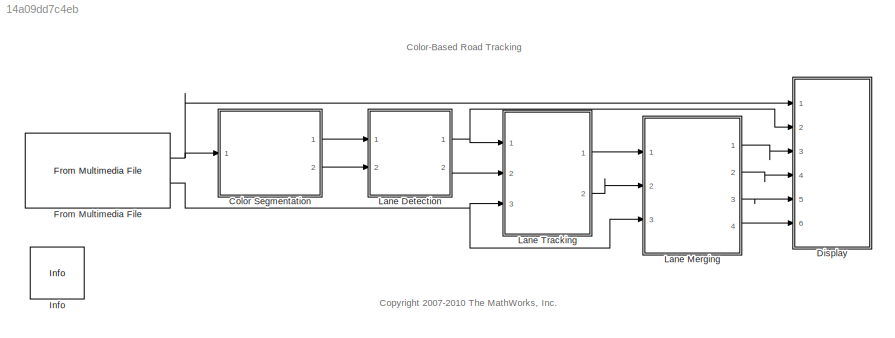
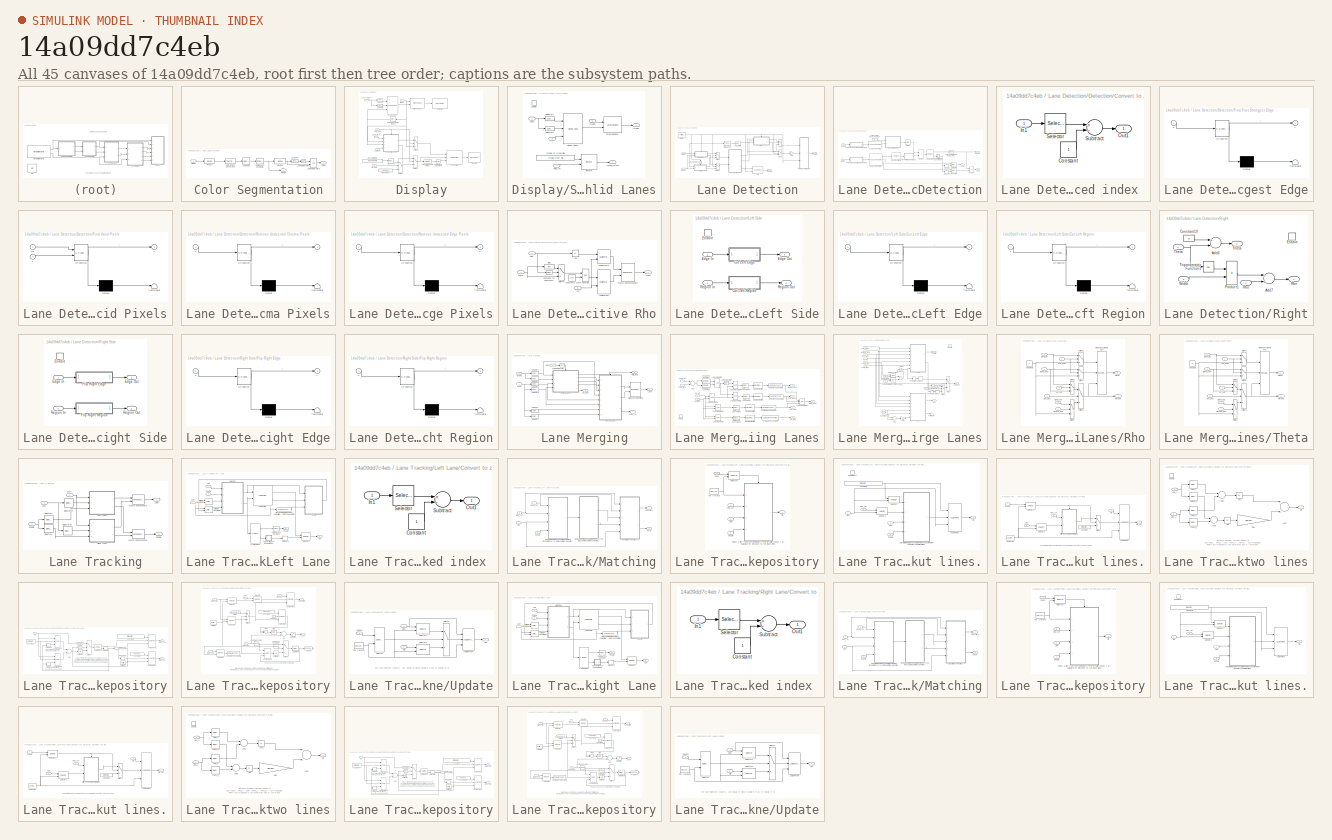
[diagram: thumbnail index - all 45 canvases of the model, root first then tree order]
MODEL slx_14a09dd7c4eb
KIND model
CONFIG AbsTol = auto
CONFIG FixedStep = auto
CONFIG MaxStep = auto
CONFIG MinStep = auto
CONFIG RelTol = 1e-3
CONFIG SampleTimeConstraint = Unconstrained
CONFIG Solver = FixedStepDiscrete
CONFIG SolverMode = Auto
CONFIG SolverName = FixedStepDiscrete
CONFIG StartTime = 0.0
CONFIG StopTime = inf
BLOCK [SubSystem] Color Segmentation
  Ports = [1, 2]
  RequestExecContextInheritance = off
  Variant = off
BLOCK [Selector] Color Segmentation/Channel 2
  IndexOptions = Select all,Select all,Index vector (dialog)
  Indices = [1 3],1,[2]
  InputPortWidth = 3
  NumberOfDimensions = 3
  OutputSizes = 1,1,1
  Ports = [1, 1]
BLOCK [Reference] Color Segmentation/Closing1  REF=visionmorphops/Closing
  Ports = [1, 1]
  SourceBlock = visionmorphops/Closing
  SourceType = Closing
BLOCK [Reference] Color Segmentation/Color Space Conversion  REF=visionconversions/Color Space
 Conversion
  Ports = [1, 1]
  SourceBlock = visionconversions/Color Space\n Conversion
  SourceType = Color Space Conversion
BLOCK [Reference] Color Segmentation/Compare To Constant5  REF=simulink/Logic and Bit
Operations/Compare
To Constant
  Ports = [1, 1]
  SourceBlock = simulink/Logic and Bit\nOperations/Compare\nTo Constant
  SourceType = Compare To Constant
BLOCK [Outport] Color Segmentation/Edge
  IconDisplay = Port number
BLOCK [Reference] Color Segmentation/Erosion1  REF=visionmorphops/Erosion
  Ports = [1, 1]
  SourceBlock = visionmorphops/Erosion
  SourceType = Erosion
BLOCK [Inport] Color Segmentation/Image
  IconDisplay = Port number
BLOCK [Logic] Color Segmentation/Logical Operator6
  AllPortsSameDT = off
  IconShape = distinctive
  OutDataTypeStr = boolean
  Ports = [2, 1]
BLOCK [Logic] Color Segmentation/Logical Operator7
  AllPortsSameDT = off
  IconShape = distinctive
  Operator = NOT
  OutDataTypeStr = boolean
  Ports = [1, 1]
BLOCK [Outport] Color Segmentation/Region
  IconDisplay = Port number
  Port = 2
BLOCK [Reference] Color Segmentation/Resize1  REF=visiongeotforms/Resize
  AttributesFormatString = Downsample the\ninput image to\nreduce computation.
  Ports = [1, 1]
  SourceBlock = visiongeotforms/Resize
  SourceType = Resize
BLOCK [SubSystem] Display
  Ports = [6]
  RequestExecContextInheritance = off
  Variant = off
BLOCK [Inport] Display/Angle_rot
  IconDisplay = Port number
  Port = 6
BLOCK [Constant] Display/Blank Image
  OutDataTypeStr = Inherit: Inherit via back propagation
  Value = zeros(86, 87, 3)
BLOCK [Reference] Display/Compare To Constant4  REF=simulink/Logic and Bit
Operations/Compare
To Constant
  Ports = [1, 1]
  SourceBlock = simulink/Logic and Bit\nOperations/Compare\nTo Constant
  SourceType = Compare To Constant
BLOCK [Reference] Display/Compositing  REF=visiontextngfix/Compositing
  Ports = [3, 1]
  SourceBlock = visiontextngfix/Compositing
  SourceType = Compositing
BLOCK [Reference] Display/Detection  REF=visionsinks/Video Viewer
  Ports = [1]
  SourceBlock = visionsinks/Video Viewer
  SourceType = Video Viewer
  UserDataPersistent = on
BLOCK [Reference] Display/Draw Shapes  REF=visiontextngfix/Draw Shapes
  Ports = [2, 1]
  SourceBlock = visiontextngfix/Draw Shapes
  SourceType = Draw Shapes
BLOCK [Reference] Display/Hough Lines  REF=visiontransforms/Hough Lines
  Ports = [3, 1]
  SourceBlock = visiontransforms/Hough Lines
  SourceType = Hough Lines
BLOCK [Inport] Display/Image
  IconDisplay = Port number
BLOCK [Reference] Display/Image Pad  REF=visionutilities/Image Pad
  Ports = [1, 1]
  SourceBlock = visionutilities/Image Pad
  SourceType = Image Pad
BLOCK [Reference] Display/Image of Error Sign  REF=visionsources/Image From File
  Ports = [0, 1]
  SourceBlock = visionsources/Image From File
  SourceType = Image From File
  Tag = vipblks_nd
BLOCK [Inport] Display/Lane_detect
  IconDisplay = Port number
  Port = 2
BLOCK [Inport] Display/Lane_track
  IconDisplay = Port number
  Port = 3
BLOCK [Inport] Display/No_lane
  IconDisplay = Port number
  Port = 5
BLOCK [Selector] Display/Selecto One Color Plane
  IndexMode = Zero-based
  IndexOptions = Select all,Select all,Index vector (dialog)
  Indices = [1 3],1,0
  InputPortWidth = 3
  NumberOfDimensions = 3
  OutputSizes = 1,1,1
  Ports = [1, 1]
BLOCK [Selector] Display/Selecto One Color Plane1
  IndexMode = Zero-based
  IndexOptions = Select all,Select all,Index vector (dialog)
  Indices = [1 3],1,0
  InputPortWidth = 3
  NumberOfDimensions = 3
  OutputSizes = 1,1,1
  Ports = [1, 1]
BLOCK [Selector] Display/Selector7
  IndexMode = Zero-based
  IndexOptions = Index vector (dialog),Select all
  Indices = 1,0
  InputPortWidth = 2
  NumberOfDimensions = 2
  OutputSizes = 1,1
  Ports = [1, 1]
BLOCK [Selector] Display/Selector8
  IndexMode = Zero-based
  IndexOptions = Index vector (dialog),Select all
  Indices = 0,0
  InputPortWidth = 2
  NumberOfDimensions = 2
  OutputSizes = 1,1
  Ports = [1, 1]
BLOCK [SubSystem] Display/Show Valid Lanes
  Ports = [4, 2, 1]
  RequestExecContextInheritance = off
  Variant = off
BLOCK [Inport] Display/Show Valid Lanes/Angle_rot
  IconDisplay = Port number
  Port = 4
BLOCK [Reference] Display/Show Valid Lanes/Draw Shapes2  REF=visiontextngfix/Draw Shapes
  Ports = [2, 1]
  SourceBlock = visiontextngfix/Draw Shapes
  SourceType = Draw Shapes
BLOCK [EnablePort] Display/Show Valid Lanes/Enable
  Ports = []
  PropagateVarSize = During execution
  StatesWhenEnabling = reset
BLOCK [Reference] Display/Show Valid Lanes/Hough Lines2  REF=visiontransforms/Hough Lines
  Ports = [3, 1]
  SourceBlock = visiontransforms/Hough Lines
  SourceType = Hough Lines
BLOCK [Inport] Display/Show Valid Lanes/I
  IconDisplay = Port number
  Port = 3
BLOCK [Inport] Display/Show Valid Lanes/Image
  IconDisplay = Port number
  Port = 2
BLOCK [Outport] Display/Show Valid Lanes/Image 
  IconDisplay = Port number
BLOCK [Reference] Display/Show Valid Lanes/Image of Arrow Sign  REF=visionsources/Image From File
  Ports = [0, 1]
  SourceBlock = visionsources/Image From File
  SourceType = Image From File
  Tag = vipblks_nd
BLOCK [Outport] Display/Show Valid Lanes/Image_arrow
  IconDisplay = Port number
  Port = 2
BLOCK [Inport] Display/Show Valid Lanes/Lane
  IconDisplay = Port number
BLOCK [Reference] Display/Show Valid Lanes/Rotate  REF=visiongeotforms/Rotate
  Ports = [2, 1]
  SourceBlock = visiongeotforms/Rotate
  SourceType = Rotate
BLOCK [Selector] Display/Show Valid Lanes/Selector1
  IndexMode = Zero-based
  IndexOptions = Index vector (dialog),Select all
  Indices = 1,0
  InputPortWidth = 2
  NumberOfDimensions = 2
  OutputSizes = 1,1
  Ports = [1, 1]
BLOCK [Selector] Display/Show Valid Lanes/Selector2
  IndexMode = Zero-based
  IndexOptions = Index vector (dialog),Select all
  Indices = 0,0
  InputPortWidth = 2
  NumberOfDimensions = 2
  OutputSizes = 1,1
  Ports = [1, 1]
BLOCK [Switch] Display/Switch1
  Criteria = u2 ~= 0
  InputSameDT = off
  SaturateOnIntegerOverflow = off
BLOCK [Switch] Display/Switch2
  Criteria = u2 ~= 0
  InputSameDT = off
  SaturateOnIntegerOverflow = off
BLOCK [Switch] Display/Switch3
  Criteria = u2 ~= 0
  InputSameDT = off
  SaturateOnIntegerOverflow = off
BLOCK [Reference] Display/Tracking  REF=visionsinks/Video Viewer
  Ports = [1]
  SourceBlock = visionsinks/Video Viewer
  SourceType = Video Viewer
  UserDataPersistent = on
BLOCK [Inport] Display/Valid_lane
  IconDisplay = Port number
  Port = 4
BLOCK [Reference] From Multimedia File  REF=dspvision/From Multimedia File
  Ports = [0, 2]
  SourceBlock = dspvision/From Multimedia File
  SourceType = From Multimedia File
BLOCK [Reference] Info  REF=vipmisc/Info
  Ports = []
  SourceBlock = vipmisc/Info
  SourceType = Info
BLOCK [SubSystem] Lane Detection
  Ports = [2, 2]
  RequestExecContextInheritance = off
  Variant = off
BLOCK [SubSystem] Lane Detection/Detection
  Ports = [2, 3]
  RequestExecContextInheritance = off
  Variant = off
BLOCK [Reference] Lane Detection/Detection/2-D Maximum  REF=visionstatistics/2-D Maximum
  Ports = [1, 2]
  SourceBlock = visionstatistics/2-D Maximum
  SourceType = 2-D Maximum
  UserDataPersistent = on
BLOCK [Inport] Lane Detection/Detection/Chroma
  IconDisplay = Port number
  Port = 2
BLOCK [SubSystem] Lane Detection/Detection/Convert to zero based index 
  Ports = [1, 1]
  RequestExecContextInheritance = off
  Variant = off
BLOCK [Constant] Lane Detection/Detection/Convert to zero based index /Constant
BLOCK [Inport] Lane Detection/Detection/Convert to zero based index /In1
  IconDisplay = Port number
BLOCK [Outport] Lane Detection/Detection/Convert to zero based index /Out1
  IconDisplay = Port number
BLOCK [Selector] Lane Detection/Detection/Convert to zero based index /Selector
  IndexOptions = Select all,Index vector (dialog)
  Indices = [1 3],[2 1]
  InputPortWidth = 3
  NumberOfDimensions = 2
  OutputSizes = 1,1
  Ports = [1, 1]
BLOCK [Sum] Lane Detection/Detection/Convert to zero based index /Subtract
  InputSameDT = off
  Inputs = +-
  OutDataTypeStr = Inherit: Inherit via internal rule
  Ports = [2, 1]
  SaturateOnIntegerOverflow = off
BLOCK [Reference] Lane Detection/Detection/Dilation  REF=visionmorphops/Dilation
  Ports = [1, 1]
  SourceBlock = visionmorphops/Dilation
  SourceType = Dilation
BLOCK [Inport] Lane Detection/Detection/Edge
  IconDisplay = Port number
BLOCK [Outport] Lane Detection/Detection/Enable
  IconDisplay = Port number
  Port = 3
BLOCK [SubSystem] Lane Detection/Detection/Find First Strongest Edge
  ErrorFcn = Stateflow.Translate.translate
  PermitHierarchicalResolution = ExplicitOnly
  Ports = [1, 1]
  RequestExecContextInheritance = off
  SFBlockType = MATLAB Function
  TreatAsAtomicUnit = on
  Variant = off
BLOCK [Demux] Lane Detection/Detection/Find First Strongest Edge/ Demux 
  Outputs = 1
  Ports = [1, 1]
BLOCK [S-Function] Lane Detection/Detection/Find First Strongest Edge/ SFunction 
  EnableBusSupport = off
  FunctionName = sf_sfun
  PortCounts = [1 2]
  Ports = [1, 2]
  SFunctionDeploymentMode = off
  Tag = Stateflow S-Function vipunmarkedroad 4
BLOCK [Terminator] Lane Detection/Detection/Find First Strongest Edge/ Terminator 
BLOCK [Inport] Lane Detection/Detection/Find First Strongest Edge/u
  IconDisplay = Port number
BLOCK [Outport] Lane Detection/Detection/Find First Strongest Edge/y
  IconDisplay = Port number
BLOCK [SubSystem] Lane Detection/Detection/Find Valid Pixels
  AttributesFormatString = Find valid pixels in each of the angles.
  ErrorFcn = Stateflow.Translate.translate
  PermitHierarchicalResolution = ExplicitOnly
  Ports = [2, 1]
  RequestExecContextInheritance = off
  SFBlockType = MATLAB Function
  TreatAsAtomicUnit = on
  Variant = off
BLOCK [Demux] Lane Detection/Detection/Find Valid Pixels/ Demux 
  Outputs = 1
  Ports = [1, 1]
BLOCK [S-Function] Lane Detection/Detection/Find Valid Pixels/ SFunction 
  EnableBusSupport = off
  FunctionName = sf_sfun
  PortCounts = [2 2]
  Ports = [2, 2]
  SFunctionDeploymentMode = off
  Tag = Stateflow S-Function vipunmarkedroad 2
BLOCK [Terminator] Lane Detection/Detection/Find Valid Pixels/ Terminator 
BLOCK [Inport] Lane Detection/Detection/Find Valid Pixels/thr
  IconDisplay = Port number
BLOCK [Inport] Lane Detection/Detection/Find Valid Pixels/u
  IconDisplay = Port number
  Port = 2
BLOCK [Outport] Lane Detection/Detection/Find Valid Pixels/y
  IconDisplay = Port number
BLOCK [Reference] Lane Detection/Detection/Hough Transform1  REF=visiontransforms/Hough Transform
  Ports = [1, 1]
  SourceBlock = visiontransforms/Hough Transform
  SourceType = Hough Transform
BLOCK [Reference] Lane Detection/Detection/Hough Transform3  REF=visiontransforms/Hough Transform
  Ports = [1, 3]
  SourceBlock = visiontransforms/Hough Transform
  SourceType = Hough Transform
BLOCK [Product] Lane Detection/Detection/Product
  InputSameDT = off
  OutDataTypeStr = Inherit: Inherit via internal rule
  Ports = [2, 1]
  SaturateOnIntegerOverflow = off
BLOCK [Product] Lane Detection/Detection/Product1
  InputSameDT = off
  OutDataTypeStr = Inherit: Inherit via internal rule
  Ports = [2, 1]
  SaturateOnIntegerOverflow = off
BLOCK [SubSystem] Lane Detection/Detection/Remove Undesired Chroma Pixels
  ErrorFcn = Stateflow.Translate.translate
  PermitHierarchicalResolution = ExplicitOnly
  Ports = [1, 1]
  RequestExecContextInheritance = off
  SFBlockType = MATLAB Function
  TreatAsAtomicUnit = on
  Variant = off
BLOCK [Demux] Lane Detection/Detection/Remove Undesired Chroma Pixels/ Demux 
  Outputs = 1
  Ports = [1, 1]
BLOCK [S-Function] Lane Detection/Detection/Remove Undesired Chroma Pixels/ SFunction 
  EnableBusSupport = off
  FunctionName = sf_sfun
  PortCounts = [1 2]
  Ports = [1, 2]
  SFunctionDeploymentMode = off
  Tag = Stateflow S-Function vipunmarkedroad 1
BLOCK [Terminator] Lane Detection/Detection/Remove Undesired Chroma Pixels/ Terminator 
BLOCK [Inport] Lane Detection/Detection/Remove Undesired Chroma Pixels/u
  IconDisplay = Port number
BLOCK [Outport] Lane Detection/Detection/Remove Undesired Chroma Pixels/y
  IconDisplay = Port number
BLOCK [SubSystem] Lane Detection/Detection/Remove Undesired Edge Pixels
  ErrorFcn = Stateflow.Translate.translate
  PermitHierarchicalResolution = ExplicitOnly
  Ports = [1, 1]
  RequestExecContextInheritance = off
  SFBlockType = MATLAB Function
  TreatAsAtomicUnit = on
  Variant = off
BLOCK [Demux] Lane Detection/Detection/Remove Undesired Edge Pixels/ Demux 
  Outputs = 1
  Ports = [1, 1]
BLOCK [S-Function] Lane Detection/Detection/Remove Undesired Edge Pixels/ SFunction 
  EnableBusSupport = off
  FunctionName = sf_sfun
  PortCounts = [1 2]
  Ports = [1, 2]
  SFunctionDeploymentMode = off
  Tag = Stateflow S-Function vipunmarkedroad 7
BLOCK [Terminator] Lane Detection/Detection/Remove Undesired Edge Pixels/ Terminator 
BLOCK [Inport] Lane Detection/Detection/Remove Undesired Edge Pixels/u
  IconDisplay = Port number
BLOCK [Outport] Lane Detection/Detection/Remove Undesired Edge Pixels/y
  IconDisplay = Port number
BLOCK [Outport] Lane Detection/Detection/Rho
  IconDisplay = Port number
  Port = 2
BLOCK [Selector] Lane Detection/Detection/Selector1
  IndexMode = Zero-based
  IndexOptions = Index vector (port)
  Indices = [1 3]
  OutputSizes = 1
  Ports = [2, 1]
BLOCK [Selector] Lane Detection/Detection/Selector2
  IndexMode = Zero-based
  IndexOptions = Index vector (port)
  Indices = [1 3]
  OutputSizes = 1
  Ports = [2, 1]
BLOCK [Selector] Lane Detection/Detection/Selector3
  IndexMode = Zero-based
  IndexOptions = Index vector (dialog)
  Indices = 1
  InputPortWidth = 2
  OutputSizes = 1
  Ports = [1, 1]
BLOCK [Selector] Lane Detection/Detection/Selector4
  IndexMode = Zero-based
  IndexOptions = Index vector (dialog)
  Indices = 0
  InputPortWidth = 2
  OutputSizes = 1
  Ports = [1, 1]
BLOCK [Reference] Lane Detection/Detection/Smooth Vertically  REF=visionfilter/2-D FIR Filter
  Ports = [1, 1]
  SourceBlock = visionfilter/2-D FIR Filter
  SourceType = 2-D FIR Filter
BLOCK [Outport] Lane Detection/Detection/Theta
  IconDisplay = Port number
BLOCK [Constant] Lane Detection/Detection/Threshold for Chroma Pixel Number
  Value = 50
BLOCK [Reference] Lane Detection/Detection/Threshold for Edge Pixel Number  REF=simulink/Logic and Bit
Operations/Compare
To Constant
  Ports = [1, 1]
  SourceBlock = simulink/Logic and Bit\nOperations/Compare\nTo Constant
  SourceType = Compare To Constant
BLOCK [Inport] Lane Detection/Edge
  IconDisplay = Port number
BLOCK [Outport] Lane Detection/Enable
  IconDisplay = Port number
  Port = 2
BLOCK [SubSystem] Lane Detection/Enforce positive Rho
  Ports = [3, 1]
  RequestExecContextInheritance = off
  Variant = off
BLOCK [Abs] Lane Detection/Enforce positive Rho/Abs
  SaturateOnIntegerOverflow = off
BLOCK [Assignment] Lane Detection/Enforce positive Rho/Assignment
  IndexMode = Zero-based
  IndexOptions = Assign all,Index vector (port)
  Indices = 1,1
  NumberOfDimensions = 2
  OutputInitialize = Specify size for each dimension in table
  OutputSizes = 1,2
  Ports = [2, 1]
BLOCK [Assignment] Lane Detection/Enforce positive Rho/Assignment2
  IndexMode = Zero-based
  IndexOptions = Assign all,Index vector (port)
  Indices = 1,1
  NumberOfDimensions = 2
  OutputInitialize = Specify size for each dimension in table
  OutputSizes = 1,2
  Ports = [2, 1]
BLOCK [Bias] Lane Detection/Enforce positive Rho/Bias
  Bias = pi
  SaturateOnIntegerOverflow = off
BLOCK [Reference] Lane Detection/Enforce positive Rho/Compare To Constant3  REF=simulink/Logic and Bit
Operations/Compare
To Constant
  Ports = [1, 1]
  SourceBlock = simulink/Logic and Bit\nOperations/Compare\nTo Constant
  SourceType = Compare To Constant
BLOCK [Constant] Lane Detection/Enforce positive Rho/Constant3
  OutDataTypeStr = Inherit: Inherit via back propagation
  Value = 2*pi
BLOCK [Inport] Lane Detection/Enforce positive Rho/Idx
  IconDisplay = Port number
  Port = 3
BLOCK [Outport] Lane Detection/Enforce positive Rho/Lanes
  IconDisplay = Port number
BLOCK [Math] Lane Detection/Enforce positive Rho/Math Function
  Operator = mod
  Ports = [2, 1]
BLOCK [Concatenate] Lane Detection/Enforce positive Rho/Matrix Concatenation3
  Mode = Multidimensional array
  Ports = [2, 1]
BLOCK [Inport] Lane Detection/Enforce positive Rho/Rho
  IconDisplay = Port number
  Port = 2
BLOCK [Switch] Lane Detection/Enforce positive Rho/Switch4
  Criteria = u2 ~= 0
  InputSameDT = off
  SaturateOnIntegerOverflow = off
BLOCK [Inport] Lane Detection/Enforce positive Rho/Theta
  IconDisplay = Port number
BLOCK [ForIterator] Lane Detection/For Iterator
  IndexMode = Zero-based
  IterationLimit = 2
  IterationVariableDataType = int8
  Ports = [0, 1]
BLOCK [Gain] Lane Detection/Gain
  AttributesFormatString = Upsample Rho by 2\nso the lines are scaled back\nto the original resolution\nof the input image.
  Gain = 2
  OutDataTypeStr = Inherit: Inherit via internal rule
  ParamDataTypeStr = Inherit: Inherit via internal rule
  SaturateOnIntegerOverflow = off
BLOCK [Outport] Lane Detection/Lanes
  IconDisplay = Port number
BLOCK [Assignment] Lane Detection/Left
  IndexMode = Zero-based
  IndexOptions = Assign all,Index vector (port)
  Indices = 1,1
  NumberOfDimensions = 2
  OutputInitialize = Specify size for each dimension in table
  OutputSizes = 1,2
  Ports = [2, 1]
BLOCK [SubSystem] Lane Detection/Left Side
  Ports = [2, 2, 1]
  RequestExecContextInheritance = off
  TreatAsAtomicUnit = on
  Variant = off
BLOCK [SubSystem] Lane Detection/Left Side/Cut Left Edge
  AttributesFormatString = Cut the left part of the image.
  ErrorFcn = Stateflow.Translate.translate
  PermitHierarchicalResolution = ExplicitOnly
  Ports = [1, 1]
  RequestExecContextInheritance = off
  SFBlockType = MATLAB Function
  TreatAsAtomicUnit = on
  Variant = off
BLOCK [Demux] Lane Detection/Left Side/Cut Left Edge/ Demux 
  Outputs = 1
  Ports = [1, 1]
BLOCK [S-Function] Lane Detection/Left Side/Cut Left Edge/ SFunction 
  EnableBusSupport = off
  FunctionName = sf_sfun
  PortCounts = [1 2]
  Ports = [1, 2]
  SFunctionDeploymentMode = off
  Tag = Stateflow S-Function vipunmarkedroad 9
BLOCK [Terminator] Lane Detection/Left Side/Cut Left Edge/ Terminator 
BLOCK [Inport] Lane Detection/Left Side/Cut Left Edge/u
  IconDisplay = Port number
BLOCK [Outport] Lane Detection/Left Side/Cut Left Edge/y
  IconDisplay = Port number
BLOCK [SubSystem] Lane Detection/Left Side/Cut Left Region
  AttributesFormatString = Cut the left part of the image.
  ErrorFcn = Stateflow.Translate.translate
  PermitHierarchicalResolution = ExplicitOnly
  Ports = [1, 1]
  RequestExecContextInheritance = off
  SFBlockType = MATLAB Function
  TreatAsAtomicUnit = on
  Variant = off
BLOCK [Demux] Lane Detection/Left Side/Cut Left Region/ Demux 
  Outputs = 1
  Ports = [1, 1]
BLOCK [S-Function] Lane Detection/Left Side/Cut Left Region/ SFunction 
  EnableBusSupport = off
  FunctionName = sf_sfun
  PortCounts = [1 2]
  Ports = [1, 2]
  SFunctionDeploymentMode = off
  Tag = Stateflow S-Function vipunmarkedroad 5
BLOCK [Terminator] Lane Detection/Left Side/Cut Left Region/ Terminator 
BLOCK [Inport] Lane Detection/Left Side/Cut Left Region/u
  IconDisplay = Port number
BLOCK [Outport] Lane Detection/Left Side/Cut Left Region/y
  IconDisplay = Port number
BLOCK [Inport] Lane Detection/Left Side/Edge In
  IconDisplay = Port number
BLOCK [Outport] Lane Detection/Left Side/Edge Out
  IconDisplay = Port number
BLOCK [EnablePort] Lane Detection/Left Side/Enable
  Ports = []
  PropagateVarSize = During execution
BLOCK [Inport] Lane Detection/Left Side/Region In
  IconDisplay = Port number
  Port = 2
BLOCK [Outport] Lane Detection/Left Side/Region Out 
  IconDisplay = Port number
  Port = 2
BLOCK [Logic] Lane Detection/Logical Operator
  AllPortsSameDT = off
  IconShape = distinctive
  Operator = NOT
  OutDataTypeStr = boolean
  Ports = [1, 1]
BLOCK [Probe] Lane Detection/Probe Signal Dimension
  Ports = [1, 1]
  ProbeComplexSignal = off
  ProbeDimensionsDataType = single
  ProbeSampleTime = off
  ProbeSignalDimensions = on
  ProbeWidth = off
BLOCK [Inport] Lane Detection/Region
  IconDisplay = Port number
  Port = 2
BLOCK [Switch] Lane Detection/Rho
  Criteria = u2 ~= 0
  InputSameDT = off
  SaturateOnIntegerOverflow = off
BLOCK [SubSystem] Lane Detection/Right
  Ports = [3, 2, 1]
  RequestExecContextInheritance = off
  TreatAsAtomicUnit = on
  Variant = off
BLOCK [SubSystem] Lane Detection/Right Side
  Ports = [2, 2, 1]
  RequestExecContextInheritance = off
  TreatAsAtomicUnit = on
  Variant = off
BLOCK [Inport] Lane Detection/Right Side/Edge In
  IconDisplay = Port number
BLOCK [Outport] Lane Detection/Right Side/Edge Out
  IconDisplay = Port number
BLOCK [EnablePort] Lane Detection/Right Side/Enable
  Ports = []
  PropagateVarSize = During execution
BLOCK [SubSystem] Lane Detection/Right Side/Flip Right Edge
  AttributesFormatString = Cut and flip the right\npart of the image
  ErrorFcn = Stateflow.Translate.translate
  PermitHierarchicalResolution = ExplicitOnly
  Ports = [1, 1]
  RequestExecContextInheritance = off
  SFBlockType = MATLAB Function
  TreatAsAtomicUnit = on
  Variant = off
BLOCK [Demux] Lane Detection/Right Side/Flip Right Edge/ Demux 
  Outputs = 1
  Ports = [1, 1]
BLOCK [S-Function] Lane Detection/Right Side/Flip Right Edge/ SFunction 
  EnableBusSupport = off
  FunctionName = sf_sfun
  PortCounts = [1 2]
  Ports = [1, 2]
  SFunctionDeploymentMode = off
  Tag = Stateflow S-Function vipunmarkedroad 12
BLOCK [Terminator] Lane Detection/Right Side/Flip Right Edge/ Terminator 
BLOCK [Inport] Lane Detection/Right Side/Flip Right Edge/u
  IconDisplay = Port number
BLOCK [Outport] Lane Detection/Right Side/Flip Right Edge/y
  IconDisplay = Port number
BLOCK [SubSystem] Lane Detection/Right Side/Flip Right Region
  AttributesFormatString = Cut and flip the right\npart of the image
  ErrorFcn = Stateflow.Translate.translate
  PermitHierarchicalResolution = ExplicitOnly
  Ports = [1, 1]
  RequestExecContextInheritance = off
  SFBlockType = MATLAB Function
  TreatAsAtomicUnit = on
  Variant = off
BLOCK [Demux] Lane Detection/Right Side/Flip Right Region/ Demux 
  Outputs = 1
  Ports = [1, 1]
BLOCK [S-Function] Lane Detection/Right Side/Flip Right Region/ SFunction 
  EnableBusSupport = off
  FunctionName = sf_sfun
  PortCounts = [1 2]
  Ports = [1, 2]
  SFunctionDeploymentMode = off
  Tag = Stateflow S-Function vipunmarkedroad 3
BLOCK [Terminator] Lane Detection/Right Side/Flip Right Region/ Terminator 
BLOCK [Inport] Lane Detection/Right Side/Flip Right Region/u
  IconDisplay = Port number
BLOCK [Outport] Lane Detection/Right Side/Flip Right Region/y
  IconDisplay = Port number
BLOCK [Inport] Lane Detection/Right Side/Region In
  IconDisplay = Port number
  Port = 2
BLOCK [Outport] Lane Detection/Right Side/Region Out
  IconDisplay = Port number
  Port = 2
BLOCK [Sum] Lane Detection/Right/Add6
  InputSameDT = off
  Inputs = +-
  OutDataTypeStr = Inherit: Inherit via internal rule
  Ports = [2, 1]
  SaturateOnIntegerOverflow = off
BLOCK [Sum] Lane Detection/Right/Add7
  InputSameDT = off
  Inputs = -+
  OutDataTypeStr = Inherit: Inherit via internal rule
  Ports = [2, 1]
  SaturateOnIntegerOverflow = off
BLOCK [Constant] Lane Detection/Right/Constant10
  OutDataTypeStr = single
  Value = pi
BLOCK [EnablePort] Lane Detection/Right/Enable
  Ports = []
  PropagateVarSize = During execution
BLOCK [Product] Lane Detection/Right/Product1
  InputSameDT = off
  OutDataTypeStr = Inherit: Inherit via internal rule
  Ports = [2, 1]
  SaturateOnIntegerOverflow = off
BLOCK [Inport] Lane Detection/Right/Rho
  IconDisplay = Port number
  Port = 2
BLOCK [Outport] Lane Detection/Right/Rho 
  IconDisplay = Port number
  Port = 2
BLOCK [Inport] Lane Detection/Right/Theta
  IconDisplay = Port number
BLOCK [Outport] Lane Detection/Right/Theta 
  IconDisplay = Port number
BLOCK [Trigonometry] Lane Detection/Right/Trigonometric Function1
  Operator = cos
  Ports = [1, 1]
BLOCK [Inport] Lane Detection/Right/Width
  IconDisplay = Port number
  Port = 3
BLOCK [Selector] Lane Detection/Select Width
  IndexMode = Zero-based
  IndexOptions = Index vector (dialog)
  Indices = 1
  InputPortWidth = 2
  OutputSizes = 1
  Ports = [1, 1]
BLOCK [Switch] Lane Detection/Switch
  Criteria = u2 ~= 0
  InputSameDT = off
  SaturateOnIntegerOverflow = off
BLOCK [Switch] Lane Detection/Switch1
  Criteria = u2 ~= 0
  InputSameDT = off
  SaturateOnIntegerOverflow = off
BLOCK [Switch] Lane Detection/Theta
  Criteria = u2 ~= 0
  InputSameDT = off
  SaturateOnIntegerOverflow = off
BLOCK [SubSystem] Lane Merging
  Ports = [3, 4]
  RequestExecContextInheritance = off
  Variant = off
BLOCK [Outport] Lane Merging/Angle_rot
  IconDisplay = Port number
  Port = 4
BLOCK [Inport] Lane Merging/EOF
  IconDisplay = Port number
  Port = 3
BLOCK [Inport] Lane Merging/Enable
  IconDisplay = Port number
  Port = 2
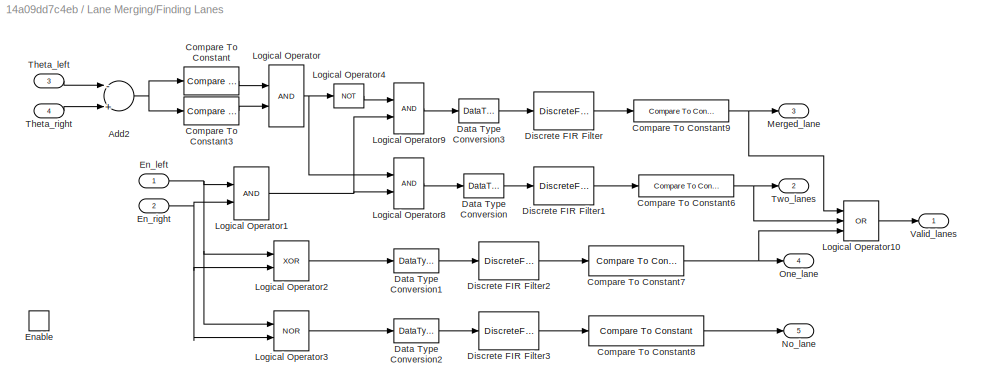
BLOCK [SubSystem] Lane Merging/Finding Lanes
  Ports = [4, 5, 1]
  RequestExecContextInheritance = off
  Variant = off
BLOCK [Sum] Lane Merging/Finding Lanes/Add2
  InputSameDT = off
  Inputs = -+
  OutDataTypeStr = Inherit: Inherit via internal rule
  Ports = [2, 1]
  SaturateOnIntegerOverflow = off
BLOCK [Reference] Lane Merging/Finding Lanes/Compare To Constant  REF=simulink/Logic and Bit
Operations/Compare
To Constant
  Ports = [1, 1]
  SourceBlock = simulink/Logic and Bit\nOperations/Compare\nTo Constant
  SourceType = Compare To Constant
BLOCK [Reference] Lane Merging/Finding Lanes/Compare To Constant3  REF=simulink/Logic and Bit
Operations/Compare
To Constant
  Ports = [1, 1]
  SourceBlock = simulink/Logic and Bit\nOperations/Compare\nTo Constant
  SourceType = Compare To Constant
BLOCK [Reference] Lane Merging/Finding Lanes/Compare To Constant6  REF=simulink/Logic and Bit
Operations/Compare
To Constant
  Ports = [1, 1]
  SourceBlock = simulink/Logic and Bit\nOperations/Compare\nTo Constant
  SourceType = Compare To Constant
BLOCK [Reference] Lane Merging/Finding Lanes/Compare To Constant7  REF=simulink/Logic and Bit
Operations/Compare
To Constant
  Ports = [1, 1]
  SourceBlock = simulink/Logic and Bit\nOperations/Compare\nTo Constant
  SourceType = Compare To Constant
BLOCK [Reference] Lane Merging/Finding Lanes/Compare To Constant8  REF=simulink/Logic and Bit
Operations/Compare
To Constant
  Ports = [1, 1]
  SourceBlock = simulink/Logic and Bit\nOperations/Compare\nTo Constant
  SourceType = Compare To Constant
BLOCK [Reference] Lane Merging/Finding Lanes/Compare To Constant9  REF=simulink/Logic and Bit
Operations/Compare
To Constant
  Ports = [1, 1]
  SourceBlock = simulink/Logic and Bit\nOperations/Compare\nTo Constant
  SourceType = Compare To Constant
BLOCK [DataTypeConversion] Lane Merging/Finding Lanes/Data Type Conversion
  OutDataTypeStr = single
  RndMeth = Floor
  SaturateOnIntegerOverflow = off
BLOCK [DataTypeConversion] Lane Merging/Finding Lanes/Data Type Conversion1
  OutDataTypeStr = single
  RndMeth = Floor
  SaturateOnIntegerOverflow = off
BLOCK [DataTypeConversion] Lane Merging/Finding Lanes/Data Type Conversion2
  OutDataTypeStr = single
  RndMeth = Floor
  SaturateOnIntegerOverflow = off
BLOCK [DataTypeConversion] Lane Merging/Finding Lanes/Data Type Conversion3
  OutDataTypeStr = single
  RndMeth = Floor
  SaturateOnIntegerOverflow = off
BLOCK [DiscreteFir] Lane Merging/Finding Lanes/Discrete FIR Filter
  Coefficients = ones(1, appearTime)
  InputPortMap = u0
  OutputPortMap = o0
  Ports = [1, 1]
BLOCK [DiscreteFir] Lane Merging/Finding Lanes/Discrete FIR Filter1
  Coefficients = ones(1, appearTime)
  InputPortMap = u0
  OutputPortMap = o0
  Ports = [1, 1]
BLOCK [DiscreteFir] Lane Merging/Finding Lanes/Discrete FIR Filter2
  Coefficients = ones(1, appearTime)
  InputPortMap = u0
  OutputPortMap = o0
  Ports = [1, 1]
BLOCK [DiscreteFir] Lane Merging/Finding Lanes/Discrete FIR Filter3
  Coefficients = ones(1, appearTime+1)
  InputPortMap = u0
  OutputPortMap = o0
  Ports = [1, 1]
BLOCK [Inport] Lane Merging/Finding Lanes/En_left
  IconDisplay = Port number
BLOCK [Inport] Lane Merging/Finding Lanes/En_right
  IconDisplay = Port number
  Port = 2
BLOCK [EnablePort] Lane Merging/Finding Lanes/Enable
  Ports = []
  PropagateVarSize = During execution
  StatesWhenEnabling = reset
BLOCK [Logic] Lane Merging/Finding Lanes/Logical Operator
  AllPortsSameDT = off
  OutDataTypeStr = boolean
  Ports = [2, 1]
BLOCK [Logic] Lane Merging/Finding Lanes/Logical Operator1
  AllPortsSameDT = off
  OutDataTypeStr = boolean
  Ports = [2, 1]
BLOCK [Logic] Lane Merging/Finding Lanes/Logical Operator10
  AllPortsSameDT = off
  Inputs = 3
  Operator = OR
  OutDataTypeStr = boolean
  Ports = [3, 1]
BLOCK [Logic] Lane Merging/Finding Lanes/Logical Operator2
  AllPortsSameDT = off
  Operator = XOR
  OutDataTypeStr = boolean
  Ports = [2, 1]
BLOCK [Logic] Lane Merging/Finding Lanes/Logical Operator3
  AllPortsSameDT = off
  Operator = NOR
  OutDataTypeStr = boolean
  Ports = [2, 1]
BLOCK [Logic] Lane Merging/Finding Lanes/Logical Operator4
  AllPortsSameDT = off
  Operator = NOT
  OutDataTypeStr = boolean
  Ports = [1, 1]
BLOCK [Logic] Lane Merging/Finding Lanes/Logical Operator8
  AllPortsSameDT = off
  OutDataTypeStr = boolean
  Ports = [2, 1]
BLOCK [Logic] Lane Merging/Finding Lanes/Logical Operator9
  AllPortsSameDT = off
  OutDataTypeStr = boolean
  Ports = [2, 1]
BLOCK [Outport] Lane Merging/Finding Lanes/Merged_lane
  IconDisplay = Port number
  Port = 3
BLOCK [Outport] Lane Merging/Finding Lanes/No_lane
  IconDisplay = Port number
  Port = 5
BLOCK [Outport] Lane Merging/Finding Lanes/One_lane
  IconDisplay = Port number
  Port = 4
BLOCK [Inport] Lane Merging/Finding Lanes/Theta_left
  IconDisplay = Port number
  Port = 3
BLOCK [Inport] Lane Merging/Finding Lanes/Theta_right
  IconDisplay = Port number
  Port = 4
BLOCK [Outport] Lane Merging/Finding Lanes/Two_lanes
  IconDisplay = Port number
  Port = 2
BLOCK [Outport] Lane Merging/Finding Lanes/Valid_lanes
  IconDisplay = Port number
BLOCK [Inport] Lane Merging/Lane
  IconDisplay = Port number
BLOCK [Outport] Lane Merging/Lane 
  IconDisplay = Port number
BLOCK [Logic] Lane Merging/Logical Operator
  AllPortsSameDT = off
  IconShape = distinctive
  Operator = NOT
  OutDataTypeStr = boolean
  Ports = [1, 1]
BLOCK [Concatenate] Lane Merging/Matrix Concatenation3
  Mode = Multidimensional array
  Ports = [2, 1]
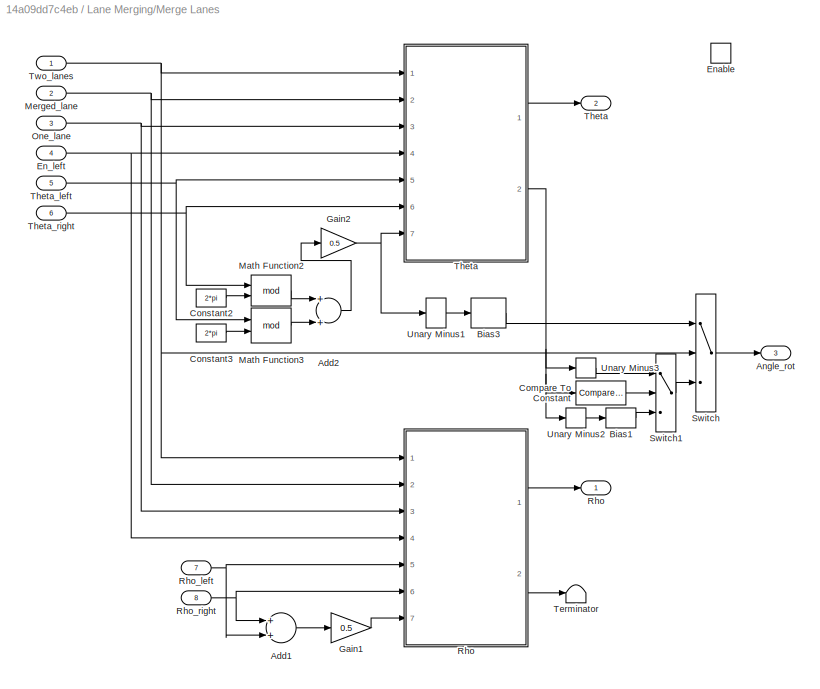
BLOCK [SubSystem] Lane Merging/Merge Lanes
  Ports = [8, 3, 1]
  RequestExecContextInheritance = off
  Variant = off
BLOCK [Sum] Lane Merging/Merge Lanes/Add1
  InputSameDT = off
  OutDataTypeStr = Inherit: Inherit via internal rule
  Ports = [2, 1]
  SaturateOnIntegerOverflow = off
BLOCK [Sum] Lane Merging/Merge Lanes/Add2
  InputSameDT = off
  OutDataTypeStr = Inherit: Inherit via internal rule
  Ports = [2, 1]
  SaturateOnIntegerOverflow = off
BLOCK [Outport] Lane Merging/Merge Lanes/Angle_rot
  IconDisplay = Port number
  Port = 3
BLOCK [Bias] Lane Merging/Merge Lanes/Bias1
  Bias = pi
  SaturateOnIntegerOverflow = off
BLOCK [Bias] Lane Merging/Merge Lanes/Bias3
  Bias = pi/2
  SaturateOnIntegerOverflow = off
BLOCK [Reference] Lane Merging/Merge Lanes/Compare To Constant  REF=simulink/Logic and Bit
Operations/Compare
To Constant
  Ports = [1, 1]
  SourceBlock = simulink/Logic and Bit\nOperations/Compare\nTo Constant
  SourceType = Compare To Constant
BLOCK [Constant] Lane Merging/Merge Lanes/Constant2
  OutDataTypeStr = Inherit: Inherit via back propagation
  Value = 2*pi
BLOCK [Constant] Lane Merging/Merge Lanes/Constant3
  OutDataTypeStr = Inherit: Inherit via back propagation
  Value = 2*pi
BLOCK [Inport] Lane Merging/Merge Lanes/En_left
  IconDisplay = Port number
  Port = 4
BLOCK [EnablePort] Lane Merging/Merge Lanes/Enable
  Ports = []
  PropagateVarSize = During execution
BLOCK [Gain] Lane Merging/Merge Lanes/Gain1
  Gain = 0.5
  OutDataTypeStr = Inherit: Inherit via internal rule
  ParamDataTypeStr = Inherit: Inherit via internal rule
  SaturateOnIntegerOverflow = off
BLOCK [Gain] Lane Merging/Merge Lanes/Gain2
  Gain = 0.5
  OutDataTypeStr = Inherit: Inherit via internal rule
  ParamDataTypeStr = Inherit: Inherit via internal rule
  SaturateOnIntegerOverflow = off
BLOCK [Math] Lane Merging/Merge Lanes/Math Function2
  Operator = mod
  Ports = [2, 1]
BLOCK [Math] Lane Merging/Merge Lanes/Math Function3
  Operator = mod
  Ports = [2, 1]
BLOCK [Inport] Lane Merging/Merge Lanes/Merged_lane
  IconDisplay = Port number
  Port = 2
BLOCK [Inport] Lane Merging/Merge Lanes/One_lane
  IconDisplay = Port number
  Port = 3
BLOCK [SubSystem] Lane Merging/Merge Lanes/Rho
  Ports = [7, 2]
  RequestExecContextInheritance = off
  Variant = off
BLOCK [Outport] Lane Merging/Merge Lanes/Rho 
  IconDisplay = Port number
BLOCK [Constant] Lane Merging/Merge Lanes/Rho/Constant2
  OutDataTypeStr = Inherit: Inherit via back propagation
  Value = 0
BLOCK [Inport] Lane Merging/Merge Lanes/Rho/En_Left
  IconDisplay = Port number
  Port = 4
BLOCK [Concatenate] Lane Merging/Merge Lanes/Rho/Matrix Concatenation3
  ConcatenateDimension = 2
  Mode = Multidimensional array
  NumInputs = 3
  Ports = [3, 1]
BLOCK [Outport] Lane Merging/Merge Lanes/Rho/Merged 
  IconDisplay = Port number
  Port = 2
BLOCK [Inport] Lane Merging/Merge Lanes/Rho/Merged_lane
  IconDisplay = Port number
  Port = 2
BLOCK [Inport] Lane Merging/Merge Lanes/Rho/One_lane
  IconDisplay = Port number
  Port = 3
BLOCK [Outport] Lane Merging/Merge Lanes/Rho/Signal
  IconDisplay = Port number
BLOCK [Inport] Lane Merging/Merge Lanes/Rho/Signal_avg
  IconDisplay = Port number
  Port = 7
BLOCK [Inport] Lane Merging/Merge Lanes/Rho/Signal_left
  IconDisplay = Port number
  Port = 5
BLOCK [Inport] Lane Merging/Merge Lanes/Rho/Signal_right
  IconDisplay = Port number
  Port = 6
BLOCK [Switch] Lane Merging/Merge Lanes/Rho/Switch3
  Criteria = u2 ~= 0
  InputSameDT = off
  SaturateOnIntegerOverflow = off
BLOCK [Switch] Lane Merging/Merge Lanes/Rho/Switch4
  Criteria = u2 ~= 0
  InputSameDT = off
  SaturateOnIntegerOverflow = off
BLOCK [Switch] Lane Merging/Merge Lanes/Rho/Switch5
  Criteria = u2 ~= 0
  InputSameDT = off
  SaturateOnIntegerOverflow = off
BLOCK [Switch] Lane Merging/Merge Lanes/Rho/Switch6
  Criteria = u2 ~= 0
  InputSameDT = off
  SaturateOnIntegerOverflow = off
BLOCK [Switch] Lane Merging/Merge Lanes/Rho/Switch7
  Criteria = u2 ~= 0
  InputSameDT = off
  SaturateOnIntegerOverflow = off
BLOCK [Inport] Lane Merging/Merge Lanes/Rho/Two_lanes
  IconDisplay = Port number
BLOCK [Inport] Lane Merging/Merge Lanes/Rho_left
  IconDisplay = Port number
  Port = 7
BLOCK [Inport] Lane Merging/Merge Lanes/Rho_right
  IconDisplay = Port number
  Port = 8
BLOCK [Switch] Lane Merging/Merge Lanes/Switch
  Criteria = u2 ~= 0
  InputSameDT = off
  SaturateOnIntegerOverflow = off
BLOCK [Switch] Lane Merging/Merge Lanes/Switch1
  Criteria = u2 ~= 0
  InputSameDT = off
  SaturateOnIntegerOverflow = off
BLOCK [Terminator] Lane Merging/Merge Lanes/Terminator
BLOCK [SubSystem] Lane Merging/Merge Lanes/Theta
  Ports = [7, 2]
  RequestExecContextInheritance = off
  Variant = off
BLOCK [Outport] Lane Merging/Merge Lanes/Theta 
  IconDisplay = Port number
  Port = 2
BLOCK [Constant] Lane Merging/Merge Lanes/Theta/Constant2
  OutDataTypeStr = Inherit: Inherit via back propagation
  Value = 0
BLOCK [Inport] Lane Merging/Merge Lanes/Theta/En_Left
  IconDisplay = Port number
  Port = 4
BLOCK [Concatenate] Lane Merging/Merge Lanes/Theta/Matrix Concatenation3
  ConcatenateDimension = 2
  Mode = Multidimensional array
  NumInputs = 3
  Ports = [3, 1]
BLOCK [Outport] Lane Merging/Merge Lanes/Theta/Merged 
  IconDisplay = Port number
  Port = 2
BLOCK [Inport] Lane Merging/Merge Lanes/Theta/Merged_lane
  IconDisplay = Port number
  Port = 2
BLOCK [Inport] Lane Merging/Merge Lanes/Theta/One_lane
  IconDisplay = Port number
  Port = 3
BLOCK [Outport] Lane Merging/Merge Lanes/Theta/Signal
  IconDisplay = Port number
BLOCK [Inport] Lane Merging/Merge Lanes/Theta/Signal_avg
  IconDisplay = Port number
  Port = 7
BLOCK [Inport] Lane Merging/Merge Lanes/Theta/Signal_left
  IconDisplay = Port number
  Port = 5
BLOCK [Inport] Lane Merging/Merge Lanes/Theta/Signal_right
  IconDisplay = Port number
  Port = 6
BLOCK [Switch] Lane Merging/Merge Lanes/Theta/Switch3
  Criteria = u2 ~= 0
  InputSameDT = off
  SaturateOnIntegerOverflow = off
BLOCK [Switch] Lane Merging/Merge Lanes/Theta/Switch4
  Criteria = u2 ~= 0
  InputSameDT = off
  SaturateOnIntegerOverflow = off
BLOCK [Switch] Lane Merging/Merge Lanes/Theta/Switch5
  Criteria = u2 ~= 0
  InputSameDT = off
  SaturateOnIntegerOverflow = off
BLOCK [Switch] Lane Merging/Merge Lanes/Theta/Switch6
  Criteria = u2 ~= 0
  InputSameDT = off
  SaturateOnIntegerOverflow = off
BLOCK [Switch] Lane Merging/Merge Lanes/Theta/Switch7
  Criteria = u2 ~= 0
  InputSameDT = off
  SaturateOnIntegerOverflow = off
BLOCK [Inport] Lane Merging/Merge Lanes/Theta/Two_lanes
  IconDisplay = Port number
BLOCK [Inport] Lane Merging/Merge Lanes/Theta_left
  IconDisplay = Port number
  Port = 5
BLOCK [Inport] Lane Merging/Merge Lanes/Theta_right
  IconDisplay = Port number
  Port = 6
BLOCK [Inport] Lane Merging/Merge Lanes/Two_lanes
  IconDisplay = Port number
BLOCK [UnaryMinus] Lane Merging/Merge Lanes/Unary Minus1
BLOCK [UnaryMinus] Lane Merging/Merge Lanes/Unary Minus2
BLOCK [UnaryMinus] Lane Merging/Merge Lanes/Unary Minus3
BLOCK [Outport] Lane Merging/No_lane
  IconDisplay = Port number
  Port = 3
BLOCK [Selector] Lane Merging/Selector1
  IndexMode = Zero-based
  IndexOptions = Index vector (dialog),Index vector (dialog)
  Indices = 0,0
  InputPortWidth = 2
  NumberOfDimensions = 2
  OutputSizes = 1,1
  Ports = [1, 1]
BLOCK [Selector] Lane Merging/Selector2
  IndexMode = Zero-based
  IndexOptions = Index vector (dialog),Index vector (dialog)
  Indices = 0,1
  InputPortWidth = 2
  NumberOfDimensions = 2
  OutputSizes = 1,1
  Ports = [1, 1]
BLOCK [Selector] Lane Merging/Selector3
  IndexMode = Zero-based
  IndexOptions = Index vector (dialog)
  Indices = 0
  InputPortWidth = 2
  OutputSizes = 1
  Ports = [1, 1]
BLOCK [Selector] Lane Merging/Selector4
  IndexMode = Zero-based
  IndexOptions = Index vector (dialog)
  Indices = 1
  InputPortWidth = 2
  OutputSizes = 1
  Ports = [1, 1]
BLOCK [Selector] Lane Merging/Selector5
  IndexMode = Zero-based
  IndexOptions = Index vector (dialog),Index vector (dialog)
  Indices = 1,0
  InputPortWidth = 2
  NumberOfDimensions = 2
  OutputSizes = 1,1
  Ports = [1, 1]
BLOCK [Selector] Lane Merging/Selector6
  IndexMode = Zero-based
  IndexOptions = Index vector (dialog),Index vector (dialog)
  Indices = 1,1
  InputPortWidth = 2
  NumberOfDimensions = 2
  OutputSizes = 1,1
  Ports = [1, 1]
BLOCK [Outport] Lane Merging/Valid_lane
  IconDisplay = Port number
  Port = 2
BLOCK [SubSystem] Lane Tracking
  Ports = [3, 2]
  RequestExecContextInheritance = off
  Variant = off
BLOCK [Inport] Lane Tracking/EOF
  IconDisplay = Port number
  Port = 3
BLOCK [Inport] Lane Tracking/Enable
  IconDisplay = Port number
  Port = 2
BLOCK [Outport] Lane Tracking/Enable 
  IconDisplay = Port number
  Port = 2
BLOCK [Inport] Lane Tracking/Lane
  IconDisplay = Port number
BLOCK [Outport] Lane Tracking/Lane 
  IconDisplay = Port number
BLOCK [SubSystem] Lane Tracking/Left Lane
  Ports = [3, 2]
  RequestExecContextInheritance = off
  Variant = off
BLOCK [Reference] Lane Tracking/Left Lane/2-D Maximum  REF=visionstatistics/2-D Maximum
  Ports = [1, 2]
  SourceBlock = visionstatistics/2-D Maximum
  SourceType = 2-D Maximum
  UserDataPersistent = on
BLOCK [Reference] Lane Tracking/Left Lane/Compare To Constant1  REF=simulink/Logic and Bit
Operations/Compare
To Constant
  Ports = [1, 1]
  SourceBlock = simulink/Logic and Bit\nOperations/Compare\nTo Constant
  SourceType = Compare To Constant
BLOCK [SubSystem] Lane Tracking/Left Lane/Convert to zero based index 
  Ports = [1, 1]
  RequestExecContextInheritance = off
  Variant = off
BLOCK [Constant] Lane Tracking/Left Lane/Convert to zero based index /Constant
BLOCK [Inport] Lane Tracking/Left Lane/Convert to zero based index /In1
  IconDisplay = Port number
BLOCK [Outport] Lane Tracking/Left Lane/Convert to zero based index /Out1
  IconDisplay = Port number
BLOCK [Selector] Lane Tracking/Left Lane/Convert to zero based index /Selector
  IndexOptions = Select all,Index vector (dialog)
  Indices = [1 3],[2 1]
  InputPortWidth = 3
  NumberOfDimensions = 2
  OutputSizes = 1,1
  Ports = [1, 1]
BLOCK [Sum] Lane Tracking/Left Lane/Convert to zero based index /Subtract
  InputSameDT = off
  Inputs = +-
  OutDataTypeStr = Inherit: Inherit via internal rule
  Ports = [2, 1]
  SaturateOnIntegerOverflow = off
BLOCK [Inport] Lane Tracking/Left Lane/EOF
  IconDisplay = Port number
BLOCK [Inport] Lane Tracking/Left Lane/Enable
  IconDisplay = Port number
  Port = 3
BLOCK [Outport] Lane Tracking/Left Lane/Enable 
  IconDisplay = Port number
  Port = 2
BLOCK [Reference] Lane Tracking/Left Lane/Kalman Filter  REF=dspadpt3/Kalman Filter
  Ports = [2, 2]
  SourceBlock = dspadpt3/Kalman Filter
  SourceType = Kalman Filter
BLOCK [Inport] Lane Tracking/Left Lane/Line
  IconDisplay = Port number
  Port = 2
BLOCK [Outport] Lane Tracking/Left Lane/Line 
  IconDisplay = Port number
BLOCK [SubSystem] Lane Tracking/Left Lane/Matching
  Ports = [4, 2]
  RequestExecContextInheritance = off
  Variant = off
BLOCK [SubSystem] Lane Tracking/Left Lane/Matching/Calculate the distances between the lines found in the current frame and those in the repository
  Ports = [4, 1]
  RequestExecContextInheritance = off
  TreatAsAtomicUnit = on
  Variant = off
BLOCK [Inport] Lane Tracking/Left Lane/Matching/Calculate the distances between the lines found in the current frame and those in the repository/Count
  IconDisplay = Port number
BLOCK [Outport] Lane Tracking/Left Lane/Matching/Calculate the distances between the lines found in the current frame and those in the repository/Dis
  IconDisplay = Port number
BLOCK [Inport] Lane Tracking/Left Lane/Matching/Calculate the distances between the lines found in the current frame and those in the repository/Enable
  IconDisplay = Port number
  Port = 4
BLOCK [ForIterator] Lane Tracking/Left Lane/Matching/Calculate the distances between the lines found in the current frame and those in the repository/For Iterator
  IterationLimit = maxLaneNum
  Ports = [0, 1]
  ResetStates = reset
BLOCK [Inport] Lane Tracking/Left Lane/Matching/Calculate the distances between the lines found in the current frame and those in the repository/Line
  IconDisplay = Port number
  Port = 3
BLOCK [Inport] Lane Tracking/Left Lane/Matching/Calculate the distances between the lines found in the current frame and those in the repository/Rep_ref
  IconDisplay = Port number
  Port = 2
BLOCK [SubSystem] Lane Tracking/Left Lane/Matching/Calculate the distances between the lines found in the current frame and those in the repository/Select a line from the repository; if it is valid (Count > 0), Calculate its distance to the input lines.
  Ports = [4, 1, 1]
  RequestExecContextInheritance = off
  Variant = off
BLOCK [Assignment] Lane Tracking/Left Lane/Matching/Calculate the distances between the lines found in the current frame and those in the repository/Select a line from the repository; if it is valid (Count > 0), Calculate its distance to the input lines./Assignment
  IndexOptions = Index vector (port),Assign all
  Indices = -1,-1
  NumberOfDimensions = 2
  OutputSizes = 1,1
  Ports = [3, 1]
BLOCK [SubSystem] Lane Tracking/Left Lane/Matching/Calculate the distances between the lines found in the current frame and those in the repository/Select a line from the repository; if it is valid (Count > 0), Calculate its distance to the input lines./Calculate the distances between the chosen line in the repository and all input lines.
  Ports = [4, 1]
  RequestExecContextInheritance = off
  TreatAsAtomicUnit = on
  Variant = off
BLOCK [Assignment] Lane Tracking/Left Lane/Matching/Calculate the distances between the lines found in the current frame and those in the repository/Select a line from the repository; if it is valid (Count > 0), Calculate its distance to the input lines./Calculate the distances between the chosen line in the repository and all input lines./Assignment
  IndexOptions = Index vector (port)
  Indices = 1
  OutputSizes = [1 1]
  Ports = [3, 1]
BLOCK [Constant] Lane Tracking/Left Lane/Matching/Calculate the distances between the lines found in the current frame and those in the repository/Select a line from the repository; if it is valid (Count > 0), Calculate its distance to the input lines./Calculate the distances between the chosen line in the repository and all input lines./Constant
  OutDataTypeStr = int32
  Value = intmax('int16')
  VectorParams1D = off
BLOCK [SubSystem] Lane Tracking/Left Lane/Matching/Calculate the distances between the lines found in the current frame and those in the repository/Select a line from the repository; if it is valid (Count > 0), Calculate its distance to the input lines./Calculate the distances between the chosen line in the repository and all input lines./Difference between two lines
  Ports = [2, 1, 1]
  RequestExecContextInheritance = off
  Variant = off
BLOCK [Abs] Lane Tracking/Left Lane/Matching/Calculate the distances between the lines found in the current frame and those in the repository/Select a line from the repository; if it is valid (Count > 0), Calculate its distance to the input lines./Calculate the distances between the chosen line in the repository and all input lines./Difference between two lines/Abs
  SaturateOnIntegerOverflow = off
BLOCK [Abs] Lane Tracking/Left Lane/Matching/Calculate the distances between the lines found in the current frame and those in the repository/Select a line from the repository; if it is valid (Count > 0), Calculate its distance to the input lines./Calculate the distances between the chosen line in the repository and all input lines./Difference between two lines/Abs1
  SaturateOnIntegerOverflow = off
BLOCK [Sum] Lane Tracking/Left Lane/Matching/Calculate the distances between the lines found in the current frame and those in the repository/Select a line from the repository; if it is valid (Count > 0), Calculate its distance to the input lines./Calculate the distances between the chosen line in the repository and all input lines./Difference between two lines/Add1
  InputSameDT = off
  Inputs = +-
  OutDataTypeStr = int32
  Ports = [2, 1]
  SaturateOnIntegerOverflow = off
BLOCK [Sum] Lane Tracking/Left Lane/Matching/Calculate the distances between the lines found in the current frame and those in the repository/Select a line from the repository; if it is valid (Count > 0), Calculate its distance to the input lines./Calculate the distances between the chosen line in the repository and all input lines./Difference between two lines/Add7
  InputSameDT = off
  Ports = [2, 1]
  SaturateOnIntegerOverflow = off
BLOCK [Sum] Lane Tracking/Left Lane/Matching/Calculate the distances between the lines found in the current frame and those in the repository/Select a line from the repository; if it is valid (Count > 0), Calculate its distance to the input lines./Calculate the distances between the chosen line in the repository and all input lines./Difference between two lines/Add8
  InputSameDT = off
  Inputs = +-
  OutDataTypeStr = Inherit: Inherit via internal rule
  Ports = [2, 1]
  SaturateOnIntegerOverflow = off
BLOCK [Outport] Lane Tracking/Left Lane/Matching/Calculate the distances between the lines found in the current frame and those in the repository/Select a line from the repository; if it is valid (Count > 0), Calculate its distance to the input lines./Calculate the distances between the chosen line in the repository and all input lines./Difference between two lines/Dis
  IconDisplay = Port number
BLOCK [EnablePort] Lane Tracking/Left Lane/Matching/Calculate the distances between the lines found in the current frame and those in the repository/Select a line from the repository; if it is valid (Count > 0), Calculate its distance to the input lines./Calculate the distances between the chosen line in the repository and all input lines./Difference between two lines/Enable
  Ports = []
  PropagateVarSize = During execution
BLOCK [Gain] Lane Tracking/Left Lane/Matching/Calculate the distances between the lines found in the current frame and those in the repository/Select a line from the repository; if it is valid (Count > 0), Calculate its distance to the input lines./Calculate the distances between the chosen line in the repository and all input lines./Difference between two lines/Gain
  Gain = distanceMetricWeight
  OutDataTypeStr = Inherit: Inherit via back propagation
  ParamDataTypeStr = Inherit: Inherit via internal rule
  SaturateOnIntegerOverflow = off
BLOCK [Inport] Lane Tracking/Left Lane/Matching/Calculate the distances between the lines found in the current frame and those in the repository/Select a line from the repository; if it is valid (Count > 0), Calculate its distance to the input lines./Calculate the distances between the chosen line in the repository and all input lines./Difference between two lines/Line_1
  IconDisplay = Port number
BLOCK [Inport] Lane Tracking/Left Lane/Matching/Calculate the distances between the lines found in the current frame and those in the repository/Select a line from the repository; if it is valid (Count > 0), Calculate its distance to the input lines./Calculate the distances between the chosen line in the repository and all input lines./Difference between two lines/Line_2
  IconDisplay = Port number
  Port = 2
BLOCK [Selector] Lane Tracking/Left Lane/Matching/Calculate the distances between the lines found in the current frame and those in the repository/Select a line from the repository; if it is valid (Count > 0), Calculate its distance to the input lines./Calculate the distances between the chosen line in the repository and all input lines./Difference between two lines/Rho_1
  IndexOptions = Index vector (dialog)
  Indices = 1
  InputPortWidth = 2
  OutputSizes = 1
  Ports = [1, 1]
BLOCK [Selector] Lane Tracking/Left Lane/Matching/Calculate the distances between the lines found in the current frame and those in the repository/Select a line from the repository; if it is valid (Count > 0), Calculate its distance to the input lines./Calculate the distances between the chosen line in the repository and all input lines./Difference between two lines/Rho_2
  IndexOptions = Index vector (dialog)
  Indices = 1
  InputPortWidth = 2
  OutputSizes = 1
  Ports = [1, 1]
BLOCK [Selector] Lane Tracking/Left Lane/Matching/Calculate the distances between the lines found in the current frame and those in the repository/Select a line from the repository; if it is valid (Count > 0), Calculate its distance to the input lines./Calculate the distances between the chosen line in the repository and all input lines./Difference between two lines/Theta_1
  IndexOptions = Index vector (dialog)
  Indices = 2
  InputPortWidth = 2
  OutputSizes = 1
  Ports = [1, 1]
BLOCK [Selector] Lane Tracking/Left Lane/Matching/Calculate the distances between the lines found in the current frame and those in the repository/Select a line from the repository; if it is valid (Count > 0), Calculate its distance to the input lines./Calculate the distances between the chosen line in the repository and all input lines./Difference between two lines/Theta_2
  IndexOptions = Index vector (dialog)
  Indices = 2
  InputPortWidth = 2
  OutputSizes = 1
  Ports = [1, 1]
BLOCK [Inport] Lane Tracking/Left Lane/Matching/Calculate the distances between the lines found in the current frame and those in the repository/Select a line from the repository; if it is valid (Count > 0), Calculate its distance to the input lines./Calculate the distances between the chosen line in the repository and all input lines./Dis
  IconDisplay = Port number
BLOCK [Outport] Lane Tracking/Left Lane/Matching/Calculate the distances between the lines found in the current frame and those in the repository/Select a line from the repository; if it is valid (Count > 0), Calculate its distance to the input lines./Calculate the distances between the chosen line in the repository and all input lines./Dis_out
  IconDisplay = Port number
BLOCK [Inport] Lane Tracking/Left Lane/Matching/Calculate the distances between the lines found in the current frame and those in the repository/Select a line from the repository; if it is valid (Count > 0), Calculate its distance to the input lines./Calculate the distances between the chosen line in the repository and all input lines./Enable
  IconDisplay = Port number
  Port = 4
BLOCK [ForIterator] Lane Tracking/Left Lane/Matching/Calculate the distances between the lines found in the current frame and those in the repository/Select a line from the repository; if it is valid (Count > 0), Calculate its distance to the input lines./Calculate the distances between the chosen line in the repository and all input lines./For Iterator
  IterationLimit = expLaneNum
  Ports = [0, 1]
  ResetStates = reset
BLOCK [Inport] Lane Tracking/Left Lane/Matching/Calculate the distances between the lines found in the current frame and those in the repository/Select a line from the repository; if it is valid (Count > 0), Calculate its distance to the input lines./Calculate the distances between the chosen line in the repository and all input lines./Line
  IconDisplay = Port number
  Port = 3
BLOCK [Inport] Lane Tracking/Left Lane/Matching/Calculate the distances between the lines found in the current frame and those in the repository/Select a line from the repository; if it is valid (Count > 0), Calculate its distance to the input lines./Calculate the distances between the chosen line in the repository and all input lines./Rep_ref
  IconDisplay = Port number
  Port = 2
BLOCK [Selector] Lane Tracking/Left Lane/Matching/Calculate the distances between the lines found in the current frame and those in the repository/Select a line from the repository; if it is valid (Count > 0), Calculate its distance to the input lines./Calculate the distances between the chosen line in the repository and all input lines./Selector1
  IndexOptions = Select all,Index vector (port)
  Indices = -1,-1
  InputPortWidth = 3
  NumberOfDimensions = 2
  OutputSizes = 1
  Ports = [2, 1]
BLOCK [Selector] Lane Tracking/Left Lane/Matching/Calculate the distances between the lines found in the current frame and those in the repository/Select a line from the repository; if it is valid (Count > 0), Calculate its distance to the input lines./Calculate the distances between the chosen line in the repository and all input lines./Selector2
  IndexOptions = Select all,Index vector (port)
  Indices = -1,-1
  InputPortWidth = 3
  NumberOfDimensions = 2
  OutputSizes = 1
  Ports = [2, 1]
BLOCK [Switch] Lane Tracking/Left Lane/Matching/Calculate the distances between the lines found in the current frame and those in the repository/Select a line from the repository; if it is valid (Count > 0), Calculate its distance to the input lines./Calculate the distances between the chosen line in the repository and all input lines./Switch1
  Criteria = u2 ~= 0
  InputSameDT = off
  SaturateOnIntegerOverflow = off
BLOCK [Constant] Lane Tracking/Left Lane/Matching/Calculate the distances between the lines found in the current frame and those in the repository/Select a line from the repository; if it is valid (Count > 0), Calculate its distance to the input lines./Constant2
  OutDataTypeStr = int32
  Value = intmax('int16') * ones(maxLaneNum,'int16')
  VectorParams1D = off
BLOCK [Outport] Lane Tracking/Left Lane/Matching/Calculate the distances between the lines found in the current frame and those in the repository/Select a line from the repository; if it is valid (Count > 0), Calculate its distance to the input lines./Dis
  IconDisplay = Port number
BLOCK [Inport] Lane Tracking/Left Lane/Matching/Calculate the distances between the lines found in the current frame and those in the repository/Select a line from the repository; if it is valid (Count > 0), Calculate its distance to the input lines./Enable
  IconDisplay = Port number
  Port = 4
BLOCK [EnablePort] Lane Tracking/Left Lane/Matching/Calculate the distances between the lines found in the current frame and those in the repository/Select a line from the repository; if it is valid (Count > 0), Calculate its distance to the input lines./EnablePort
  Ports = []
  PropagateVarSize = During execution
  StatesWhenEnabling = reset
BLOCK [Inport] Lane Tracking/Left Lane/Matching/Calculate the distances between the lines found in the current frame and those in the repository/Select a line from the repository; if it is valid (Count > 0), Calculate its distance to the input lines./Idx
  IconDisplay = Port number
BLOCK [Inport] Lane Tracking/Left Lane/Matching/Calculate the distances between the lines found in the current frame and those in the repository/Select a line from the repository; if it is valid (Count > 0), Calculate its distance to the input lines./Line
  IconDisplay = Port number
  Port = 3
BLOCK [Inport] Lane Tracking/Left Lane/Matching/Calculate the distances between the lines found in the current frame and those in the repository/Select a line from the repository; if it is valid (Count > 0), Calculate its distance to the input lines./Rep_ref
  IconDisplay = Port number
  Port = 2
BLOCK [Selector] Lane Tracking/Left Lane/Matching/Calculate the distances between the lines found in the current frame and those in the repository/Select a line from the repository; if it is valid (Count > 0), Calculate its distance to the input lines./Selector1
  IndexOptions = Index vector (port),Select all
  Indices = -1,-1
  InputPortWidth = 3
  NumberOfDimensions = 2
  OutputSizes = 1
  Ports = [2, 1]
BLOCK [Selector] Lane Tracking/Left Lane/Matching/Calculate the distances between the lines found in the current frame and those in the repository/Select a line from the repository; if it is valid (Count > 0), Calculate its distance to the input lines./Selector2
  IndexOptions = Select all,Index vector (port)
  Indices = -1,-1
  InputPortWidth = 3
  NumberOfDimensions = 2
  OutputSizes = 1
  Ports = [2, 1]
BLOCK [Selector] Lane Tracking/Left Lane/Matching/Calculate the distances between the lines found in the current frame and those in the repository/Selector1
  IndexOptions = Select all,Index vector (port)
  Indices = -1,-1
  InputPortWidth = 3
  NumberOfDimensions = 2
  OutputSizes = 1
  Ports = [2, 1]
BLOCK [Outport] Lane Tracking/Left Lane/Matching/Count
  IconDisplay = Port number
  Port = 2
BLOCK [Inport] Lane Tracking/Left Lane/Matching/Count_ref
  IconDisplay = Port number
  Port = 4
BLOCK [Inport] Lane Tracking/Left Lane/Matching/Enable
  IconDisplay = Port number
  Port = 2
BLOCK [SubSystem] Lane Tracking/Left Lane/Matching/Find the best matches between the current lines and those in the repository
  Ports = [1, 2]
  RequestExecContextInheritance = off
  TreatAsAtomicUnit = on
  Variant = off
BLOCK [Reference] Lane Tracking/Left Lane/Matching/Find the best matches between the current lines and those in the repository/2-D Minimum  REF=visionstatistics/2-D Minimum
  Ports = [1, 2]
  SourceBlock = visionstatistics/2-D Minimum
  SourceType = 2-D Minimum
  UserDataPersistent = on
BLOCK [Sum] Lane Tracking/Left Lane/Matching/Find the best matches between the current lines and those in the repository/Add
  InputSameDT = off
  OutDataTypeStr = Inherit: Inherit via internal rule
  Ports = [2, 1]
  SaturateOnIntegerOverflow = off
BLOCK [Assignment] Lane Tracking/Left Lane/Matching/Find the best matches between the current lines and those in the repository/Assignment
  IndexOptions = Assign all,Index vector (port)
  Indices = -1,-1
  NumberOfDimensions = 2
  OutputSizes = 1,1
  Ports = [3, 1]
BLOCK [Assignment] Lane Tracking/Left Lane/Matching/Find the best matches between the current lines and those in the repository/Assignment1
  IndexOptions = Index vector (port),Assign all
  Indices = 1,-1
  NumberOfDimensions = 2
  OutputSizes = 1,1
  Ports = [3, 1]
BLOCK [Assignment] Lane Tracking/Left Lane/Matching/Find the best matches between the current lines and those in the repository/Assignment2
  IndexOptions = Assign all,Index vector (port)
  Indices = -1,-1
  NumberOfDimensions = 2
  OutputSizes = 1,1
  Ports = [3, 1]
BLOCK [Assignment] Lane Tracking/Left Lane/Matching/Find the best matches between the current lines and those in the repository/Assignment3
  IndexOptions = Assign all,Index vector (port)
  Indices = -1,-1
  NumberOfDimensions = 2
  OutputSizes = 1,1
  Ports = [3, 1]
BLOCK [Reference] Lane Tracking/Left Lane/Matching/Find the best matches between the current lines and those in the repository/Compare To Constant  REF=simulink/Logic and Bit
Operations/Compare
To Constant
  Ports = [1, 1]
  SourceBlock = simulink/Logic and Bit\nOperations/Compare\nTo Constant
  SourceType = Compare To Constant
BLOCK [Constant] Lane Tracking/Left Lane/Matching/Find the best matches between the current lines and those in the repository/Constant
  OutDataTypeStr = Inherit: Inherit via back propagation
  Value = intmax('int16')
  VectorParams1D = off
BLOCK [Constant] Lane Tracking/Left Lane/Matching/Find the best matches between the current lines and those in the repository/Constant1
  OutDataTypeStr = Inherit: Inherit via back propagation
  Value = intmax('int16')*ones(1,maxLaneNum, 'int16')
  VectorParams1D = off
BLOCK [Constant] Lane Tracking/Left Lane/Matching/Find the best matches between the current lines and those in the repository/Constant2
  OutDataTypeStr = Inherit: Inherit via back propagation
  Value = zeros(2,maxLaneNum)
  VectorParams1D = off
BLOCK [DataTypeConversion] Lane Tracking/Left Lane/Matching/Find the best matches between the current lines and those in the repository/Data Type Conversion3
  OutDataTypeStr = int32
BLOCK [Inport] Lane Tracking/Left Lane/Matching/Find the best matches between the current lines and those in the repository/Dis
  IconDisplay = Port number
BLOCK [ForIterator] Lane Tracking/Left Lane/Matching/Find the best matches between the current lines and those in the repository/For Iterator
  IterationLimit = expLaneNum
  Ports = [0, 1]
BLOCK [Outport] Lane Tracking/Left Lane/Matching/Find the best matches between the current lines and those in the repository/Match_dis
  IconDisplay = Port number
  Port = 2
BLOCK [Outport] Lane Tracking/Left Lane/Matching/Find the best matches between the current lines and those in the repository/Match_list
  IconDisplay = Port number
BLOCK [Reshape] Lane Tracking/Left Lane/Matching/Find the best matches between the current lines and those in the repository/Reshape
  OutputDimensionality = Column vector (2-D)
  Ports = [1, 1]
BLOCK [Selector] Lane Tracking/Left Lane/Matching/Find the best matches between the current lines and those in the repository/Selector
  IndexOptions = Index vector (dialog)
  Indices = [2]
  InputPortWidth = 2
  OutputSizes = 1
  Ports = [1, 1]
BLOCK [Selector] Lane Tracking/Left Lane/Matching/Find the best matches between the current lines and those in the repository/Selector1
  IndexOptions = Index vector (dialog)
  Indices = [1]
  InputPortWidth = 2
  OutputSizes = 1
  Ports = [1, 1]
BLOCK [Selector] Lane Tracking/Left Lane/Matching/Find the best matches between the current lines and those in the repository/Selector2
  IndexOptions = Select all,Index vector (dialog)
  Indices = [1 3],[2 1]
  InputPortWidth = 3
  NumberOfDimensions = 2
  OutputSizes = 1,1
  Ports = [1, 1]
BLOCK [Switch] Lane Tracking/Left Lane/Matching/Find the best matches between the current lines and those in the repository/Switch1
  Criteria = u2 ~= 0
  InputSameDT = off
  SaturateOnIntegerOverflow = off
BLOCK [UnitDelay] Lane Tracking/Left Lane/Matching/Find the best matches between the current lines and those in the repository/Unit Delay
  InputProcessing = Elements as channels (sample based)
  SampleTime = -1
BLOCK [Inport] Lane Tracking/Left Lane/Matching/Line
  IconDisplay = Port number
BLOCK [Inport] Lane Tracking/Left Lane/Matching/Rep_ref
  IconDisplay = Port number
  Port = 3
BLOCK [Outport] Lane Tracking/Left Lane/Matching/Repository
  IconDisplay = Port number
BLOCK [SubSystem] Lane Tracking/Left Lane/Matching/Update the repository
  Ports = [5, 2]
  RequestExecContextInheritance = off
  TreatAsAtomicUnit = on
  Variant = off
BLOCK [Reference] Lane Tracking/Left Lane/Matching/Update the repository/2-D Minimum  REF=visionstatistics/2-D Minimum
  Ports = [1, 1]
  SourceBlock = visionstatistics/2-D Minimum
  SourceType = 2-D Minimum
  UserDataPersistent = on
BLOCK [Sum] Lane Tracking/Left Lane/Matching/Update the repository/Add
  OutDataTypeStr = Inherit: Inherit via internal rule
  Ports = [2, 1]
  SaturateOnIntegerOverflow = off
BLOCK [Sum] Lane Tracking/Left Lane/Matching/Update the repository/Add1
  OutDataTypeStr = int32
  Ports = [2, 1]
  SaturateOnIntegerOverflow = off
BLOCK [Assignment] Lane Tracking/Left Lane/Matching/Update the repository/Assignment
  IndexOptions = Assign all,Index vector (port)
  Indices = -1,-1
  NumberOfDimensions = 2
  OutputSizes = 1,1
  Ports = [3, 1]
BLOCK [Assignment] Lane Tracking/Left Lane/Matching/Update the repository/Assignment1
  IndexOptions = Assign all,Index vector (port)
  Indices = -1,-1
  NumberOfDimensions = 2
  OutputSizes = slselsubs([1, num_targets],1),slselsubs([1, num_targets],2)
  Ports = [3, 1]
BLOCK [Assignment] Lane Tracking/Left Lane/Matching/Update the repository/Assignment2
  IndexOptions = Index vector (port)
  Indices = -1
  OutputSizes = [1, num_targets]
  Ports = [3, 1]
BLOCK [Bias] Lane Tracking/Left Lane/Matching/Update the repository/Bias
  Bias = -1
  SaturateOnIntegerOverflow = off
BLOCK [Reference] Lane Tracking/Left Lane/Matching/Update the repository/Compare To Constant  REF=simulink/Logic and Bit
Operations/Compare
To Constant
  Ports = [1, 1]
  SourceBlock = simulink/Logic and Bit\nOperations/Compare\nTo Constant
  SourceType = Compare To Constant
BLOCK [Reference] Lane Tracking/Left Lane/Matching/Update the repository/Compare To Constant1  REF=simulink/Logic and Bit
Operations/Compare
To Constant
  Ports = [1, 1]
  SourceBlock = simulink/Logic and Bit\nOperations/Compare\nTo Constant
  SourceType = Compare To Constant
BLOCK [Reference] Lane Tracking/Left Lane/Matching/Update the repository/Compare To Zero  REF=simulink/Logic and Bit
Operations/Compare
To Zero
  Ports = [1, 1]
  SourceBlock = simulink/Logic and Bit\nOperations/Compare\nTo Zero
  SourceType = Compare To Zero
BLOCK [Constant] Lane Tracking/Left Lane/Matching/Update the repository/Constant
  OutDataTypeStr = Inherit: Inherit via back propagation
  VectorParams1D = off
BLOCK [Constant] Lane Tracking/Left Lane/Matching/Update the repository/Constant2
  OutDataTypeStr = int32
  Value = zeros(1, maxLaneNum)
  VectorParams1D = off
BLOCK [Outport] Lane Tracking/Left Lane/Matching/Update the repository/Count
  IconDisplay = Port number
  Port = 2
BLOCK [Inport] Lane Tracking/Left Lane/Matching/Update the repository/Count_ref
  IconDisplay = Port number
  Port = 2
BLOCK [ForIterator] Lane Tracking/Left Lane/Matching/Update the repository/For Iterator
  IterationLimit = expLaneNum
  Ports = [0, 1]
  ResetStates = reset
BLOCK [From] Lane Tracking/Left Lane/Matching/Update the repository/From4
  GotoTag = unused_id
BLOCK [Goto] Lane Tracking/Left Lane/Matching/Update the repository/Goto1
  GotoTag = unused_id
BLOCK [Inport] Lane Tracking/Left Lane/Matching/Update the repository/Line
  IconDisplay = Port number
  Port = 5
BLOCK [Inport] Lane Tracking/Left Lane/Matching/Update the repository/Match_dis
  IconDisplay = Port number
  Port = 4
BLOCK [Inport] Lane Tracking/Left Lane/Matching/Update the repository/Match_list
  IconDisplay = Port number
  Port = 3
BLOCK [Inport] Lane Tracking/Left Lane/Matching/Update the repository/Rep_ref
  IconDisplay = Port number
BLOCK [Outport] Lane Tracking/Left Lane/Matching/Update the repository/Repository
  IconDisplay = Port number
BLOCK [Saturate] Lane Tracking/Left Lane/Matching/Update the repository/Saturation
  InputPortMap = u0
  LowerLimit = 0
  Ports = [1, 1]
  UpperLimit = frameFound+frameLost
BLOCK [Selector] Lane Tracking/Left Lane/Matching/Update the repository/Selector
  IndexOptions = Index vector (dialog),Index vector (port)
  Indices = [2],[1]
  InputPortWidth = 3
  NumberOfDimensions = 2
  OutputSizes = 1
  Ports = [2, 1]
BLOCK [Selector] Lane Tracking/Left Lane/Matching/Update the repository/Selector1
  IndexOptions = Index vector (dialog),Index vector (port)
  Indices = [1],[2]
  InputPortWidth = 3
  NumberOfDimensions = 2
  OutputSizes = 1
  Ports = [2, 1]
BLOCK [Selector] Lane Tracking/Left Lane/Matching/Update the repository/Selector2
  IndexOptions = Select all,Index vector (port)
  Indices = -1,1
  InputPortWidth = 3
  NumberOfDimensions = 2
  OutputSizes = 1
  Ports = [2, 1]
BLOCK [Selector] Lane Tracking/Left Lane/Matching/Update the repository/Selector3
  IndexOptions = Select all,Index vector (port)
  Indices = -1,-1
  InputPortWidth = 3
  NumberOfDimensions = 2
  OutputSizes = 1
  Ports = [2, 1]
BLOCK [Switch] Lane Tracking/Left Lane/Matching/Update the repository/Switch1
  Criteria = u2 ~= 0
  InputSameDT = off
  SaturateOnIntegerOverflow = off
BLOCK [Switch] Lane Tracking/Left Lane/Matching/Update the repository/Switch3
  Criteria = u2 ~= 0
  InputSameDT = off
  SaturateOnIntegerOverflow = off
BLOCK [UnitDelay] Lane Tracking/Left Lane/Matching/Update the repository/Unit Delay
  InputProcessing = Elements as channels (sample based)
  SampleTime = -1
BLOCK [Reference] Lane Tracking/Left Lane/Only update the lines which Kalman filter has been trained for enough time  REF=simulink/Logic and Bit
Operations/Compare
To Constant
  Ports = [1, 1]
  SourceBlock = simulink/Logic and Bit\nOperations/Compare\nTo Constant
  SourceType = Compare To Constant
BLOCK [Selector] Lane Tracking/Left Lane/Selector1
  IndexMode = Zero-based
  IndexOptions = Select all,Index vector (port)
  Indices = 1,1
  NumberOfDimensions = 2
  OutputSizes = 1,1
  Ports = [2, 1]
BLOCK [Selector] Lane Tracking/Left Lane/Selector3
  IndexMode = Zero-based
  IndexOptions = Index vector (dialog)
  Indices = 1
  InputPortWidth = 2
  OutputSizes = 1
  Ports = [1, 1]
BLOCK [Reference] Lane Tracking/Left Lane/Unit Delay Resettable  REF=simulink/Additional Math
& Discrete/Additional
Discrete/Unit Delay
Resettable
  Ports = [2, 1]
  SourceBlock = simulink/Additional Math\n& Discrete/Additional\nDiscrete/Unit Delay\nResettable
  SourceType = Unit Delay Resettable
BLOCK [Reference] Lane Tracking/Left Lane/Unit Delay Resettable1  REF=simulink/Additional Math
& Discrete/Additional
Discrete/Unit Delay
Resettable
  Ports = [2, 1]
  SourceBlock = simulink/Additional Math\n& Discrete/Additional\nDiscrete/Unit Delay\nResettable
  SourceType = Unit Delay Resettable
BLOCK [SubSystem] Lane Tracking/Left Lane/Update
  Ports = [3, 1]
  RequestExecContextInheritance = off
  TreatAsAtomicUnit = on
  Variant = off
BLOCK [Assignment] Lane Tracking/Left Lane/Update/Assignment
  IndexOptions = Assign all,Index vector (port)
  Indices = -1,-1
  NumberOfDimensions = 2
  OutputSizes = 1,1
  Ports = [3, 1]
BLOCK [ForIterator] Lane Tracking/Left Lane/Update/For Iterator
  IterationLimit = maxLaneNum
  Ports = [0, 1]
  ResetStates = reset
BLOCK [Inport] Lane Tracking/Left Lane/Update/New
  IconDisplay = Port number
  Port = 2
BLOCK [Inport] Lane Tracking/Left Lane/Update/Old
  IconDisplay = Port number
BLOCK [Outport] Lane Tracking/Left Lane/Update/Out
  IconDisplay = Port number
BLOCK [Selector] Lane Tracking/Left Lane/Update/Selector
  IndexOptions = Index vector (port)
  Indices = [1 3]
  InputPortWidth = maxLaneNum
  OutputSizes = 1
  Ports = [2, 1]
BLOCK [Selector] Lane Tracking/Left Lane/Update/Selector1
  IndexOptions = Select all,Index vector (port)
  Indices = -1,1
  InputPortWidth = maxLaneNum
  NumberOfDimensions = 2
  OutputSizes = 1
  Ports = [2, 1]
BLOCK [Selector] Lane Tracking/Left Lane/Update/Selector2
  IndexOptions = Select all,Index vector (port)
  Indices = -1,1
  InputPortWidth = maxLaneNum
  NumberOfDimensions = 2
  OutputSizes = 1
  Ports = [2, 1]
BLOCK [Switch] Lane Tracking/Left Lane/Update/Switch1
  Criteria = u2 ~= 0
  InputSameDT = off
  SaturateOnIntegerOverflow = off
BLOCK [Inport] Lane Tracking/Left Lane/Update/Update
  IconDisplay = Port number
  Port = 3
BLOCK [Concatenate] Lane Tracking/Matrix Concatenate
  ConcatenateDimension = 2
  Mode = Multidimensional array
  Ports = [2, 1]
BLOCK [Concatenate] Lane Tracking/Matrix Concatenate1
  ConcatenateDimension = 2
  Ports = [2, 1]
BLOCK [SubSystem] Lane Tracking/Right Lane
  Ports = [3, 2]
  RequestExecContextInheritance = off
  Variant = off
BLOCK [Reference] Lane Tracking/Right Lane/2-D Maximum  REF=visionstatistics/2-D Maximum
  Ports = [1, 2]
  SourceBlock = visionstatistics/2-D Maximum
  SourceType = 2-D Maximum
  UserDataPersistent = on
BLOCK [Reference] Lane Tracking/Right Lane/Compare To Constant1  REF=simulink/Logic and Bit
Operations/Compare
To Constant
  Ports = [1, 1]
  SourceBlock = simulink/Logic and Bit\nOperations/Compare\nTo Constant
  SourceType = Compare To Constant
BLOCK [SubSystem] Lane Tracking/Right Lane/Convert to zero based index 
  Ports = [1, 1]
  RequestExecContextInheritance = off
  Variant = off
BLOCK [Constant] Lane Tracking/Right Lane/Convert to zero based index /Constant
BLOCK [Inport] Lane Tracking/Right Lane/Convert to zero based index /In1
  IconDisplay = Port number
BLOCK [Outport] Lane Tracking/Right Lane/Convert to zero based index /Out1
  IconDisplay = Port number
BLOCK [Selector] Lane Tracking/Right Lane/Convert to zero based index /Selector
  IndexOptions = Select all,Index vector (dialog)
  Indices = [1 3],[2 1]
  InputPortWidth = 3
  NumberOfDimensions = 2
  OutputSizes = 1,1
  Ports = [1, 1]
BLOCK [Sum] Lane Tracking/Right Lane/Convert to zero based index /Subtract
  InputSameDT = off
  Inputs = +-
  OutDataTypeStr = Inherit: Inherit via internal rule
  Ports = [2, 1]
  SaturateOnIntegerOverflow = off
BLOCK [Inport] Lane Tracking/Right Lane/EOF
  IconDisplay = Port number
BLOCK [Inport] Lane Tracking/Right Lane/Enable
  IconDisplay = Port number
  Port = 3
BLOCK [Outport] Lane Tracking/Right Lane/Enable 
  IconDisplay = Port number
  Port = 2
BLOCK [Reference] Lane Tracking/Right Lane/Kalman Filter  REF=dspadpt3/Kalman Filter
  Ports = [2, 2]
  SourceBlock = dspadpt3/Kalman Filter
  SourceType = Kalman Filter
BLOCK [Inport] Lane Tracking/Right Lane/Line
  IconDisplay = Port number
  Port = 2
BLOCK [Outport] Lane Tracking/Right Lane/Line 
  IconDisplay = Port number
BLOCK [SubSystem] Lane Tracking/Right Lane/Matching
  Ports = [4, 2]
  RequestExecContextInheritance = off
  Variant = off
BLOCK [SubSystem] Lane Tracking/Right Lane/Matching/Calculate the distances between the lines found in the current frame and those in the repository
  Ports = [4, 1]
  RequestExecContextInheritance = off
  TreatAsAtomicUnit = on
  Variant = off
BLOCK [Inport] Lane Tracking/Right Lane/Matching/Calculate the distances between the lines found in the current frame and those in the repository/Count
  IconDisplay = Port number
BLOCK [Outport] Lane Tracking/Right Lane/Matching/Calculate the distances between the lines found in the current frame and those in the repository/Dis
  IconDisplay = Port number
BLOCK [Inport] Lane Tracking/Right Lane/Matching/Calculate the distances between the lines found in the current frame and those in the repository/Enable
  IconDisplay = Port number
  Port = 4
BLOCK [ForIterator] Lane Tracking/Right Lane/Matching/Calculate the distances between the lines found in the current frame and those in the repository/For Iterator
  IterationLimit = maxLaneNum
  Ports = [0, 1]
  ResetStates = reset
BLOCK [Inport] Lane Tracking/Right Lane/Matching/Calculate the distances between the lines found in the current frame and those in the repository/Line
  IconDisplay = Port number
  Port = 3
BLOCK [Inport] Lane Tracking/Right Lane/Matching/Calculate the distances between the lines found in the current frame and those in the repository/Rep_ref
  IconDisplay = Port number
  Port = 2
BLOCK [SubSystem] Lane Tracking/Right Lane/Matching/Calculate the distances between the lines found in the current frame and those in the repository/Select a line from the repository; if it is valid (Count > 0), Calculate its distance to the input lines.
  Ports = [4, 1, 1]
  RequestExecContextInheritance = off
  Variant = off
BLOCK [Assignment] Lane Tracking/Right Lane/Matching/Calculate the distances between the lines found in the current frame and those in the repository/Select a line from the repository; if it is valid (Count > 0), Calculate its distance to the input lines./Assignment
  IndexOptions = Index vector (port),Assign all
  Indices = -1,-1
  NumberOfDimensions = 2
  OutputSizes = 1,1
  Ports = [3, 1]
BLOCK [SubSystem] Lane Tracking/Right Lane/Matching/Calculate the distances between the lines found in the current frame and those in the repository/Select a line from the repository; if it is valid (Count > 0), Calculate its distance to the input lines./Calculate the distances between the chosen line in the repository and all input lines.
  Ports = [4, 1]
  RequestExecContextInheritance = off
  TreatAsAtomicUnit = on
  Variant = off
BLOCK [Assignment] Lane Tracking/Right Lane/Matching/Calculate the distances between the lines found in the current frame and those in the repository/Select a line from the repository; if it is valid (Count > 0), Calculate its distance to the input lines./Calculate the distances between the chosen line in the repository and all input lines./Assignment
  IndexOptions = Index vector (port)
  Indices = 1
  OutputSizes = [1 1]
  Ports = [3, 1]
BLOCK [Constant] Lane Tracking/Right Lane/Matching/Calculate the distances between the lines found in the current frame and those in the repository/Select a line from the repository; if it is valid (Count > 0), Calculate its distance to the input lines./Calculate the distances between the chosen line in the repository and all input lines./Constant
  OutDataTypeStr = int32
  Value = intmax('int16')
  VectorParams1D = off
BLOCK [SubSystem] Lane Tracking/Right Lane/Matching/Calculate the distances between the lines found in the current frame and those in the repository/Select a line from the repository; if it is valid (Count > 0), Calculate its distance to the input lines./Calculate the distances between the chosen line in the repository and all input lines./Difference between two lines
  Ports = [2, 1, 1]
  RequestExecContextInheritance = off
  Variant = off
BLOCK [Abs] Lane Tracking/Right Lane/Matching/Calculate the distances between the lines found in the current frame and those in the repository/Select a line from the repository; if it is valid (Count > 0), Calculate its distance to the input lines./Calculate the distances between the chosen line in the repository and all input lines./Difference between two lines/Abs
  SaturateOnIntegerOverflow = off
BLOCK [Abs] Lane Tracking/Right Lane/Matching/Calculate the distances between the lines found in the current frame and those in the repository/Select a line from the repository; if it is valid (Count > 0), Calculate its distance to the input lines./Calculate the distances between the chosen line in the repository and all input lines./Difference between two lines/Abs1
  SaturateOnIntegerOverflow = off
BLOCK [Sum] Lane Tracking/Right Lane/Matching/Calculate the distances between the lines found in the current frame and those in the repository/Select a line from the repository; if it is valid (Count > 0), Calculate its distance to the input lines./Calculate the distances between the chosen line in the repository and all input lines./Difference between two lines/Add1
  InputSameDT = off
  Inputs = +-
  OutDataTypeStr = int32
  Ports = [2, 1]
  SaturateOnIntegerOverflow = off
BLOCK [Sum] Lane Tracking/Right Lane/Matching/Calculate the distances between the lines found in the current frame and those in the repository/Select a line from the repository; if it is valid (Count > 0), Calculate its distance to the input lines./Calculate the distances between the chosen line in the repository and all input lines./Difference between two lines/Add7
  InputSameDT = off
  Ports = [2, 1]
  SaturateOnIntegerOverflow = off
BLOCK [Sum] Lane Tracking/Right Lane/Matching/Calculate the distances between the lines found in the current frame and those in the repository/Select a line from the repository; if it is valid (Count > 0), Calculate its distance to the input lines./Calculate the distances between the chosen line in the repository and all input lines./Difference between two lines/Add8
  InputSameDT = off
  Inputs = +-
  OutDataTypeStr = Inherit: Inherit via internal rule
  Ports = [2, 1]
  SaturateOnIntegerOverflow = off
BLOCK [Outport] Lane Tracking/Right Lane/Matching/Calculate the distances between the lines found in the current frame and those in the repository/Select a line from the repository; if it is valid (Count > 0), Calculate its distance to the input lines./Calculate the distances between the chosen line in the repository and all input lines./Difference between two lines/Dis
  IconDisplay = Port number
BLOCK [EnablePort] Lane Tracking/Right Lane/Matching/Calculate the distances between the lines found in the current frame and those in the repository/Select a line from the repository; if it is valid (Count > 0), Calculate its distance to the input lines./Calculate the distances between the chosen line in the repository and all input lines./Difference between two lines/Enable
  Ports = []
  PropagateVarSize = During execution
BLOCK [Gain] Lane Tracking/Right Lane/Matching/Calculate the distances between the lines found in the current frame and those in the repository/Select a line from the repository; if it is valid (Count > 0), Calculate its distance to the input lines./Calculate the distances between the chosen line in the repository and all input lines./Difference between two lines/Gain
  Gain = distanceMetricWeight
  OutDataTypeStr = Inherit: Inherit via back propagation
  ParamDataTypeStr = Inherit: Inherit via internal rule
  SaturateOnIntegerOverflow = off
BLOCK [Inport] Lane Tracking/Right Lane/Matching/Calculate the distances between the lines found in the current frame and those in the repository/Select a line from the repository; if it is valid (Count > 0), Calculate its distance to the input lines./Calculate the distances between the chosen line in the repository and all input lines./Difference between two lines/Line_1
  IconDisplay = Port number
BLOCK [Inport] Lane Tracking/Right Lane/Matching/Calculate the distances between the lines found in the current frame and those in the repository/Select a line from the repository; if it is valid (Count > 0), Calculate its distance to the input lines./Calculate the distances between the chosen line in the repository and all input lines./Difference between two lines/Line_2
  IconDisplay = Port number
  Port = 2
BLOCK [Selector] Lane Tracking/Right Lane/Matching/Calculate the distances between the lines found in the current frame and those in the repository/Select a line from the repository; if it is valid (Count > 0), Calculate its distance to the input lines./Calculate the distances between the chosen line in the repository and all input lines./Difference between two lines/Rho_1
  IndexOptions = Index vector (dialog)
  Indices = 1
  InputPortWidth = 2
  OutputSizes = 1
  Ports = [1, 1]
BLOCK [Selector] Lane Tracking/Right Lane/Matching/Calculate the distances between the lines found in the current frame and those in the repository/Select a line from the repository; if it is valid (Count > 0), Calculate its distance to the input lines./Calculate the distances between the chosen line in the repository and all input lines./Difference between two lines/Rho_2
  IndexOptions = Index vector (dialog)
  Indices = 1
  InputPortWidth = 2
  OutputSizes = 1
  Ports = [1, 1]
BLOCK [Selector] Lane Tracking/Right Lane/Matching/Calculate the distances between the lines found in the current frame and those in the repository/Select a line from the repository; if it is valid (Count > 0), Calculate its distance to the input lines./Calculate the distances between the chosen line in the repository and all input lines./Difference between two lines/Theta_1
  IndexOptions = Index vector (dialog)
  Indices = 2
  InputPortWidth = 2
  OutputSizes = 1
  Ports = [1, 1]
BLOCK [Selector] Lane Tracking/Right Lane/Matching/Calculate the distances between the lines found in the current frame and those in the repository/Select a line from the repository; if it is valid (Count > 0), Calculate its distance to the input lines./Calculate the distances between the chosen line in the repository and all input lines./Difference between two lines/Theta_2
  IndexOptions = Index vector (dialog)
  Indices = 2
  InputPortWidth = 2
  OutputSizes = 1
  Ports = [1, 1]
BLOCK [Inport] Lane Tracking/Right Lane/Matching/Calculate the distances between the lines found in the current frame and those in the repository/Select a line from the repository; if it is valid (Count > 0), Calculate its distance to the input lines./Calculate the distances between the chosen line in the repository and all input lines./Dis
  IconDisplay = Port number
BLOCK [Outport] Lane Tracking/Right Lane/Matching/Calculate the distances between the lines found in the current frame and those in the repository/Select a line from the repository; if it is valid (Count > 0), Calculate its distance to the input lines./Calculate the distances between the chosen line in the repository and all input lines./Dis_out
  IconDisplay = Port number
BLOCK [Inport] Lane Tracking/Right Lane/Matching/Calculate the distances between the lines found in the current frame and those in the repository/Select a line from the repository; if it is valid (Count > 0), Calculate its distance to the input lines./Calculate the distances between the chosen line in the repository and all input lines./Enable
  IconDisplay = Port number
  Port = 4
BLOCK [ForIterator] Lane Tracking/Right Lane/Matching/Calculate the distances between the lines found in the current frame and those in the repository/Select a line from the repository; if it is valid (Count > 0), Calculate its distance to the input lines./Calculate the distances between the chosen line in the repository and all input lines./For Iterator
  IterationLimit = expLaneNum
  Ports = [0, 1]
  ResetStates = reset
BLOCK [Inport] Lane Tracking/Right Lane/Matching/Calculate the distances between the lines found in the current frame and those in the repository/Select a line from the repository; if it is valid (Count > 0), Calculate its distance to the input lines./Calculate the distances between the chosen line in the repository and all input lines./Line
  IconDisplay = Port number
  Port = 3
BLOCK [Inport] Lane Tracking/Right Lane/Matching/Calculate the distances between the lines found in the current frame and those in the repository/Select a line from the repository; if it is valid (Count > 0), Calculate its distance to the input lines./Calculate the distances between the chosen line in the repository and all input lines./Rep_ref
  IconDisplay = Port number
  Port = 2
BLOCK [Selector] Lane Tracking/Right Lane/Matching/Calculate the distances between the lines found in the current frame and those in the repository/Select a line from the repository; if it is valid (Count > 0), Calculate its distance to the input lines./Calculate the distances between the chosen line in the repository and all input lines./Selector1
  IndexOptions = Select all,Index vector (port)
  Indices = -1,-1
  InputPortWidth = 3
  NumberOfDimensions = 2
  OutputSizes = 1
  Ports = [2, 1]
BLOCK [Selector] Lane Tracking/Right Lane/Matching/Calculate the distances between the lines found in the current frame and those in the repository/Select a line from the repository; if it is valid (Count > 0), Calculate its distance to the input lines./Calculate the distances between the chosen line in the repository and all input lines./Selector2
  IndexOptions = Select all,Index vector (port)
  Indices = -1,-1
  InputPortWidth = 3
  NumberOfDimensions = 2
  OutputSizes = 1
  Ports = [2, 1]
BLOCK [Switch] Lane Tracking/Right Lane/Matching/Calculate the distances between the lines found in the current frame and those in the repository/Select a line from the repository; if it is valid (Count > 0), Calculate its distance to the input lines./Calculate the distances between the chosen line in the repository and all input lines./Switch1
  Criteria = u2 ~= 0
  InputSameDT = off
  SaturateOnIntegerOverflow = off
BLOCK [Constant] Lane Tracking/Right Lane/Matching/Calculate the distances between the lines found in the current frame and those in the repository/Select a line from the repository; if it is valid (Count > 0), Calculate its distance to the input lines./Constant2
  OutDataTypeStr = int32
  Value = intmax('int16') * ones(maxLaneNum,'int16')
  VectorParams1D = off
BLOCK [Outport] Lane Tracking/Right Lane/Matching/Calculate the distances between the lines found in the current frame and those in the repository/Select a line from the repository; if it is valid (Count > 0), Calculate its distance to the input lines./Dis
  IconDisplay = Port number
BLOCK [Inport] Lane Tracking/Right Lane/Matching/Calculate the distances between the lines found in the current frame and those in the repository/Select a line from the repository; if it is valid (Count > 0), Calculate its distance to the input lines./Enable
  IconDisplay = Port number
  Port = 4
BLOCK [EnablePort] Lane Tracking/Right Lane/Matching/Calculate the distances between the lines found in the current frame and those in the repository/Select a line from the repository; if it is valid (Count > 0), Calculate its distance to the input lines./EnablePort
  Ports = []
  PropagateVarSize = During execution
  StatesWhenEnabling = reset
BLOCK [Inport] Lane Tracking/Right Lane/Matching/Calculate the distances between the lines found in the current frame and those in the repository/Select a line from the repository; if it is valid (Count > 0), Calculate its distance to the input lines./Idx
  IconDisplay = Port number
BLOCK [Inport] Lane Tracking/Right Lane/Matching/Calculate the distances between the lines found in the current frame and those in the repository/Select a line from the repository; if it is valid (Count > 0), Calculate its distance to the input lines./Line
  IconDisplay = Port number
  Port = 3
BLOCK [Inport] Lane Tracking/Right Lane/Matching/Calculate the distances between the lines found in the current frame and those in the repository/Select a line from the repository; if it is valid (Count > 0), Calculate its distance to the input lines./Rep_ref
  IconDisplay = Port number
  Port = 2
BLOCK [Selector] Lane Tracking/Right Lane/Matching/Calculate the distances between the lines found in the current frame and those in the repository/Select a line from the repository; if it is valid (Count > 0), Calculate its distance to the input lines./Selector1
  IndexOptions = Index vector (port),Select all
  Indices = -1,-1
  InputPortWidth = 3
  NumberOfDimensions = 2
  OutputSizes = 1
  Ports = [2, 1]
BLOCK [Selector] Lane Tracking/Right Lane/Matching/Calculate the distances between the lines found in the current frame and those in the repository/Select a line from the repository; if it is valid (Count > 0), Calculate its distance to the input lines./Selector2
  IndexOptions = Select all,Index vector (port)
  Indices = -1,-1
  InputPortWidth = 3
  NumberOfDimensions = 2
  OutputSizes = 1
  Ports = [2, 1]
BLOCK [Selector] Lane Tracking/Right Lane/Matching/Calculate the distances between the lines found in the current frame and those in the repository/Selector1
  IndexOptions = Select all,Index vector (port)
  Indices = -1,-1
  InputPortWidth = 3
  NumberOfDimensions = 2
  OutputSizes = 1
  Ports = [2, 1]
BLOCK [Outport] Lane Tracking/Right Lane/Matching/Count
  IconDisplay = Port number
  Port = 2
BLOCK [Inport] Lane Tracking/Right Lane/Matching/Count_ref
  IconDisplay = Port number
  Port = 4
BLOCK [Inport] Lane Tracking/Right Lane/Matching/Enable
  IconDisplay = Port number
  Port = 2
BLOCK [SubSystem] Lane Tracking/Right Lane/Matching/Find the best matches between the current lines and those in the repository
  Ports = [1, 2]
  RequestExecContextInheritance = off
  TreatAsAtomicUnit = on
  Variant = off
BLOCK [Reference] Lane Tracking/Right Lane/Matching/Find the best matches between the current lines and those in the repository/2-D Minimum  REF=visionstatistics/2-D Minimum
  Ports = [1, 2]
  SourceBlock = visionstatistics/2-D Minimum
  SourceType = 2-D Minimum
  UserDataPersistent = on
BLOCK [Sum] Lane Tracking/Right Lane/Matching/Find the best matches between the current lines and those in the repository/Add
  InputSameDT = off
  OutDataTypeStr = Inherit: Inherit via internal rule
  Ports = [2, 1]
  SaturateOnIntegerOverflow = off
BLOCK [Assignment] Lane Tracking/Right Lane/Matching/Find the best matches between the current lines and those in the repository/Assignment
  IndexOptions = Assign all,Index vector (port)
  Indices = -1,-1
  NumberOfDimensions = 2
  OutputSizes = 1,1
  Ports = [3, 1]
BLOCK [Assignment] Lane Tracking/Right Lane/Matching/Find the best matches between the current lines and those in the repository/Assignment1
  IndexOptions = Index vector (port),Assign all
  Indices = 1,-1
  NumberOfDimensions = 2
  OutputSizes = 1,1
  Ports = [3, 1]
BLOCK [Assignment] Lane Tracking/Right Lane/Matching/Find the best matches between the current lines and those in the repository/Assignment2
  IndexOptions = Assign all,Index vector (port)
  Indices = -1,-1
  NumberOfDimensions = 2
  OutputSizes = 1,1
  Ports = [3, 1]
BLOCK [Assignment] Lane Tracking/Right Lane/Matching/Find the best matches between the current lines and those in the repository/Assignment3
  IndexOptions = Assign all,Index vector (port)
  Indices = -1,-1
  NumberOfDimensions = 2
  OutputSizes = 1,1
  Ports = [3, 1]
BLOCK [Reference] Lane Tracking/Right Lane/Matching/Find the best matches between the current lines and those in the repository/Compare To Constant  REF=simulink/Logic and Bit
Operations/Compare
To Constant
  Ports = [1, 1]
  SourceBlock = simulink/Logic and Bit\nOperations/Compare\nTo Constant
  SourceType = Compare To Constant
BLOCK [Constant] Lane Tracking/Right Lane/Matching/Find the best matches between the current lines and those in the repository/Constant
  OutDataTypeStr = Inherit: Inherit via back propagation
  Value = intmax('int16')
  VectorParams1D = off
BLOCK [Constant] Lane Tracking/Right Lane/Matching/Find the best matches between the current lines and those in the repository/Constant1
  OutDataTypeStr = Inherit: Inherit via back propagation
  Value = intmax('int16')*ones(1,maxLaneNum, 'int16')
  VectorParams1D = off
BLOCK [Constant] Lane Tracking/Right Lane/Matching/Find the best matches between the current lines and those in the repository/Constant2
  OutDataTypeStr = Inherit: Inherit via back propagation
  Value = zeros(2,maxLaneNum)
  VectorParams1D = off
BLOCK [DataTypeConversion] Lane Tracking/Right Lane/Matching/Find the best matches between the current lines and those in the repository/Data Type Conversion3
  OutDataTypeStr = int32
BLOCK [Inport] Lane Tracking/Right Lane/Matching/Find the best matches between the current lines and those in the repository/Dis
  IconDisplay = Port number
BLOCK [ForIterator] Lane Tracking/Right Lane/Matching/Find the best matches between the current lines and those in the repository/For Iterator
  IterationLimit = expLaneNum
  Ports = [0, 1]
BLOCK [Outport] Lane Tracking/Right Lane/Matching/Find the best matches between the current lines and those in the repository/Match_dis
  IconDisplay = Port number
  Port = 2
BLOCK [Outport] Lane Tracking/Right Lane/Matching/Find the best matches between the current lines and those in the repository/Match_list
  IconDisplay = Port number
BLOCK [Reshape] Lane Tracking/Right Lane/Matching/Find the best matches between the current lines and those in the repository/Reshape
  OutputDimensionality = Column vector (2-D)
  Ports = [1, 1]
BLOCK [Selector] Lane Tracking/Right Lane/Matching/Find the best matches between the current lines and those in the repository/Selector
  IndexOptions = Index vector (dialog)
  Indices = [2]
  InputPortWidth = 2
  OutputSizes = 1
  Ports = [1, 1]
BLOCK [Selector] Lane Tracking/Right Lane/Matching/Find the best matches between the current lines and those in the repository/Selector1
  IndexOptions = Index vector (dialog)
  Indices = [1]
  InputPortWidth = 2
  OutputSizes = 1
  Ports = [1, 1]
BLOCK [Selector] Lane Tracking/Right Lane/Matching/Find the best matches between the current lines and those in the repository/Selector2
  IndexOptions = Select all,Index vector (dialog)
  Indices = [1 3],[2 1]
  InputPortWidth = 3
  NumberOfDimensions = 2
  OutputSizes = 1,1
  Ports = [1, 1]
BLOCK [Switch] Lane Tracking/Right Lane/Matching/Find the best matches between the current lines and those in the repository/Switch1
  Criteria = u2 ~= 0
  InputSameDT = off
  SaturateOnIntegerOverflow = off
BLOCK [UnitDelay] Lane Tracking/Right Lane/Matching/Find the best matches between the current lines and those in the repository/Unit Delay
  InputProcessing = Elements as channels (sample based)
  SampleTime = -1
BLOCK [Inport] Lane Tracking/Right Lane/Matching/Line
  IconDisplay = Port number
BLOCK [Inport] Lane Tracking/Right Lane/Matching/Rep_ref
  IconDisplay = Port number
  Port = 3
BLOCK [Outport] Lane Tracking/Right Lane/Matching/Repository
  IconDisplay = Port number
BLOCK [SubSystem] Lane Tracking/Right Lane/Matching/Update the repository
  Ports = [5, 2]
  RequestExecContextInheritance = off
  TreatAsAtomicUnit = on
  Variant = off
BLOCK [Reference] Lane Tracking/Right Lane/Matching/Update the repository/2-D Minimum  REF=visionstatistics/2-D Minimum
  Ports = [1, 1]
  SourceBlock = visionstatistics/2-D Minimum
  SourceType = 2-D Minimum
  UserDataPersistent = on
BLOCK [Sum] Lane Tracking/Right Lane/Matching/Update the repository/Add
  OutDataTypeStr = Inherit: Inherit via internal rule
  Ports = [2, 1]
  SaturateOnIntegerOverflow = off
BLOCK [Sum] Lane Tracking/Right Lane/Matching/Update the repository/Add1
  OutDataTypeStr = int32
  Ports = [2, 1]
  SaturateOnIntegerOverflow = off
BLOCK [Assignment] Lane Tracking/Right Lane/Matching/Update the repository/Assignment
  IndexOptions = Assign all,Index vector (port)
  Indices = -1,-1
  NumberOfDimensions = 2
  OutputSizes = 1,1
  Ports = [3, 1]
BLOCK [Assignment] Lane Tracking/Right Lane/Matching/Update the repository/Assignment1
  IndexOptions = Assign all,Index vector (port)
  Indices = -1,-1
  NumberOfDimensions = 2
  OutputSizes = slselsubs([1, num_targets],1),slselsubs([1, num_targets],2)
  Ports = [3, 1]
BLOCK [Assignment] Lane Tracking/Right Lane/Matching/Update the repository/Assignment2
  IndexOptions = Index vector (port)
  Indices = -1
  OutputSizes = [1, num_targets]
  Ports = [3, 1]
BLOCK [Bias] Lane Tracking/Right Lane/Matching/Update the repository/Bias
  Bias = -1
  SaturateOnIntegerOverflow = off
BLOCK [Reference] Lane Tracking/Right Lane/Matching/Update the repository/Compare To Constant  REF=simulink/Logic and Bit
Operations/Compare
To Constant
  Ports = [1, 1]
  SourceBlock = simulink/Logic and Bit\nOperations/Compare\nTo Constant
  SourceType = Compare To Constant
BLOCK [Reference] Lane Tracking/Right Lane/Matching/Update the repository/Compare To Constant1  REF=simulink/Logic and Bit
Operations/Compare
To Constant
  Ports = [1, 1]
  SourceBlock = simulink/Logic and Bit\nOperations/Compare\nTo Constant
  SourceType = Compare To Constant
BLOCK [Reference] Lane Tracking/Right Lane/Matching/Update the repository/Compare To Zero  REF=simulink/Logic and Bit
Operations/Compare
To Zero
  Ports = [1, 1]
  SourceBlock = simulink/Logic and Bit\nOperations/Compare\nTo Zero
  SourceType = Compare To Zero
BLOCK [Constant] Lane Tracking/Right Lane/Matching/Update the repository/Constant
  OutDataTypeStr = Inherit: Inherit via back propagation
  VectorParams1D = off
BLOCK [Constant] Lane Tracking/Right Lane/Matching/Update the repository/Constant2
  OutDataTypeStr = int32
  Value = zeros(1, maxLaneNum)
  VectorParams1D = off
BLOCK [Outport] Lane Tracking/Right Lane/Matching/Update the repository/Count
  IconDisplay = Port number
  Port = 2
BLOCK [Inport] Lane Tracking/Right Lane/Matching/Update the repository/Count_ref
  IconDisplay = Port number
  Port = 2
BLOCK [ForIterator] Lane Tracking/Right Lane/Matching/Update the repository/For Iterator
  IterationLimit = expLaneNum
  Ports = [0, 1]
  ResetStates = reset
BLOCK [From] Lane Tracking/Right Lane/Matching/Update the repository/From4
  GotoTag = unused_id
BLOCK [Goto] Lane Tracking/Right Lane/Matching/Update the repository/Goto1
  GotoTag = unused_id
BLOCK [Inport] Lane Tracking/Right Lane/Matching/Update the repository/Line
  IconDisplay = Port number
  Port = 5
BLOCK [Inport] Lane Tracking/Right Lane/Matching/Update the repository/Match_dis
  IconDisplay = Port number
  Port = 4
BLOCK [Inport] Lane Tracking/Right Lane/Matching/Update the repository/Match_list
  IconDisplay = Port number
  Port = 3
BLOCK [Inport] Lane Tracking/Right Lane/Matching/Update the repository/Rep_ref
  IconDisplay = Port number
BLOCK [Outport] Lane Tracking/Right Lane/Matching/Update the repository/Repository
  IconDisplay = Port number
BLOCK [Saturate] Lane Tracking/Right Lane/Matching/Update the repository/Saturation
  InputPortMap = u0
  LowerLimit = 0
  Ports = [1, 1]
  UpperLimit = frameFound+frameLost
BLOCK [Selector] Lane Tracking/Right Lane/Matching/Update the repository/Selector
  IndexOptions = Index vector (dialog),Index vector (port)
  Indices = [2],[1]
  InputPortWidth = 3
  NumberOfDimensions = 2
  OutputSizes = 1
  Ports = [2, 1]
BLOCK [Selector] Lane Tracking/Right Lane/Matching/Update the repository/Selector1
  IndexOptions = Index vector (dialog),Index vector (port)
  Indices = [1],[2]
  InputPortWidth = 3
  NumberOfDimensions = 2
  OutputSizes = 1
  Ports = [2, 1]
BLOCK [Selector] Lane Tracking/Right Lane/Matching/Update the repository/Selector2
  IndexOptions = Select all,Index vector (port)
  Indices = -1,1
  InputPortWidth = 3
  NumberOfDimensions = 2
  OutputSizes = 1
  Ports = [2, 1]
BLOCK [Selector] Lane Tracking/Right Lane/Matching/Update the repository/Selector3
  IndexOptions = Select all,Index vector (port)
  Indices = -1,-1
  InputPortWidth = 3
  NumberOfDimensions = 2
  OutputSizes = 1
  Ports = [2, 1]
BLOCK [Switch] Lane Tracking/Right Lane/Matching/Update the repository/Switch1
  Criteria = u2 ~= 0
  InputSameDT = off
  SaturateOnIntegerOverflow = off
BLOCK [Switch] Lane Tracking/Right Lane/Matching/Update the repository/Switch3
  Criteria = u2 ~= 0
  InputSameDT = off
  SaturateOnIntegerOverflow = off
BLOCK [UnitDelay] Lane Tracking/Right Lane/Matching/Update the repository/Unit Delay
  InputProcessing = Elements as channels (sample based)
  SampleTime = -1
BLOCK [Reference] Lane Tracking/Right Lane/Only update the lines which Kalman filter has been trained for enough time  REF=simulink/Logic and Bit
Operations/Compare
To Constant
  Ports = [1, 1]
  SourceBlock = simulink/Logic and Bit\nOperations/Compare\nTo Constant
  SourceType = Compare To Constant
BLOCK [Selector] Lane Tracking/Right Lane/Selector1
  IndexMode = Zero-based
  IndexOptions = Select all,Index vector (port)
  Indices = 1,1
  NumberOfDimensions = 2
  OutputSizes = 1,1
  Ports = [2, 1]
BLOCK [Selector] Lane Tracking/Right Lane/Selector3
  IndexMode = Zero-based
  IndexOptions = Index vector (dialog)
  Indices = 1
  InputPortWidth = 2
  OutputSizes = 1
  Ports = [1, 1]
BLOCK [Reference] Lane Tracking/Right Lane/Unit Delay Resettable  REF=simulink/Additional Math
& Discrete/Additional
Discrete/Unit Delay
Resettable
  Ports = [2, 1]
  SourceBlock = simulink/Additional Math\n& Discrete/Additional\nDiscrete/Unit Delay\nResettable
  SourceType = Unit Delay Resettable
BLOCK [Reference] Lane Tracking/Right Lane/Unit Delay Resettable1  REF=simulink/Additional Math
& Discrete/Additional
Discrete/Unit Delay
Resettable
  Ports = [2, 1]
  SourceBlock = simulink/Additional Math\n& Discrete/Additional\nDiscrete/Unit Delay\nResettable
  SourceType = Unit Delay Resettable
BLOCK [SubSystem] Lane Tracking/Right Lane/Update
  Ports = [3, 1]
  RequestExecContextInheritance = off
  TreatAsAtomicUnit = on
  Variant = off
BLOCK [Assignment] Lane Tracking/Right Lane/Update/Assignment
  IndexOptions = Assign all,Index vector (port)
  Indices = -1,-1
  NumberOfDimensions = 2
  OutputSizes = 1,1
  Ports = [3, 1]
BLOCK [ForIterator] Lane Tracking/Right Lane/Update/For Iterator
  IterationLimit = maxLaneNum
  Ports = [0, 1]
  ResetStates = reset
BLOCK [Inport] Lane Tracking/Right Lane/Update/New
  IconDisplay = Port number
  Port = 2
BLOCK [Inport] Lane Tracking/Right Lane/Update/Old
  IconDisplay = Port number
BLOCK [Outport] Lane Tracking/Right Lane/Update/Out
  IconDisplay = Port number
BLOCK [Selector] Lane Tracking/Right Lane/Update/Selector
  IndexOptions = Index vector (port)
  Indices = [1 3]
  InputPortWidth = maxLaneNum
  OutputSizes = 1
  Ports = [2, 1]
BLOCK [Selector] Lane Tracking/Right Lane/Update/Selector1
  IndexOptions = Select all,Index vector (port)
  Indices = -1,1
  InputPortWidth = maxLaneNum
  NumberOfDimensions = 2
  OutputSizes = 1
  Ports = [2, 1]
BLOCK [Selector] Lane Tracking/Right Lane/Update/Selector2
  IndexOptions = Select all,Index vector (port)
  Indices = -1,1
  InputPortWidth = maxLaneNum
  NumberOfDimensions = 2
  OutputSizes = 1
  Ports = [2, 1]
BLOCK [Switch] Lane Tracking/Right Lane/Update/Switch1
  Criteria = u2 ~= 0
  InputSameDT = off
  SaturateOnIntegerOverflow = off
BLOCK [Inport] Lane Tracking/Right Lane/Update/Update
  IconDisplay = Port number
  Port = 3
BLOCK [Selector] Lane Tracking/Selector14
  IndexMode = Zero-based
  IndexOptions = Select all,Starting index (dialog)
  Indices = 1,0
  NumberOfDimensions = 2
  OutputSizes = 1,1
  Ports = [1, 1]
BLOCK [Selector] Lane Tracking/Selector15
  IndexMode = Zero-based
  IndexOptions = Select all,Starting index (dialog)
  Indices = 1,1
  NumberOfDimensions = 2
  OutputSizes = 1,1
  Ports = [1, 1]
BLOCK [Selector] Lane Tracking/Selector5
  IndexMode = Zero-based
  IndexOptions = Index vector (dialog)
  Indices = 0
  InputPortWidth = 2
  OutputSizes = 1
  Ports = [1, 1]
BLOCK [Selector] Lane Tracking/Selector6
  IndexMode = Zero-based
  IndexOptions = Index vector (dialog)
  Indices = 1
  InputPortWidth = 2
  OutputSizes = 1
  Ports = [1, 1]
ANNOTATION (root): Color-Based Road Tracking
ANNOTATION (root): <copyright redacted>
ANNOTATION Lane Tracking/Left Lane/Matching/Calculate the distances between the lines found in the current frame and those in the repository/Select a line from the repository; if it is valid (Count > 0), Calculate its distance to the input lines./Calculate the distances between the chosen line in the repository and all input lines.: Calculate the distance between the chosen line in the repository and every input line.
ANNOTATION Lane Tracking/Left Lane/Matching/Calculate the distances between the lines found in the current frame and those in the repository/Select a line from the repository; if it is valid (Count > 0), Calculate its distance to the input lines./Calculate the distances between the chosen line in the repository and all input lines./Difference between two lines: Distance between two lines equals to abs( Rho1 - Rho2) + abs( Theta1 - Theta2) * estImageSize, where estImageSize is the estimated size of the image.
ANNOTATION Lane Tracking/Left Lane/Matching/Find the best matches between the current lines and those in the repository: In the 1st iteration, find minimum element (corresponds to best matching targets) in the distance matrix. Then, use the updated distance matrix where the minimum elements and their corresponding rows and columns have been reset.
ANNOTATION Lane Tracking/Left Lane/Matching/Find the best matches between the current lines and those in the repository: Reset the column where the minimum element lies on.
ANNOTATION Lane Tracking/Left Lane/Matching/Find the best matches between the current lines and those in the repository: Reset the row where the minimum element lies on.
ANNOTATION Lane Tracking/Left Lane/Matching/Update the repository: Find an unused space in the reference target list.
ANNOTATION Lane Tracking/Left Lane/Matching/Update the repository: If a line in the repository matches with an input line, replace it with the input one and increase the count number by one; otherwise, reduce the count number by one. The count number is then saturated.
ANNOTATION Lane Tracking/Left Lane/Update: For each element (column), Out equals to New if Enable is true; or equals to Old otherwise.
ANNOTATION Lane Tracking/Right Lane/Matching/Calculate the distances between the lines found in the current frame and those in the repository/Select a line from the repository; if it is valid (Count > 0), Calculate its distance to the input lines./Calculate the distances between the chosen line in the repository and all input lines.: Calculate the distance between the chosen line in the repository and every input line.
ANNOTATION Lane Tracking/Right Lane/Matching/Calculate the distances between the lines found in the current frame and those in the repository/Select a line from the repository; if it is valid (Count > 0), Calculate its distance to the input lines./Calculate the distances between the chosen line in the repository and all input lines./Difference between two lines: Distance between two lines equals to abs( Rho1 - Rho2) + abs( Theta1 - Theta2) * estImageSize, where estImageSize is the estimated size of the image.
ANNOTATION Lane Tracking/Right Lane/Matching/Find the best matches between the current lines and those in the repository: In the 1st iteration, find minimum element (corresponds to best matching targets) in the distance matrix. Then, use the updated distance matrix where the minimum elements and their corresponding rows and columns have been reset.
ANNOTATION Lane Tracking/Right Lane/Matching/Find the best matches between the current lines and those in the repository: Reset the column where the minimum element lies on.
ANNOTATION Lane Tracking/Right Lane/Matching/Find the best matches between the current lines and those in the repository: Reset the row where the minimum element lies on.
ANNOTATION Lane Tracking/Right Lane/Matching/Update the repository: Find an unused space in the reference target list.
ANNOTATION Lane Tracking/Right Lane/Matching/Update the repository: If a line in the repository matches with an input line, replace it with the input one and increase the count number by one; otherwise, reduce the count number by one. The count number is then saturated.
ANNOTATION Lane Tracking/Right Lane/Update: For each element (column), Out equals to New if Enable is true; or equals to Old otherwise.
LINE Color Segmentation/Channel 2:1 -> Color Segmentation/Compare To Constant5:1
NET Color Segmentation/Closing1:1 -> Color Segmentation/Erosion1:1, Color Segmentation/Logical Operator6:2
LINE Color Segmentation/Color Space Conversion:1 -> Color Segmentation/Channel 2:1
NET Color Segmentation/Compare To Constant5:1 -> Color Segmentation/Closing1:1, Color Segmentation/Region:1
LINE Color Segmentation/Erosion1:1 -> Color Segmentation/Logical Operator7:1
LINE Color Segmentation/Image:1 -> Color Segmentation/Resize1:1
LINE Color Segmentation/Logical Operator6:1 -> Color Segmentation/Edge:1
LINE Color Segmentation/Logical Operator7:1 -> Color Segmentation/Logical Operator6:1
LINE Color Segmentation/Resize1:1 -> Color Segmentation/Color Space Conversion:1
LINE Color Segmentation:1 -> Lane Detection:1
LINE Color Segmentation:2 -> Lane Detection:2
LINE Display/Angle_rot:1 -> Display/Show Valid Lanes:4
LINE Display/Blank Image:1 -> Display/Switch2:3
LINE Display/Compare To Constant4:1 -> Display/Compositing:3
LINE Display/Compositing:1 -> Display/Tracking:1
LINE Display/Draw Shapes:1 -> Display/Detection:1
LINE Display/Hough Lines:1 -> Display/Draw Shapes:2
LINE Display/Image Pad:1 -> Display/Switch2:1
LINE Display/Image of Error Sign:1 -> Display/Image Pad:1
NET Display/Image:1 -> Display/Draw Shapes:1, Display/Selecto One Color Plane1:1, Display/Show Valid Lanes:2, Display/Switch3:3
NET Display/Lane_detect:1 -> Display/Selector7:1, Display/Selector8:1
LINE Display/Lane_track:1 -> Display/Show Valid Lanes:1
LINE Display/No_lane:1 -> Display/Switch2:2
NET Display/Selecto One Color Plane1:1 -> Display/Hough Lines:3, Display/Show Valid Lanes:3
LINE Display/Selecto One Color Plane:1 -> Display/Compare To Constant4:1
LINE Display/Selector7:1 -> Display/Hough Lines:1
LINE Display/Selector8:1 -> Display/Hough Lines:2
LINE Display/Show Valid Lanes/Angle_rot:1 -> Display/Show Valid Lanes/Rotate:2
LINE Display/Show Valid Lanes/Draw Shapes2:1 -> Display/Show Valid Lanes/Image :1
LINE Display/Show Valid Lanes/Hough Lines2:1 -> Display/Show Valid Lanes/Draw Shapes2:2
LINE Display/Show Valid Lanes/I:1 -> Display/Show Valid Lanes/Hough Lines2:3
LINE Display/Show Valid Lanes/Image of Arrow Sign:1 -> Display/Show Valid Lanes/Rotate:1
LINE Display/Show Valid Lanes/Image:1 -> Display/Show Valid Lanes/Draw Shapes2:1
NET Display/Show Valid Lanes/Lane:1 -> Display/Show Valid Lanes/Selector1:1, Display/Show Valid Lanes/Selector2:1
LINE Display/Show Valid Lanes/Rotate:1 -> Display/Show Valid Lanes/Image_arrow:1
LINE Display/Show Valid Lanes/Selector1:1 -> Display/Show Valid Lanes/Hough Lines2:1
LINE Display/Show Valid Lanes/Selector2:1 -> Display/Show Valid Lanes/Hough Lines2:2
LINE Display/Show Valid Lanes:1 -> Display/Switch3:1
LINE Display/Show Valid Lanes:2 -> Display/Switch1:1
NET Display/Switch1:1 -> Display/Compositing:2, Display/Selecto One Color Plane:1
LINE Display/Switch2:1 -> Display/Switch1:3
LINE Display/Switch3:1 -> Display/Compositing:1
NET Display/Valid_lane:1 -> Display/Show Valid Lanes:enable, Display/Switch1:2, Display/Switch3:2
NET From Multimedia File:1 -> Color Segmentation:1, Display:1
NET From Multimedia File:2 -> Lane Merging:3, Lane Tracking:3
LINE Lane Detection/Detection/2-D Maximum:1 -> Lane Detection/Detection/Threshold for Edge Pixel Number:1
LINE Lane Detection/Detection/2-D Maximum:2 -> Lane Detection/Detection/Convert to zero based index :1
LINE Lane Detection/Detection/Chroma:1 -> Lane Detection/Detection/Remove Undesired Chroma Pixels:1
LINE Lane Detection/Detection/Convert to zero based index /Constant:1 -> Lane Detection/Detection/Convert to zero based index /Subtract:2
LINE Lane Detection/Detection/Convert to zero based index /In1:1 -> Lane Detection/Detection/Convert to zero based index /Selector:1
LINE Lane Detection/Detection/Convert to zero based index /Selector:1 -> Lane Detection/Detection/Convert to zero based index /Subtract:1
LINE Lane Detection/Detection/Convert to zero based index /Subtract:1 -> Lane Detection/Detection/Convert to zero based index /Out1:1
NET Lane Detection/Detection/Convert to zero based index :1 -> Lane Detection/Detection/Selector3:1, Lane Detection/Detection/Selector4:1
LINE Lane Detection/Detection/Dilation:1 -> Lane Detection/Detection/Product:1
LINE Lane Detection/Detection/Edge:1 -> Lane Detection/Detection/Remove Undesired Edge Pixels:1
LINE Lane Detection/Detection/Find First Strongest Edge:1 -> Lane Detection/Detection/Product:2
LINE Lane Detection/Detection/Find Valid Pixels:1 -> Lane Detection/Detection/Dilation:1
LINE Lane Detection/Detection/Hough Transform1:1 -> Lane Detection/Detection/Find Valid Pixels:2
LINE Lane Detection/Detection/Hough Transform3:1 -> Lane Detection/Detection/Smooth Vertically:1
LINE Lane Detection/Detection/Hough Transform3:2 -> Lane Detection/Detection/Selector1:1
LINE Lane Detection/Detection/Hough Transform3:3 -> Lane Detection/Detection/Selector2:1
LINE Lane Detection/Detection/Product1:1 -> Lane Detection/Detection/Rho:1
LINE Lane Detection/Detection/Product:1 -> Lane Detection/Detection/2-D Maximum:1
LINE Lane Detection/Detection/Remove Undesired Chroma Pixels:1 -> Lane Detection/Detection/Hough Transform1:1
LINE Lane Detection/Detection/Remove Undesired Edge Pixels:1 -> Lane Detection/Detection/Hough Transform3:1
LINE Lane Detection/Detection/Selector1:1 -> Lane Detection/Detection/Theta:1
LINE Lane Detection/Detection/Selector2:1 -> Lane Detection/Detection/Product1:2
LINE Lane Detection/Detection/Selector3:1 -> Lane Detection/Detection/Selector1:2
LINE Lane Detection/Detection/Selector4:1 -> Lane Detection/Detection/Selector2:2
LINE Lane Detection/Detection/Smooth Vertically:1 -> Lane Detection/Detection/Find First Strongest Edge:1
LINE Lane Detection/Detection/Threshold for Chroma Pixel Number:1 -> Lane Detection/Detection/Find Valid Pixels:1
NET Lane Detection/Detection/Threshold for Edge Pixel Number:1 -> Lane Detection/Detection/Enable:1, Lane Detection/Detection/Product1:1
NET Lane Detection/Detection:1 -> Lane Detection/Right:1, Lane Detection/Theta:3
NET Lane Detection/Detection:2 -> Lane Detection/Rho:3, Lane Detection/Right:2
LINE Lane Detection/Detection:3 -> Lane Detection/Left:1
NET Lane Detection/Edge:1 -> Lane Detection/Left Side:1, Lane Detection/Probe Signal Dimension:1, Lane Detection/Right Side:1
LINE Lane Detection/Enforce positive Rho/Abs:1 -> Lane Detection/Enforce positive Rho/Assignment2:1
LINE Lane Detection/Enforce positive Rho/Assignment2:1 -> Lane Detection/Enforce positive Rho/Matrix Concatenation3:1
LINE Lane Detection/Enforce positive Rho/Assignment:1 -> Lane Detection/Enforce positive Rho/Matrix Concatenation3:2
LINE Lane Detection/Enforce positive Rho/Bias:1 -> Lane Detection/Enforce positive Rho/Switch4:1
LINE Lane Detection/Enforce positive Rho/Compare To Constant3:1 -> Lane Detection/Enforce positive Rho/Switch4:2
LINE Lane Detection/Enforce positive Rho/Constant3:1 -> Lane Detection/Enforce positive Rho/Math Function:2
NET Lane Detection/Enforce positive Rho/Idx:1 -> Lane Detection/Enforce positive Rho/Assignment2:2, Lane Detection/Enforce positive Rho/Assignment:2
LINE Lane Detection/Enforce positive Rho/Math Function:1 -> Lane Detection/Enforce positive Rho/Assignment:1
LINE Lane Detection/Enforce positive Rho/Matrix Concatenation3:1 -> Lane Detection/Enforce positive Rho/Lanes:1
NET Lane Detection/Enforce positive Rho/Rho:1 -> Lane Detection/Enforce positive Rho/Abs:1, Lane Detection/Enforce positive Rho/Compare To Constant3:1
LINE Lane Detection/Enforce positive Rho/Switch4:1 -> Lane Detection/Enforce positive Rho/Math Function:1
NET Lane Detection/Enforce positive Rho/Theta:1 -> Lane Detection/Enforce positive Rho/Bias:1, Lane Detection/Enforce positive Rho/Switch4:3
LINE Lane Detection/Enforce positive Rho:1 -> Lane Detection/Lanes:1
NET Lane Detection/For Iterator:1 -> Lane Detection/Enforce positive Rho:3, Lane Detection/Left:2, Lane Detection/Logical Operator:1, Lane Detection/Rho:2, Lane Detection/Right Side:enable, Lane Detection/Right:enable, Lane Detection/Switch1:2, Lane Detection/Switch:2, Lane Detection/Theta:2
LINE Lane Detection/Gain:1 -> Lane Detection/Enforce positive Rho:2
LINE Lane Detection/Left Side/Cut Left Edge:1 -> Lane Detection/Left Side/Edge Out:1
LINE Lane Detection/Left Side/Cut Left Region:1 -> Lane Detection/Left Side/Region Out :1
LINE Lane Detection/Left Side/Edge In:1 -> Lane Detection/Left Side/Cut Left Edge:1
LINE Lane Detection/Left Side/Region In:1 -> Lane Detection/Left Side/Cut Left Region:1
LINE Lane Detection/Left Side:1 -> Lane Detection/Switch:3
LINE Lane Detection/Left Side:2 -> Lane Detection/Switch1:3
LINE Lane Detection/Left:1 -> Lane Detection/Enable:1
LINE Lane Detection/Logical Operator:1 -> Lane Detection/Left Side:enable
LINE Lane Detection/Probe Signal Dimension:1 -> Lane Detection/Select Width:1
NET Lane Detection/Region:1 -> Lane Detection/Left Side:2, Lane Detection/Right Side:2
LINE Lane Detection/Rho:1 -> Lane Detection/Gain:1
LINE Lane Detection/Right Side/Edge In:1 -> Lane Detection/Right Side/Flip Right Edge:1
LINE Lane Detection/Right Side/Flip Right Edge:1 -> Lane Detection/Right Side/Edge Out:1
LINE Lane Detection/Right Side/Flip Right Region:1 -> Lane Detection/Right Side/Region Out:1
LINE Lane Detection/Right Side/Region In:1 -> Lane Detection/Right Side/Flip Right Region:1
LINE Lane Detection/Right Side:1 -> Lane Detection/Switch:1
LINE Lane Detection/Right Side:2 -> Lane Detection/Switch1:1
LINE Lane Detection/Right/Add6:1 -> Lane Detection/Right/Theta :1
LINE Lane Detection/Right/Add7:1 -> Lane Detection/Right/Rho :1
LINE Lane Detection/Right/Constant10:1 -> Lane Detection/Right/Add6:1
LINE Lane Detection/Right/Product1:1 -> Lane Detection/Right/Add7:1
LINE Lane Detection/Right/Rho:1 -> Lane Detection/Right/Add7:2
NET Lane Detection/Right/Theta:1 -> Lane Detection/Right/Add6:2, Lane Detection/Right/Trigonometric Function1:1
LINE Lane Detection/Right/Trigonometric Function1:1 -> Lane Detection/Right/Product1:1
LINE Lane Detection/Right/Width:1 -> Lane Detection/Right/Product1:2
LINE Lane Detection/Right:1 -> Lane Detection/Theta:1
LINE Lane Detection/Right:2 -> Lane Detection/Rho:1
LINE Lane Detection/Select Width:1 -> Lane Detection/Right:3
LINE Lane Detection/Switch1:1 -> Lane Detection/Detection:2
LINE Lane Detection/Switch:1 -> Lane Detection/Detection:1
LINE Lane Detection/Theta:1 -> Lane Detection/Enforce positive Rho:1
NET Lane Detection:1 -> Display:2, Lane Tracking:1
LINE Lane Detection:2 -> Lane Tracking:2
LINE Lane Merging/EOF:1 -> Lane Merging/Logical Operator:1
NET Lane Merging/Enable:1 -> Lane Merging/Selector3:1, Lane Merging/Selector4:1
NET Lane Merging/Finding Lanes/Add2:1 -> Lane Merging/Finding Lanes/Compare To Constant3:1, Lane Merging/Finding Lanes/Compare To Constant:1
LINE Lane Merging/Finding Lanes/Compare To Constant3:1 -> Lane Merging/Finding Lanes/Logical Operator:2
NET Lane Merging/Finding Lanes/Compare To Constant6:1 -> Lane Merging/Finding Lanes/Logical Operator10:2, Lane Merging/Finding Lanes/Two_lanes:1
NET Lane Merging/Finding Lanes/Compare To Constant7:1 -> Lane Merging/Finding Lanes/Logical Operator10:3, Lane Merging/Finding Lanes/One_lane:1
LINE Lane Merging/Finding Lanes/Compare To Constant8:1 -> Lane Merging/Finding Lanes/No_lane:1
NET Lane Merging/Finding Lanes/Compare To Constant9:1 -> Lane Merging/Finding Lanes/Logical Operator10:1, Lane Merging/Finding Lanes/Merged_lane:1
LINE Lane Merging/Finding Lanes/Compare To Constant:1 -> Lane Merging/Finding Lanes/Logical Operator:1
LINE Lane Merging/Finding Lanes/Data Type Conversion1:1 -> Lane Merging/Finding Lanes/Discrete FIR Filter2:1
LINE Lane Merging/Finding Lanes/Data Type Conversion2:1 -> Lane Merging/Finding Lanes/Discrete FIR Filter3:1
LINE Lane Merging/Finding Lanes/Data Type Conversion3:1 -> Lane Merging/Finding Lanes/Discrete FIR Filter:1
LINE Lane Merging/Finding Lanes/Data Type Conversion:1 -> Lane Merging/Finding Lanes/Discrete FIR Filter1:1
LINE Lane Merging/Finding Lanes/Discrete FIR Filter1:1 -> Lane Merging/Finding Lanes/Compare To Constant6:1
LINE Lane Merging/Finding Lanes/Discrete FIR Filter2:1 -> Lane Merging/Finding Lanes/Compare To Constant7:1
LINE Lane Merging/Finding Lanes/Discrete FIR Filter3:1 -> Lane Merging/Finding Lanes/Compare To Constant8:1
LINE Lane Merging/Finding Lanes/Discrete FIR Filter:1 -> Lane Merging/Finding Lanes/Compare To Constant9:1
NET Lane Merging/Finding Lanes/En_left:1 -> Lane Merging/Finding Lanes/Logical Operator1:1, Lane Merging/Finding Lanes/Logical Operator2:1, Lane Merging/Finding Lanes/Logical Operator3:1
NET Lane Merging/Finding Lanes/En_right:1 -> Lane Merging/Finding Lanes/Logical Operator1:2, Lane Merging/Finding Lanes/Logical Operator2:2, Lane Merging/Finding Lanes/Logical Operator3:2
LINE Lane Merging/Finding Lanes/Logical Operator10:1 -> Lane Merging/Finding Lanes/Valid_lanes:1
NET Lane Merging/Finding Lanes/Logical Operator1:1 -> Lane Merging/Finding Lanes/Logical Operator8:2, Lane Merging/Finding Lanes/Logical Operator9:2
LINE Lane Merging/Finding Lanes/Logical Operator2:1 -> Lane Merging/Finding Lanes/Data Type Conversion1:1
LINE Lane Merging/Finding Lanes/Logical Operator3:1 -> Lane Merging/Finding Lanes/Data Type Conversion2:1
LINE Lane Merging/Finding Lanes/Logical Operator4:1 -> Lane Merging/Finding Lanes/Logical Operator9:1
LINE Lane Merging/Finding Lanes/Logical Operator8:1 -> Lane Merging/Finding Lanes/Data Type Conversion:1
LINE Lane Merging/Finding Lanes/Logical Operator9:1 -> Lane Merging/Finding Lanes/Data Type Conversion3:1
NET Lane Merging/Finding Lanes/Logical Operator:1 -> Lane Merging/Finding Lanes/Logical Operator4:1, Lane Merging/Finding Lanes/Logical Operator8:1
LINE Lane Merging/Finding Lanes/Theta_left:1 -> Lane Merging/Finding Lanes/Add2:1
LINE Lane Merging/Finding Lanes/Theta_right:1 -> Lane Merging/Finding Lanes/Add2:2
NET Lane Merging/Finding Lanes:1 -> Lane Merging/Merge Lanes:enable, Lane Merging/Valid_lane:1
LINE Lane Merging/Finding Lanes:2 -> Lane Merging/Merge Lanes:1
LINE Lane Merging/Finding Lanes:3 -> Lane Merging/Merge Lanes:2
LINE Lane Merging/Finding Lanes:4 -> Lane Merging/Merge Lanes:3
LINE Lane Merging/Finding Lanes:5 -> Lane Merging/No_lane:1
NET Lane Merging/Lane:1 -> Lane Merging/Selector1:1, Lane Merging/Selector2:1, Lane Merging/Selector5:1, Lane Merging/Selector6:1
LINE Lane Merging/Logical Operator:1 -> Lane Merging/Finding Lanes:enable
LINE Lane Merging/Matrix Concatenation3:1 -> Lane Merging/Lane :1
LINE Lane Merging/Merge Lanes/Add1:1 -> Lane Merging/Merge Lanes/Gain1:1
LINE Lane Merging/Merge Lanes/Add2:1 -> Lane Merging/Merge Lanes/Gain2:1
LINE Lane Merging/Merge Lanes/Bias1:1 -> Lane Merging/Merge Lanes/Switch1:3
LINE Lane Merging/Merge Lanes/Bias3:1 -> Lane Merging/Merge Lanes/Switch:1
LINE Lane Merging/Merge Lanes/Compare To Constant:1 -> Lane Merging/Merge Lanes/Switch1:2
LINE Lane Merging/Merge Lanes/Constant2:1 -> Lane Merging/Merge Lanes/Math Function2:2
LINE Lane Merging/Merge Lanes/Constant3:1 -> Lane Merging/Merge Lanes/Math Function3:2
NET Lane Merging/Merge Lanes/En_left:1 -> Lane Merging/Merge Lanes/Rho:4, Lane Merging/Merge Lanes/Theta:4
LINE Lane Merging/Merge Lanes/Gain1:1 -> Lane Merging/Merge Lanes/Rho:7
NET Lane Merging/Merge Lanes/Gain2:1 -> Lane Merging/Merge Lanes/Theta:7, Lane Merging/Merge Lanes/Unary Minus1:1
LINE Lane Merging/Merge Lanes/Math Function2:1 -> Lane Merging/Merge Lanes/Add2:1
LINE Lane Merging/Merge Lanes/Math Function3:1 -> Lane Merging/Merge Lanes/Add2:2
NET Lane Merging/Merge Lanes/Merged_lane:1 -> Lane Merging/Merge Lanes/Rho:2, Lane Merging/Merge Lanes/Theta:2
NET Lane Merging/Merge Lanes/One_lane:1 -> Lane Merging/Merge Lanes/Rho:3, Lane Merging/Merge Lanes/Theta:3
NET Lane Merging/Merge Lanes/Rho/Constant2:1 -> Lane Merging/Merge Lanes/Rho/Switch3:3, Lane Merging/Merge Lanes/Rho/Switch4:3, Lane Merging/Merge Lanes/Rho/Switch7:3
LINE Lane Merging/Merge Lanes/Rho/En_Left:1 -> Lane Merging/Merge Lanes/Rho/Switch5:2
LINE Lane Merging/Merge Lanes/Rho/Matrix Concatenation3:1 -> Lane Merging/Merge Lanes/Rho/Signal:1
LINE Lane Merging/Merge Lanes/Rho/Merged_lane:1 -> Lane Merging/Merge Lanes/Rho/Switch7:2
LINE Lane Merging/Merge Lanes/Rho/One_lane:1 -> Lane Merging/Merge Lanes/Rho/Switch6:2
LINE Lane Merging/Merge Lanes/Rho/Signal_avg:1 -> Lane Merging/Merge Lanes/Rho/Switch7:1
NET Lane Merging/Merge Lanes/Rho/Signal_left:1 -> Lane Merging/Merge Lanes/Rho/Switch3:1, Lane Merging/Merge Lanes/Rho/Switch5:1
NET Lane Merging/Merge Lanes/Rho/Signal_right:1 -> Lane Merging/Merge Lanes/Rho/Switch4:1, Lane Merging/Merge Lanes/Rho/Switch5:3
LINE Lane Merging/Merge Lanes/Rho/Switch3:1 -> Lane Merging/Merge Lanes/Rho/Matrix Concatenation3:1
LINE Lane Merging/Merge Lanes/Rho/Switch4:1 -> Lane Merging/Merge Lanes/Rho/Matrix Concatenation3:2
LINE Lane Merging/Merge Lanes/Rho/Switch5:1 -> Lane Merging/Merge Lanes/Rho/Switch6:1
NET Lane Merging/Merge Lanes/Rho/Switch6:1 -> Lane Merging/Merge Lanes/Rho/Matrix Concatenation3:3, Lane Merging/Merge Lanes/Rho/Merged :1
LINE Lane Merging/Merge Lanes/Rho/Switch7:1 -> Lane Merging/Merge Lanes/Rho/Switch6:3
NET Lane Merging/Merge Lanes/Rho/Two_lanes:1 -> Lane Merging/Merge Lanes/Rho/Switch3:2, Lane Merging/Merge Lanes/Rho/Switch4:2
LINE Lane Merging/Merge Lanes/Rho:1 -> Lane Merging/Merge Lanes/Rho :1
LINE Lane Merging/Merge Lanes/Rho:2 -> Lane Merging/Merge Lanes/Terminator:1
NET Lane Merging/Merge Lanes/Rho_left:1 -> Lane Merging/Merge Lanes/Add1:2, Lane Merging/Merge Lanes/Rho:5
NET Lane Merging/Merge Lanes/Rho_right:1 -> Lane Merging/Merge Lanes/Add1:1, Lane Merging/Merge Lanes/Rho:6
LINE Lane Merging/Merge Lanes/Switch1:1 -> Lane Merging/Merge Lanes/Switch:3
LINE Lane Merging/Merge Lanes/Switch:1 -> Lane Merging/Merge Lanes/Angle_rot:1
NET Lane Merging/Merge Lanes/Theta/Constant2:1 -> Lane Merging/Merge Lanes/Theta/Switch3:3, Lane Merging/Merge Lanes/Theta/Switch4:3, Lane Merging/Merge Lanes/Theta/Switch7:3
LINE Lane Merging/Merge Lanes/Theta/En_Left:1 -> Lane Merging/Merge Lanes/Theta/Switch5:2
LINE Lane Merging/Merge Lanes/Theta/Matrix Concatenation3:1 -> Lane Merging/Merge Lanes/Theta/Signal:1
LINE Lane Merging/Merge Lanes/Theta/Merged_lane:1 -> Lane Merging/Merge Lanes/Theta/Switch7:2
LINE Lane Merging/Merge Lanes/Theta/One_lane:1 -> Lane Merging/Merge Lanes/Theta/Switch6:2
LINE Lane Merging/Merge Lanes/Theta/Signal_avg:1 -> Lane Merging/Merge Lanes/Theta/Switch7:1
NET Lane Merging/Merge Lanes/Theta/Signal_left:1 -> Lane Merging/Merge Lanes/Theta/Switch3:1, Lane Merging/Merge Lanes/Theta/Switch5:1
NET Lane Merging/Merge Lanes/Theta/Signal_right:1 -> Lane Merging/Merge Lanes/Theta/Switch4:1, Lane Merging/Merge Lanes/Theta/Switch5:3
LINE Lane Merging/Merge Lanes/Theta/Switch3:1 -> Lane Merging/Merge Lanes/Theta/Matrix Concatenation3:1
LINE Lane Merging/Merge Lanes/Theta/Switch4:1 -> Lane Merging/Merge Lanes/Theta/Matrix Concatenation3:2
LINE Lane Merging/Merge Lanes/Theta/Switch5:1 -> Lane Merging/Merge Lanes/Theta/Switch6:1
NET Lane Merging/Merge Lanes/Theta/Switch6:1 -> Lane Merging/Merge Lanes/Theta/Matrix Concatenation3:3, Lane Merging/Merge Lanes/Theta/Merged :1
LINE Lane Merging/Merge Lanes/Theta/Switch7:1 -> Lane Merging/Merge Lanes/Theta/Switch6:3
NET Lane Merging/Merge Lanes/Theta/Two_lanes:1 -> Lane Merging/Merge Lanes/Theta/Switch3:2, Lane Merging/Merge Lanes/Theta/Switch4:2
LINE Lane Merging/Merge Lanes/Theta:1 -> Lane Merging/Merge Lanes/Theta :1
NET Lane Merging/Merge Lanes/Theta:2 -> Lane Merging/Merge Lanes/Compare To Constant:1, Lane Merging/Merge Lanes/Unary Minus2:1, Lane Merging/Merge Lanes/Unary Minus3:1
NET Lane Merging/Merge Lanes/Theta_left:1 -> Lane Merging/Merge Lanes/Math Function3:1, Lane Merging/Merge Lanes/Theta:5
NET Lane Merging/Merge Lanes/Theta_right:1 -> Lane Merging/Merge Lanes/Math Function2:1, Lane Merging/Merge Lanes/Theta:6
NET Lane Merging/Merge Lanes/Two_lanes:1 -> Lane Merging/Merge Lanes/Rho:1, Lane Merging/Merge Lanes/Switch:2, Lane Merging/Merge Lanes/Theta:1
LINE Lane Merging/Merge Lanes/Unary Minus1:1 -> Lane Merging/Merge Lanes/Bias3:1
LINE Lane Merging/Merge Lanes/Unary Minus2:1 -> Lane Merging/Merge Lanes/Bias1:1
LINE Lane Merging/Merge Lanes/Unary Minus3:1 -> Lane Merging/Merge Lanes/Switch1:1
LINE Lane Merging/Merge Lanes:1 -> Lane Merging/Matrix Concatenation3:1
LINE Lane Merging/Merge Lanes:2 -> Lane Merging/Matrix Concatenation3:2
LINE Lane Merging/Merge Lanes:3 -> Lane Merging/Angle_rot:1
LINE Lane Merging/Selector1:1 -> Lane Merging/Merge Lanes:7
LINE Lane Merging/Selector2:1 -> Lane Merging/Merge Lanes:8
NET Lane Merging/Selector3:1 -> Lane Merging/Finding Lanes:1, Lane Merging/Merge Lanes:4
LINE Lane Merging/Selector4:1 -> Lane Merging/Finding Lanes:2
NET Lane Merging/Selector5:1 -> Lane Merging/Finding Lanes:3, Lane Merging/Merge Lanes:5
NET Lane Merging/Selector6:1 -> Lane Merging/Finding Lanes:4, Lane Merging/Merge Lanes:6
LINE Lane Merging:1 -> Display:3
LINE Lane Merging:2 -> Display:4
LINE Lane Merging:3 -> Display:5
LINE Lane Merging:4 -> Display:6
NET Lane Tracking/EOF:1 -> Lane Tracking/Left Lane:1, Lane Tracking/Right Lane:1
NET Lane Tracking/Enable:1 -> Lane Tracking/Selector5:1, Lane Tracking/Selector6:1
NET Lane Tracking/Lane:1 -> Lane Tracking/Selector14:1, Lane Tracking/Selector15:1
LINE Lane Tracking/Left Lane/2-D Maximum:1 -> Lane Tracking/Left Lane/Compare To Constant1:1
LINE Lane Tracking/Left Lane/2-D Maximum:2 -> Lane Tracking/Left Lane/Convert to zero based index :1
LINE Lane Tracking/Left Lane/Compare To Constant1:1 -> Lane Tracking/Left Lane/Enable :1
LINE Lane Tracking/Left Lane/Convert to zero based index /Constant:1 -> Lane Tracking/Left Lane/Convert to zero based index /Subtract:2
LINE Lane Tracking/Left Lane/Convert to zero based index /In1:1 -> Lane Tracking/Left Lane/Convert to zero based index /Selector:1
LINE Lane Tracking/Left Lane/Convert to zero based index /Selector:1 -> Lane Tracking/Left Lane/Convert to zero based index /Subtract:1
LINE Lane Tracking/Left Lane/Convert to zero based index /Subtract:1 -> Lane Tracking/Left Lane/Convert to zero based index /Out1:1
LINE Lane Tracking/Left Lane/Convert to zero based index :1 -> Lane Tracking/Left Lane/Selector3:1
NET Lane Tracking/Left Lane/EOF:1 -> Lane Tracking/Left Lane/Unit Delay Resettable1:2, Lane Tracking/Left Lane/Unit Delay Resettable:2
LINE Lane Tracking/Left Lane/Enable:1 -> Lane Tracking/Left Lane/Matching:2
LINE Lane Tracking/Left Lane/Kalman Filter:1 -> Lane Tracking/Left Lane/Selector1:1
LINE Lane Tracking/Left Lane/Kalman Filter:2 -> Lane Tracking/Left Lane/Update:2
LINE Lane Tracking/Left Lane/Line:1 -> Lane Tracking/Left Lane/Matching:1
LINE Lane Tracking/Left Lane/Matching/Calculate the distances between the lines found in the current frame and those in the repository/Count:1 -> Lane Tracking/Left Lane/Matching/Calculate the distances between the lines found in the current frame and those in the repository/Selector1:1
LINE Lane Tracking/Left Lane/Matching/Calculate the distances between the lines found in the current frame and those in the repository/Enable:1 -> Lane Tracking/Left Lane/Matching/Calculate the distances between the lines found in the current frame and those in the repository/Select a line from the repository; if it is valid (Count > 0), Calculate its distance to the input lines.:4
NET Lane Tracking/Left Lane/Matching/Calculate the distances between the lines found in the current frame and those in the repository/For Iterator:1 -> Lane Tracking/Left Lane/Matching/Calculate the distances between the lines found in the current frame and those in the repository/Select a line from the repository; if it is valid (Count > 0), Calculate its distance to the input lines.:1, Lane Tracking/Left Lane/Matching/Calculate the distances between the lines found in the current frame and those in the repository/Selector1:2
LINE Lane Tracking/Left Lane/Matching/Calculate the distances between the lines found in the current frame and those in the repository/Line:1 -> Lane Tracking/Left Lane/Matching/Calculate the distances between the lines found in the current frame and those in the repository/Select a line from the repository; if it is valid (Count > 0), Calculate its distance to the input lines.:3
LINE Lane Tracking/Left Lane/Matching/Calculate the distances between the lines found in the current frame and those in the repository/Rep_ref:1 -> Lane Tracking/Left Lane/Matching/Calculate the distances between the lines found in the current frame and those in the repository/Select a line from the repository; if it is valid (Count > 0), Calculate its distance to the input lines.:2
LINE Lane Tracking/Left Lane/Matching/Calculate the distances between the lines found in the current frame and those in the repository/Select a line from the repository; if it is valid (Count > 0), Calculate its distance to the input lines./Assignment:1 -> Lane Tracking/Left Lane/Matching/Calculate the distances between the lines found in the current frame and those in the repository/Select a line from the repository; if it is valid (Count > 0), Calculate its distance to the input lines./Dis:1
LINE Lane Tracking/Left Lane/Matching/Calculate the distances between the lines found in the current frame and those in the repository/Select a line from the repository; if it is valid (Count > 0), Calculate its distance to the input lines./Calculate the distances between the chosen line in the repository and all input lines./Assignment:1 -> Lane Tracking/Left Lane/Matching/Calculate the distances between the lines found in the current frame and those in the repository/Select a line from the repository; if it is valid (Count > 0), Calculate its distance to the input lines./Calculate the distances between the chosen line in the repository and all input lines./Dis_out:1
LINE Lane Tracking/Left Lane/Matching/Calculate the distances between the lines found in the current frame and those in the repository/Select a line from the repository; if it is valid (Count > 0), Calculate its distance to the input lines./Calculate the distances between the chosen line in the repository and all input lines./Constant:1 -> Lane Tracking/Left Lane/Matching/Calculate the distances between the lines found in the current frame and those in the repository/Select a line from the repository; if it is valid (Count > 0), Calculate its distance to the input lines./Calculate the distances between the chosen line in the repository and all input lines./Switch1:3
LINE Lane Tracking/Left Lane/Matching/Calculate the distances between the lines found in the current frame and those in the repository/Select a line from the repository; if it is valid (Count > 0), Calculate its distance to the input lines./Calculate the distances between the chosen line in the repository and all input lines./Difference between two lines/Abs1:1 -> Lane Tracking/Left Lane/Matching/Calculate the distances between the lines found in the current frame and those in the repository/Select a line from the repository; if it is valid (Count > 0), Calculate its distance to the input lines./Calculate the distances between the chosen line in the repository and all input lines./Difference between two lines/Add7:1
LINE Lane Tracking/Left Lane/Matching/Calculate the distances between the lines found in the current frame and those in the repository/Select a line from the repository; if it is valid (Count > 0), Calculate its distance to the input lines./Calculate the distances between the chosen line in the repository and all input lines./Difference between two lines/Abs:1 -> Lane Tracking/Left Lane/Matching/Calculate the distances between the lines found in the current frame and those in the repository/Select a line from the repository; if it is valid (Count > 0), Calculate its distance to the input lines./Calculate the distances between the chosen line in the repository and all input lines./Difference between two lines/Gain:1
LINE Lane Tracking/Left Lane/Matching/Calculate the distances between the lines found in the current frame and those in the repository/Select a line from the repository; if it is valid (Count > 0), Calculate its distance to the input lines./Calculate the distances between the chosen line in the repository and all input lines./Difference between two lines/Add1:1 -> Lane Tracking/Left Lane/Matching/Calculate the distances between the lines found in the current frame and those in the repository/Select a line from the repository; if it is valid (Count > 0), Calculate its distance to the input lines./Calculate the distances between the chosen line in the repository and all input lines./Difference between two lines/Abs1:1
LINE Lane Tracking/Left Lane/Matching/Calculate the distances between the lines found in the current frame and those in the repository/Select a line from the repository; if it is valid (Count > 0), Calculate its distance to the input lines./Calculate the distances between the chosen line in the repository and all input lines./Difference between two lines/Add7:1 -> Lane Tracking/Left Lane/Matching/Calculate the distances between the lines found in the current frame and those in the repository/Select a line from the repository; if it is valid (Count > 0), Calculate its distance to the input lines./Calculate the distances between the chosen line in the repository and all input lines./Difference between two lines/Dis:1
LINE Lane Tracking/Left Lane/Matching/Calculate the distances between the lines found in the current frame and those in the repository/Select a line from the repository; if it is valid (Count > 0), Calculate its distance to the input lines./Calculate the distances between the chosen line in the repository and all input lines./Difference between two lines/Add8:1 -> Lane Tracking/Left Lane/Matching/Calculate the distances between the lines found in the current frame and those in the repository/Select a line from the repository; if it is valid (Count > 0), Calculate its distance to the input lines./Calculate the distances between the chosen line in the repository and all input lines./Difference between two lines/Abs:1
LINE Lane Tracking/Left Lane/Matching/Calculate the distances between the lines found in the current frame and those in the repository/Select a line from the repository; if it is valid (Count > 0), Calculate its distance to the input lines./Calculate the distances between the chosen line in the repository and all input lines./Difference between two lines/Gain:1 -> Lane Tracking/Left Lane/Matching/Calculate the distances between the lines found in the current frame and those in the repository/Select a line from the repository; if it is valid (Count > 0), Calculate its distance to the input lines./Calculate the distances between the chosen line in the repository and all input lines./Difference between two lines/Add7:2
NET Lane Tracking/Left Lane/Matching/Calculate the distances between the lines found in the current frame and those in the repository/Select a line from the repository; if it is valid (Count > 0), Calculate its distance to the input lines./Calculate the distances between the chosen line in the repository and all input lines./Difference between two lines/Line_1:1 -> Lane Tracking/Left Lane/Matching/Calculate the distances between the lines found in the current frame and those in the repository/Select a line from the repository; if it is valid (Count > 0), Calculate its distance to the input lines./Calculate the distances between the chosen line in the repository and all input lines./Difference between two lines/Rho_1:1, Lane Tracking/Left Lane/Matching/Calculate the distances between the lines found in the current frame and those in the repository/Select a line from the repository; if it is valid (Count > 0), Calculate its distance to the input lines./Calculate the distances between the chosen line in the repository and all input lines./Difference between two lines/Theta_1:1
NET Lane Tracking/Left Lane/Matching/Calculate the distances between the lines found in the current frame and those in the repository/Select a line from the repository; if it is valid (Count > 0), Calculate its distance to the input lines./Calculate the distances between the chosen line in the repository and all input lines./Difference between two lines/Line_2:1 -> Lane Tracking/Left Lane/Matching/Calculate the distances between the lines found in the current frame and those in the repository/Select a line from the repository; if it is valid (Count > 0), Calculate its distance to the input lines./Calculate the distances between the chosen line in the repository and all input lines./Difference between two lines/Rho_2:1, Lane Tracking/Left Lane/Matching/Calculate the distances between the lines found in the current frame and those in the repository/Select a line from the repository; if it is valid (Count > 0), Calculate its distance to the input lines./Calculate the distances between the chosen line in the repository and all input lines./Difference between two lines/Theta_2:1
LINE Lane Tracking/Left Lane/Matching/Calculate the distances between the lines found in the current frame and those in the repository/Select a line from the repository; if it is valid (Count > 0), Calculate its distance to the input lines./Calculate the distances between the chosen line in the repository and all input lines./Difference between two lines/Rho_1:1 -> Lane Tracking/Left Lane/Matching/Calculate the distances between the lines found in the current frame and those in the repository/Select a line from the repository; if it is valid (Count > 0), Calculate its distance to the input lines./Calculate the distances between the chosen line in the repository and all input lines./Difference between two lines/Add1:1
LINE Lane Tracking/Left Lane/Matching/Calculate the distances between the lines found in the current frame and those in the repository/Select a line from the repository; if it is valid (Count > 0), Calculate its distance to the input lines./Calculate the distances between the chosen line in the repository and all input lines./Difference between two lines/Rho_2:1 -> Lane Tracking/Left Lane/Matching/Calculate the distances between the lines found in the current frame and those in the repository/Select a line from the repository; if it is valid (Count > 0), Calculate its distance to the input lines./Calculate the distances between the chosen line in the repository and all input lines./Difference between two lines/Add1:2
LINE Lane Tracking/Left Lane/Matching/Calculate the distances between the lines found in the current frame and those in the repository/Select a line from the repository; if it is valid (Count > 0), Calculate its distance to the input lines./Calculate the distances between the chosen line in the repository and all input lines./Difference between two lines/Theta_1:1 -> Lane Tracking/Left Lane/Matching/Calculate the distances between the lines found in the current frame and those in the repository/Select a line from the repository; if it is valid (Count > 0), Calculate its distance to the input lines./Calculate the distances between the chosen line in the repository and all input lines./Difference between two lines/Add8:1
LINE Lane Tracking/Left Lane/Matching/Calculate the distances between the lines found in the current frame and those in the repository/Select a line from the repository; if it is valid (Count > 0), Calculate its distance to the input lines./Calculate the distances between the chosen line in the repository and all input lines./Difference between two lines/Theta_2:1 -> Lane Tracking/Left Lane/Matching/Calculate the distances between the lines found in the current frame and those in the repository/Select a line from the repository; if it is valid (Count > 0), Calculate its distance to the input lines./Calculate the distances between the chosen line in the repository and all input lines./Difference between two lines/Add8:2
LINE Lane Tracking/Left Lane/Matching/Calculate the distances between the lines found in the current frame and those in the repository/Select a line from the repository; if it is valid (Count > 0), Calculate its distance to the input lines./Calculate the distances between the chosen line in the repository and all input lines./Difference between two lines:1 -> Lane Tracking/Left Lane/Matching/Calculate the distances between the lines found in the current frame and those in the repository/Select a line from the repository; if it is valid (Count > 0), Calculate its distance to the input lines./Calculate the distances between the chosen line in the repository and all input lines./Switch1:1
LINE Lane Tracking/Left Lane/Matching/Calculate the distances between the lines found in the current frame and those in the repository/Select a line from the repository; if it is valid (Count > 0), Calculate its distance to the input lines./Calculate the distances between the chosen line in the repository and all input lines./Dis:1 -> Lane Tracking/Left Lane/Matching/Calculate the distances between the lines found in the current frame and those in the repository/Select a line from the repository; if it is valid (Count > 0), Calculate its distance to the input lines./Calculate the distances between the chosen line in the repository and all input lines./Assignment:1
LINE Lane Tracking/Left Lane/Matching/Calculate the distances between the lines found in the current frame and those in the repository/Select a line from the repository; if it is valid (Count > 0), Calculate its distance to the input lines./Calculate the distances between the chosen line in the repository and all input lines./Enable:1 -> Lane Tracking/Left Lane/Matching/Calculate the distances between the lines found in the current frame and those in the repository/Select a line from the repository; if it is valid (Count > 0), Calculate its distance to the input lines./Calculate the distances between the chosen line in the repository and all input lines./Selector2:1
NET Lane Tracking/Left Lane/Matching/Calculate the distances between the lines found in the current frame and those in the repository/Select a line from the repository; if it is valid (Count > 0), Calculate its distance to the input lines./Calculate the distances between the chosen line in the repository and all input lines./For Iterator:1 -> Lane Tracking/Left Lane/Matching/Calculate the distances between the lines found in the current frame and those in the repository/Select a line from the repository; if it is valid (Count > 0), Calculate its distance to the input lines./Calculate the distances between the chosen line in the repository and all input lines./Assignment:3, Lane Tracking/Left Lane/Matching/Calculate the distances between the lines found in the current frame and those in the repository/Select a line from the repository; if it is valid (Count > 0), Calculate its distance to the input lines./Calculate the distances between the chosen line in the repository and all input lines./Selector1:2, Lane Tracking/Left Lane/Matching/Calculate the distances between the lines found in the current frame and those in the repository/Select a line from the repository; if it is valid (Count > 0), Calculate its distance to the input lines./Calculate the distances between the chosen line in the repository and all input lines./Selector2:2
LINE Lane Tracking/Left Lane/Matching/Calculate the distances between the lines found in the current frame and those in the repository/Select a line from the repository; if it is valid (Count > 0), Calculate its distance to the input lines./Calculate the distances between the chosen line in the repository and all input lines./Line:1 -> Lane Tracking/Left Lane/Matching/Calculate the distances between the lines found in the current frame and those in the repository/Select a line from the repository; if it is valid (Count > 0), Calculate its distance to the input lines./Calculate the distances between the chosen line in the repository and all input lines./Selector1:1
LINE Lane Tracking/Left Lane/Matching/Calculate the distances between the lines found in the current frame and those in the repository/Select a line from the repository; if it is valid (Count > 0), Calculate its distance to the input lines./Calculate the distances between the chosen line in the repository and all input lines./Rep_ref:1 -> Lane Tracking/Left Lane/Matching/Calculate the distances between the lines found in the current frame and those in the repository/Select a line from the repository; if it is valid (Count > 0), Calculate its distance to the input lines./Calculate the distances between the chosen line in the repository and all input lines./Difference between two lines:1
LINE Lane Tracking/Left Lane/Matching/Calculate the distances between the lines found in the current frame and those in the repository/Select a line from the repository; if it is valid (Count > 0), Calculate its distance to the input lines./Calculate the distances between the chosen line in the repository and all input lines./Selector1:1 -> Lane Tracking/Left Lane/Matching/Calculate the distances between the lines found in the current frame and those in the repository/Select a line from the repository; if it is valid (Count > 0), Calculate its distance to the input lines./Calculate the distances between the chosen line in the repository and all input lines./Difference between two lines:2
NET Lane Tracking/Left Lane/Matching/Calculate the distances between the lines found in the current frame and those in the repository/Select a line from the repository; if it is valid (Count > 0), Calculate its distance to the input lines./Calculate the distances between the chosen line in the repository and all input lines./Selector2:1 -> Lane Tracking/Left Lane/Matching/Calculate the distances between the lines found in the current frame and those in the repository/Select a line from the repository; if it is valid (Count > 0), Calculate its distance to the input lines./Calculate the distances between the chosen line in the repository and all input lines./Difference between two lines:enable, Lane Tracking/Left Lane/Matching/Calculate the distances between the lines found in the current frame and those in the repository/Select a line from the repository; if it is valid (Count > 0), Calculate its distance to the input lines./Calculate the distances between the chosen line in the repository and all input lines./Switch1:2
LINE Lane Tracking/Left Lane/Matching/Calculate the distances between the lines found in the current frame and those in the repository/Select a line from the repository; if it is valid (Count > 0), Calculate its distance to the input lines./Calculate the distances between the chosen line in the repository and all input lines./Switch1:1 -> Lane Tracking/Left Lane/Matching/Calculate the distances between the lines found in the current frame and those in the repository/Select a line from the repository; if it is valid (Count > 0), Calculate its distance to the input lines./Calculate the distances between the chosen line in the repository and all input lines./Assignment:2
LINE Lane Tracking/Left Lane/Matching/Calculate the distances between the lines found in the current frame and those in the repository/Select a line from the repository; if it is valid (Count > 0), Calculate its distance to the input lines./Calculate the distances between the chosen line in the repository and all input lines.:1 -> Lane Tracking/Left Lane/Matching/Calculate the distances between the lines found in the current frame and those in the repository/Select a line from the repository; if it is valid (Count > 0), Calculate its distance to the input lines./Assignment:2
NET Lane Tracking/Left Lane/Matching/Calculate the distances between the lines found in the current frame and those in the repository/Select a line from the repository; if it is valid (Count > 0), Calculate its distance to the input lines./Constant2:1 -> Lane Tracking/Left Lane/Matching/Calculate the distances between the lines found in the current frame and those in the repository/Select a line from the repository; if it is valid (Count > 0), Calculate its distance to the input lines./Assignment:1, Lane Tracking/Left Lane/Matching/Calculate the distances between the lines found in the current frame and those in the repository/Select a line from the repository; if it is valid (Count > 0), Calculate its distance to the input lines./Selector1:1
LINE Lane Tracking/Left Lane/Matching/Calculate the distances between the lines found in the current frame and those in the repository/Select a line from the repository; if it is valid (Count > 0), Calculate its distance to the input lines./Enable:1 -> Lane Tracking/Left Lane/Matching/Calculate the distances between the lines found in the current frame and those in the repository/Select a line from the repository; if it is valid (Count > 0), Calculate its distance to the input lines./Calculate the distances between the chosen line in the repository and all input lines.:4
NET Lane Tracking/Left Lane/Matching/Calculate the distances between the lines found in the current frame and those in the repository/Select a line from the repository; if it is valid (Count > 0), Calculate its distance to the input lines./Idx:1 -> Lane Tracking/Left Lane/Matching/Calculate the distances between the lines found in the current frame and those in the repository/Select a line from the repository; if it is valid (Count > 0), Calculate its distance to the input lines./Assignment:3, Lane Tracking/Left Lane/Matching/Calculate the distances between the lines found in the current frame and those in the repository/Select a line from the repository; if it is valid (Count > 0), Calculate its distance to the input lines./Selector1:2, Lane Tracking/Left Lane/Matching/Calculate the distances between the lines found in the current frame and those in the repository/Select a line from the repository; if it is valid (Count > 0), Calculate its distance to the input lines./Selector2:2
LINE Lane Tracking/Left Lane/Matching/Calculate the distances between the lines found in the current frame and those in the repository/Select a line from the repository; if it is valid (Count > 0), Calculate its distance to the input lines./Line:1 -> Lane Tracking/Left Lane/Matching/Calculate the distances between the lines found in the current frame and those in the repository/Select a line from the repository; if it is valid (Count > 0), Calculate its distance to the input lines./Calculate the distances between the chosen line in the repository and all input lines.:3
LINE Lane Tracking/Left Lane/Matching/Calculate the distances between the lines found in the current frame and those in the repository/Select a line from the repository; if it is valid (Count > 0), Calculate its distance to the input lines./Rep_ref:1 -> Lane Tracking/Left Lane/Matching/Calculate the distances between the lines found in the current frame and those in the repository/Select a line from the repository; if it is valid (Count > 0), Calculate its distance to the input lines./Selector2:1
LINE Lane Tracking/Left Lane/Matching/Calculate the distances between the lines found in the current frame and those in the repository/Select a line from the repository; if it is valid (Count > 0), Calculate its distance to the input lines./Selector1:1 -> Lane Tracking/Left Lane/Matching/Calculate the distances between the lines found in the current frame and those in the repository/Select a line from the repository; if it is valid (Count > 0), Calculate its distance to the input lines./Calculate the distances between the chosen line in the repository and all input lines.:1
LINE Lane Tracking/Left Lane/Matching/Calculate the distances between the lines found in the current frame and those in the repository/Select a line from the repository; if it is valid (Count > 0), Calculate its distance to the input lines./Selector2:1 -> Lane Tracking/Left Lane/Matching/Calculate the distances between the lines found in the current frame and those in the repository/Select a line from the repository; if it is valid (Count > 0), Calculate its distance to the input lines./Calculate the distances between the chosen line in the repository and all input lines.:2
LINE Lane Tracking/Left Lane/Matching/Calculate the distances between the lines found in the current frame and those in the repository/Select a line from the repository; if it is valid (Count > 0), Calculate its distance to the input lines.:1 -> Lane Tracking/Left Lane/Matching/Calculate the distances between the lines found in the current frame and those in the repository/Dis:1
LINE Lane Tracking/Left Lane/Matching/Calculate the distances between the lines found in the current frame and those in the repository/Selector1:1 -> Lane Tracking/Left Lane/Matching/Calculate the distances between the lines found in the current frame and those in the repository/Select a line from the repository; if it is valid (Count > 0), Calculate its distance to the input lines.:enable
LINE Lane Tracking/Left Lane/Matching/Calculate the distances between the lines found in the current frame and those in the repository:1 -> Lane Tracking/Left Lane/Matching/Find the best matches between the current lines and those in the repository:1
NET Lane Tracking/Left Lane/Matching/Count_ref:1 -> Lane Tracking/Left Lane/Matching/Calculate the distances between the lines found in the current frame and those in the repository:1, Lane Tracking/Left Lane/Matching/Update the repository:2
LINE Lane Tracking/Left Lane/Matching/Enable:1 -> Lane Tracking/Left Lane/Matching/Calculate the distances between the lines found in the current frame and those in the repository:4
LINE Lane Tracking/Left Lane/Matching/Find the best matches between the current lines and those in the repository/2-D Minimum:1 -> Lane Tracking/Left Lane/Matching/Find the best matches between the current lines and those in the repository/Assignment3:2
LINE Lane Tracking/Left Lane/Matching/Find the best matches between the current lines and those in the repository/2-D Minimum:2 -> Lane Tracking/Left Lane/Matching/Find the best matches between the current lines and those in the repository/Selector2:1
LINE Lane Tracking/Left Lane/Matching/Find the best matches between the current lines and those in the repository/Add:1 -> Lane Tracking/Left Lane/Matching/Find the best matches between the current lines and those in the repository/Unit Delay:1
LINE Lane Tracking/Left Lane/Matching/Find the best matches between the current lines and those in the repository/Assignment1:1 -> Lane Tracking/Left Lane/Matching/Find the best matches between the current lines and those in the repository/Add:1
LINE Lane Tracking/Left Lane/Matching/Find the best matches between the current lines and those in the repository/Assignment2:1 -> Lane Tracking/Left Lane/Matching/Find the best matches between the current lines and those in the repository/Add:2
LINE Lane Tracking/Left Lane/Matching/Find the best matches between the current lines and those in the repository/Assignment3:1 -> Lane Tracking/Left Lane/Matching/Find the best matches between the current lines and those in the repository/Match_dis:1
LINE Lane Tracking/Left Lane/Matching/Find the best matches between the current lines and those in the repository/Assignment:1 -> Lane Tracking/Left Lane/Matching/Find the best matches between the current lines and those in the repository/Match_list:1
LINE Lane Tracking/Left Lane/Matching/Find the best matches between the current lines and those in the repository/Compare To Constant:1 -> Lane Tracking/Left Lane/Matching/Find the best matches between the current lines and those in the repository/Switch1:2
LINE Lane Tracking/Left Lane/Matching/Find the best matches between the current lines and those in the repository/Constant1:1 -> Lane Tracking/Left Lane/Matching/Find the best matches between the current lines and those in the repository/Assignment3:1
LINE Lane Tracking/Left Lane/Matching/Find the best matches between the current lines and those in the repository/Constant2:1 -> Lane Tracking/Left Lane/Matching/Find the best matches between the current lines and those in the repository/Assignment:1
NET Lane Tracking/Left Lane/Matching/Find the best matches between the current lines and those in the repository/Constant:1 -> Lane Tracking/Left Lane/Matching/Find the best matches between the current lines and those in the repository/Assignment1:2, Lane Tracking/Left Lane/Matching/Find the best matches between the current lines and those in the repository/Assignment2:2
LINE Lane Tracking/Left Lane/Matching/Find the best matches between the current lines and those in the repository/Data Type Conversion3:1 -> Lane Tracking/Left Lane/Matching/Find the best matches between the current lines and those in the repository/Reshape:1
NET Lane Tracking/Left Lane/Matching/Find the best matches between the current lines and those in the repository/Dis:1 -> Lane Tracking/Left Lane/Matching/Find the best matches between the current lines and those in the repository/Assignment1:1, Lane Tracking/Left Lane/Matching/Find the best matches between the current lines and those in the repository/Assignment2:1, Lane Tracking/Left Lane/Matching/Find the best matches between the current lines and those in the repository/Switch1:1
NET Lane Tracking/Left Lane/Matching/Find the best matches between the current lines and those in the repository/For Iterator:1 -> Lane Tracking/Left Lane/Matching/Find the best matches between the current lines and those in the repository/Assignment3:3, Lane Tracking/Left Lane/Matching/Find the best matches between the current lines and those in the repository/Assignment:3, Lane Tracking/Left Lane/Matching/Find the best matches between the current lines and those in the repository/Compare To Constant:1
LINE Lane Tracking/Left Lane/Matching/Find the best matches between the current lines and those in the repository/Reshape:1 -> Lane Tracking/Left Lane/Matching/Find the best matches between the current lines and those in the repository/Assignment:2
LINE Lane Tracking/Left Lane/Matching/Find the best matches between the current lines and those in the repository/Selector1:1 -> Lane Tracking/Left Lane/Matching/Find the best matches between the current lines and those in the repository/Assignment1:3
NET Lane Tracking/Left Lane/Matching/Find the best matches between the current lines and those in the repository/Selector2:1 -> Lane Tracking/Left Lane/Matching/Find the best matches between the current lines and those in the repository/Data Type Conversion3:1, Lane Tracking/Left Lane/Matching/Find the best matches between the current lines and those in the repository/Selector1:1, Lane Tracking/Left Lane/Matching/Find the best matches between the current lines and those in the repository/Selector:1
LINE Lane Tracking/Left Lane/Matching/Find the best matches between the current lines and those in the repository/Selector:1 -> Lane Tracking/Left Lane/Matching/Find the best matches between the current lines and those in the repository/Assignment2:3
LINE Lane Tracking/Left Lane/Matching/Find the best matches between the current lines and those in the repository/Switch1:1 -> Lane Tracking/Left Lane/Matching/Find the best matches between the current lines and those in the repository/2-D Minimum:1
LINE Lane Tracking/Left Lane/Matching/Find the best matches between the current lines and those in the repository/Unit Delay:1 -> Lane Tracking/Left Lane/Matching/Find the best matches between the current lines and those in the repository/Switch1:3
LINE Lane Tracking/Left Lane/Matching/Find the best matches between the current lines and those in the repository:1 -> Lane Tracking/Left Lane/Matching/Update the repository:3
LINE Lane Tracking/Left Lane/Matching/Find the best matches between the current lines and those in the repository:2 -> Lane Tracking/Left Lane/Matching/Update the repository:4
NET Lane Tracking/Left Lane/Matching/Line:1 -> Lane Tracking/Left Lane/Matching/Calculate the distances between the lines found in the current frame and those in the repository:3, Lane Tracking/Left Lane/Matching/Update the repository:5
NET Lane Tracking/Left Lane/Matching/Rep_ref:1 -> Lane Tracking/Left Lane/Matching/Calculate the distances between the lines found in the current frame and those in the repository:2, Lane Tracking/Left Lane/Matching/Update the repository:1
NET Lane Tracking/Left Lane/Matching/Update the repository/2-D Minimum:1 -> Lane Tracking/Left Lane/Matching/Update the repository/Assignment2:3, Lane Tracking/Left Lane/Matching/Update the repository/Goto1:1
LINE Lane Tracking/Left Lane/Matching/Update the repository/Add1:1 -> Lane Tracking/Left Lane/Matching/Update the repository/Bias:1
LINE Lane Tracking/Left Lane/Matching/Update the repository/Add:1 -> Lane Tracking/Left Lane/Matching/Update the repository/Saturation:1
NET Lane Tracking/Left Lane/Matching/Update the repository/Assignment1:1 -> Lane Tracking/Left Lane/Matching/Update the repository/Add1:1, Lane Tracking/Left Lane/Matching/Update the repository/Add1:2
LINE Lane Tracking/Left Lane/Matching/Update the repository/Assignment2:1 -> Lane Tracking/Left Lane/Matching/Update the repository/Unit Delay:1
LINE Lane Tracking/Left Lane/Matching/Update the repository/Assignment:1 -> Lane Tracking/Left Lane/Matching/Update the repository/Repository:1
LINE Lane Tracking/Left Lane/Matching/Update the repository/Bias:1 -> Lane Tracking/Left Lane/Matching/Update the repository/Add:1
NET Lane Tracking/Left Lane/Matching/Update the repository/Compare To Constant1:1 -> Lane Tracking/Left Lane/Matching/Update the repository/Assignment2:2, Lane Tracking/Left Lane/Matching/Update the repository/Switch3:2
LINE Lane Tracking/Left Lane/Matching/Update the repository/Compare To Constant:1 -> Lane Tracking/Left Lane/Matching/Update the repository/Switch1:2
NET Lane Tracking/Left Lane/Matching/Update the repository/Compare To Zero:1 -> Lane Tracking/Left Lane/Matching/Update the repository/Assignment2:1, Lane Tracking/Left Lane/Matching/Update the repository/Switch1:1
LINE Lane Tracking/Left Lane/Matching/Update the repository/Constant2:1 -> Lane Tracking/Left Lane/Matching/Update the repository/Assignment1:1
LINE Lane Tracking/Left Lane/Matching/Update the repository/Constant:1 -> Lane Tracking/Left Lane/Matching/Update the repository/Assignment1:2
NET Lane Tracking/Left Lane/Matching/Update the repository/Count_ref:1 -> Lane Tracking/Left Lane/Matching/Update the repository/Add:2, Lane Tracking/Left Lane/Matching/Update the repository/Compare To Zero:1
NET Lane Tracking/Left Lane/Matching/Update the repository/For Iterator:1 -> Lane Tracking/Left Lane/Matching/Update the repository/Compare To Constant:1, Lane Tracking/Left Lane/Matching/Update the repository/Selector1:2, Lane Tracking/Left Lane/Matching/Update the repository/Selector3:2, Lane Tracking/Left Lane/Matching/Update the repository/Selector:2
LINE Lane Tracking/Left Lane/Matching/Update the repository/From4:1 -> Lane Tracking/Left Lane/Matching/Update the repository/Switch3:1
LINE Lane Tracking/Left Lane/Matching/Update the repository/Line:1 -> Lane Tracking/Left Lane/Matching/Update the repository/Selector2:1
LINE Lane Tracking/Left Lane/Matching/Update the repository/Match_dis:1 -> Lane Tracking/Left Lane/Matching/Update the repository/Selector3:1
NET Lane Tracking/Left Lane/Matching/Update the repository/Match_list:1 -> Lane Tracking/Left Lane/Matching/Update the repository/Selector1:1, Lane Tracking/Left Lane/Matching/Update the repository/Selector:1
LINE Lane Tracking/Left Lane/Matching/Update the repository/Rep_ref:1 -> Lane Tracking/Left Lane/Matching/Update the repository/Assignment:1
LINE Lane Tracking/Left Lane/Matching/Update the repository/Saturation:1 -> Lane Tracking/Left Lane/Matching/Update the repository/Count:1
LINE Lane Tracking/Left Lane/Matching/Update the repository/Selector1:1 -> Lane Tracking/Left Lane/Matching/Update the repository/Switch3:3
LINE Lane Tracking/Left Lane/Matching/Update the repository/Selector2:1 -> Lane Tracking/Left Lane/Matching/Update the repository/Assignment:2
LINE Lane Tracking/Left Lane/Matching/Update the repository/Selector3:1 -> Lane Tracking/Left Lane/Matching/Update the repository/Compare To Constant1:1
LINE Lane Tracking/Left Lane/Matching/Update the repository/Selector:1 -> Lane Tracking/Left Lane/Matching/Update the repository/Selector2:2
LINE Lane Tracking/Left Lane/Matching/Update the repository/Switch1:1 -> Lane Tracking/Left Lane/Matching/Update the repository/2-D Minimum:1
NET Lane Tracking/Left Lane/Matching/Update the repository/Switch3:1 -> Lane Tracking/Left Lane/Matching/Update the repository/Assignment1:3, Lane Tracking/Left Lane/Matching/Update the repository/Assignment:3
LINE Lane Tracking/Left Lane/Matching/Update the repository/Unit Delay:1 -> Lane Tracking/Left Lane/Matching/Update the repository/Switch1:3
LINE Lane Tracking/Left Lane/Matching/Update the repository:1 -> Lane Tracking/Left Lane/Matching/Repository:1
LINE Lane Tracking/Left Lane/Matching/Update the repository:2 -> Lane Tracking/Left Lane/Matching/Count:1
NET Lane Tracking/Left Lane/Matching:1 -> Lane Tracking/Left Lane/Kalman Filter:1, Lane Tracking/Left Lane/Update:1
NET Lane Tracking/Left Lane/Matching:2 -> Lane Tracking/Left Lane/2-D Maximum:1, Lane Tracking/Left Lane/Kalman Filter:2, Lane Tracking/Left Lane/Only update the lines which Kalman filter has been trained for enough time:1, Lane Tracking/Left Lane/Unit Delay Resettable:1
LINE Lane Tracking/Left Lane/Only update the lines which Kalman filter has been trained for enough time:1 -> Lane Tracking/Left Lane/Update:3
LINE Lane Tracking/Left Lane/Selector1:1 -> Lane Tracking/Left Lane/Line :1
LINE Lane Tracking/Left Lane/Selector3:1 -> Lane Tracking/Left Lane/Selector1:2
LINE Lane Tracking/Left Lane/Unit Delay Resettable1:1 -> Lane Tracking/Left Lane/Matching:3
LINE Lane Tracking/Left Lane/Unit Delay Resettable:1 -> Lane Tracking/Left Lane/Matching:4
LINE Lane Tracking/Left Lane/Update/Assignment:1 -> Lane Tracking/Left Lane/Update/Out:1
NET Lane Tracking/Left Lane/Update/For Iterator:1 -> Lane Tracking/Left Lane/Update/Assignment:3, Lane Tracking/Left Lane/Update/Selector1:2, Lane Tracking/Left Lane/Update/Selector2:2, Lane Tracking/Left Lane/Update/Selector:2
NET Lane Tracking/Left Lane/Update/New:1 -> Lane Tracking/Left Lane/Update/Assignment:1, Lane Tracking/Left Lane/Update/Selector1:1
LINE Lane Tracking/Left Lane/Update/Old:1 -> Lane Tracking/Left Lane/Update/Selector2:1
LINE Lane Tracking/Left Lane/Update/Selector1:1 -> Lane Tracking/Left Lane/Update/Switch1:1
LINE Lane Tracking/Left Lane/Update/Selector2:1 -> Lane Tracking/Left Lane/Update/Switch1:3
LINE Lane Tracking/Left Lane/Update/Selector:1 -> Lane Tracking/Left Lane/Update/Switch1:2
LINE Lane Tracking/Left Lane/Update/Switch1:1 -> Lane Tracking/Left Lane/Update/Assignment:2
LINE Lane Tracking/Left Lane/Update/Update:1 -> Lane Tracking/Left Lane/Update/Selector:1
LINE Lane Tracking/Left Lane/Update:1 -> Lane Tracking/Left Lane/Unit Delay Resettable1:1
LINE Lane Tracking/Left Lane:1 -> Lane Tracking/Matrix Concatenate:1
LINE Lane Tracking/Left Lane:2 -> Lane Tracking/Matrix Concatenate1:1
LINE Lane Tracking/Matrix Concatenate1:1 -> Lane Tracking/Enable :1
LINE Lane Tracking/Matrix Concatenate:1 -> Lane Tracking/Lane :1
LINE Lane Tracking/Right Lane/2-D Maximum:1 -> Lane Tracking/Right Lane/Compare To Constant1:1
LINE Lane Tracking/Right Lane/2-D Maximum:2 -> Lane Tracking/Right Lane/Convert to zero based index :1
LINE Lane Tracking/Right Lane/Compare To Constant1:1 -> Lane Tracking/Right Lane/Enable :1
LINE Lane Tracking/Right Lane/Convert to zero based index /Constant:1 -> Lane Tracking/Right Lane/Convert to zero based index /Subtract:2
LINE Lane Tracking/Right Lane/Convert to zero based index /In1:1 -> Lane Tracking/Right Lane/Convert to zero based index /Selector:1
LINE Lane Tracking/Right Lane/Convert to zero based index /Selector:1 -> Lane Tracking/Right Lane/Convert to zero based index /Subtract:1
LINE Lane Tracking/Right Lane/Convert to zero based index /Subtract:1 -> Lane Tracking/Right Lane/Convert to zero based index /Out1:1
LINE Lane Tracking/Right Lane/Convert to zero based index :1 -> Lane Tracking/Right Lane/Selector3:1
NET Lane Tracking/Right Lane/EOF:1 -> Lane Tracking/Right Lane/Unit Delay Resettable1:2, Lane Tracking/Right Lane/Unit Delay Resettable:2
LINE Lane Tracking/Right Lane/Enable:1 -> Lane Tracking/Right Lane/Matching:2
LINE Lane Tracking/Right Lane/Kalman Filter:1 -> Lane Tracking/Right Lane/Selector1:1
LINE Lane Tracking/Right Lane/Kalman Filter:2 -> Lane Tracking/Right Lane/Update:2
LINE Lane Tracking/Right Lane/Line:1 -> Lane Tracking/Right Lane/Matching:1
LINE Lane Tracking/Right Lane/Matching/Calculate the distances between the lines found in the current frame and those in the repository/Count:1 -> Lane Tracking/Right Lane/Matching/Calculate the distances between the lines found in the current frame and those in the repository/Selector1:1
LINE Lane Tracking/Right Lane/Matching/Calculate the distances between the lines found in the current frame and those in the repository/Enable:1 -> Lane Tracking/Right Lane/Matching/Calculate the distances between the lines found in the current frame and those in the repository/Select a line from the repository; if it is valid (Count > 0), Calculate its distance to the input lines.:4
NET Lane Tracking/Right Lane/Matching/Calculate the distances between the lines found in the current frame and those in the repository/For Iterator:1 -> Lane Tracking/Right Lane/Matching/Calculate the distances between the lines found in the current frame and those in the repository/Select a line from the repository; if it is valid (Count > 0), Calculate its distance to the input lines.:1, Lane Tracking/Right Lane/Matching/Calculate the distances between the lines found in the current frame and those in the repository/Selector1:2
LINE Lane Tracking/Right Lane/Matching/Calculate the distances between the lines found in the current frame and those in the repository/Line:1 -> Lane Tracking/Right Lane/Matching/Calculate the distances between the lines found in the current frame and those in the repository/Select a line from the repository; if it is valid (Count > 0), Calculate its distance to the input lines.:3
LINE Lane Tracking/Right Lane/Matching/Calculate the distances between the lines found in the current frame and those in the repository/Rep_ref:1 -> Lane Tracking/Right Lane/Matching/Calculate the distances between the lines found in the current frame and those in the repository/Select a line from the repository; if it is valid (Count > 0), Calculate its distance to the input lines.:2
LINE Lane Tracking/Right Lane/Matching/Calculate the distances between the lines found in the current frame and those in the repository/Select a line from the repository; if it is valid (Count > 0), Calculate its distance to the input lines./Assignment:1 -> Lane Tracking/Right Lane/Matching/Calculate the distances between the lines found in the current frame and those in the repository/Select a line from the repository; if it is valid (Count > 0), Calculate its distance to the input lines./Dis:1
LINE Lane Tracking/Right Lane/Matching/Calculate the distances between the lines found in the current frame and those in the repository/Select a line from the repository; if it is valid (Count > 0), Calculate its distance to the input lines./Calculate the distances between the chosen line in the repository and all input lines./Assignment:1 -> Lane Tracking/Right Lane/Matching/Calculate the distances between the lines found in the current frame and those in the repository/Select a line from the repository; if it is valid (Count > 0), Calculate its distance to the input lines./Calculate the distances between the chosen line in the repository and all input lines./Dis_out:1
LINE Lane Tracking/Right Lane/Matching/Calculate the distances between the lines found in the current frame and those in the repository/Select a line from the repository; if it is valid (Count > 0), Calculate its distance to the input lines./Calculate the distances between the chosen line in the repository and all input lines./Constant:1 -> Lane Tracking/Right Lane/Matching/Calculate the distances between the lines found in the current frame and those in the repository/Select a line from the repository; if it is valid (Count > 0), Calculate its distance to the input lines./Calculate the distances between the chosen line in the repository and all input lines./Switch1:3
LINE Lane Tracking/Right Lane/Matching/Calculate the distances between the lines found in the current frame and those in the repository/Select a line from the repository; if it is valid (Count > 0), Calculate its distance to the input lines./Calculate the distances between the chosen line in the repository and all input lines./Difference between two lines/Abs1:1 -> Lane Tracking/Right Lane/Matching/Calculate the distances between the lines found in the current frame and those in the repository/Select a line from the repository; if it is valid (Count > 0), Calculate its distance to the input lines./Calculate the distances between the chosen line in the repository and all input lines./Difference between two lines/Add7:1
LINE Lane Tracking/Right Lane/Matching/Calculate the distances between the lines found in the current frame and those in the repository/Select a line from the repository; if it is valid (Count > 0), Calculate its distance to the input lines./Calculate the distances between the chosen line in the repository and all input lines./Difference between two lines/Abs:1 -> Lane Tracking/Right Lane/Matching/Calculate the distances between the lines found in the current frame and those in the repository/Select a line from the repository; if it is valid (Count > 0), Calculate its distance to the input lines./Calculate the distances between the chosen line in the repository and all input lines./Difference between two lines/Gain:1
LINE Lane Tracking/Right Lane/Matching/Calculate the distances between the lines found in the current frame and those in the repository/Select a line from the repository; if it is valid (Count > 0), Calculate its distance to the input lines./Calculate the distances between the chosen line in the repository and all input lines./Difference between two lines/Add1:1 -> Lane Tracking/Right Lane/Matching/Calculate the distances between the lines found in the current frame and those in the repository/Select a line from the repository; if it is valid (Count > 0), Calculate its distance to the input lines./Calculate the distances between the chosen line in the repository and all input lines./Difference between two lines/Abs1:1
LINE Lane Tracking/Right Lane/Matching/Calculate the distances between the lines found in the current frame and those in the repository/Select a line from the repository; if it is valid (Count > 0), Calculate its distance to the input lines./Calculate the distances between the chosen line in the repository and all input lines./Difference between two lines/Add7:1 -> Lane Tracking/Right Lane/Matching/Calculate the distances between the lines found in the current frame and those in the repository/Select a line from the repository; if it is valid (Count > 0), Calculate its distance to the input lines./Calculate the distances between the chosen line in the repository and all input lines./Difference between two lines/Dis:1
LINE Lane Tracking/Right Lane/Matching/Calculate the distances between the lines found in the current frame and those in the repository/Select a line from the repository; if it is valid (Count > 0), Calculate its distance to the input lines./Calculate the distances between the chosen line in the repository and all input lines./Difference between two lines/Add8:1 -> Lane Tracking/Right Lane/Matching/Calculate the distances between the lines found in the current frame and those in the repository/Select a line from the repository; if it is valid (Count > 0), Calculate its distance to the input lines./Calculate the distances between the chosen line in the repository and all input lines./Difference between two lines/Abs:1
LINE Lane Tracking/Right Lane/Matching/Calculate the distances between the lines found in the current frame and those in the repository/Select a line from the repository; if it is valid (Count > 0), Calculate its distance to the input lines./Calculate the distances between the chosen line in the repository and all input lines./Difference between two lines/Gain:1 -> Lane Tracking/Right Lane/Matching/Calculate the distances between the lines found in the current frame and those in the repository/Select a line from the repository; if it is valid (Count > 0), Calculate its distance to the input lines./Calculate the distances between the chosen line in the repository and all input lines./Difference between two lines/Add7:2
NET Lane Tracking/Right Lane/Matching/Calculate the distances between the lines found in the current frame and those in the repository/Select a line from the repository; if it is valid (Count > 0), Calculate its distance to the input lines./Calculate the distances between the chosen line in the repository and all input lines./Difference between two lines/Line_1:1 -> Lane Tracking/Right Lane/Matching/Calculate the distances between the lines found in the current frame and those in the repository/Select a line from the repository; if it is valid (Count > 0), Calculate its distance to the input lines./Calculate the distances between the chosen line in the repository and all input lines./Difference between two lines/Rho_1:1, Lane Tracking/Right Lane/Matching/Calculate the distances between the lines found in the current frame and those in the repository/Select a line from the repository; if it is valid (Count > 0), Calculate its distance to the input lines./Calculate the distances between the chosen line in the repository and all input lines./Difference between two lines/Theta_1:1
NET Lane Tracking/Right Lane/Matching/Calculate the distances between the lines found in the current frame and those in the repository/Select a line from the repository; if it is valid (Count > 0), Calculate its distance to the input lines./Calculate the distances between the chosen line in the repository and all input lines./Difference between two lines/Line_2:1 -> Lane Tracking/Right Lane/Matching/Calculate the distances between the lines found in the current frame and those in the repository/Select a line from the repository; if it is valid (Count > 0), Calculate its distance to the input lines./Calculate the distances between the chosen line in the repository and all input lines./Difference between two lines/Rho_2:1, Lane Tracking/Right Lane/Matching/Calculate the distances between the lines found in the current frame and those in the repository/Select a line from the repository; if it is valid (Count > 0), Calculate its distance to the input lines./Calculate the distances between the chosen line in the repository and all input lines./Difference between two lines/Theta_2:1
LINE Lane Tracking/Right Lane/Matching/Calculate the distances between the lines found in the current frame and those in the repository/Select a line from the repository; if it is valid (Count > 0), Calculate its distance to the input lines./Calculate the distances between the chosen line in the repository and all input lines./Difference between two lines/Rho_1:1 -> Lane Tracking/Right Lane/Matching/Calculate the distances between the lines found in the current frame and those in the repository/Select a line from the repository; if it is valid (Count > 0), Calculate its distance to the input lines./Calculate the distances between the chosen line in the repository and all input lines./Difference between two lines/Add1:1
LINE Lane Tracking/Right Lane/Matching/Calculate the distances between the lines found in the current frame and those in the repository/Select a line from the repository; if it is valid (Count > 0), Calculate its distance to the input lines./Calculate the distances between the chosen line in the repository and all input lines./Difference between two lines/Rho_2:1 -> Lane Tracking/Right Lane/Matching/Calculate the distances between the lines found in the current frame and those in the repository/Select a line from the repository; if it is valid (Count > 0), Calculate its distance to the input lines./Calculate the distances between the chosen line in the repository and all input lines./Difference between two lines/Add1:2
LINE Lane Tracking/Right Lane/Matching/Calculate the distances between the lines found in the current frame and those in the repository/Select a line from the repository; if it is valid (Count > 0), Calculate its distance to the input lines./Calculate the distances between the chosen line in the repository and all input lines./Difference between two lines/Theta_1:1 -> Lane Tracking/Right Lane/Matching/Calculate the distances between the lines found in the current frame and those in the repository/Select a line from the repository; if it is valid (Count > 0), Calculate its distance to the input lines./Calculate the distances between the chosen line in the repository and all input lines./Difference between two lines/Add8:1
LINE Lane Tracking/Right Lane/Matching/Calculate the distances between the lines found in the current frame and those in the repository/Select a line from the repository; if it is valid (Count > 0), Calculate its distance to the input lines./Calculate the distances between the chosen line in the repository and all input lines./Difference between two lines/Theta_2:1 -> Lane Tracking/Right Lane/Matching/Calculate the distances between the lines found in the current frame and those in the repository/Select a line from the repository; if it is valid (Count > 0), Calculate its distance to the input lines./Calculate the distances between the chosen line in the repository and all input lines./Difference between two lines/Add8:2
LINE Lane Tracking/Right Lane/Matching/Calculate the distances between the lines found in the current frame and those in the repository/Select a line from the repository; if it is valid (Count > 0), Calculate its distance to the input lines./Calculate the distances between the chosen line in the repository and all input lines./Difference between two lines:1 -> Lane Tracking/Right Lane/Matching/Calculate the distances between the lines found in the current frame and those in the repository/Select a line from the repository; if it is valid (Count > 0), Calculate its distance to the input lines./Calculate the distances between the chosen line in the repository and all input lines./Switch1:1
LINE Lane Tracking/Right Lane/Matching/Calculate the distances between the lines found in the current frame and those in the repository/Select a line from the repository; if it is valid (Count > 0), Calculate its distance to the input lines./Calculate the distances between the chosen line in the repository and all input lines./Dis:1 -> Lane Tracking/Right Lane/Matching/Calculate the distances between the lines found in the current frame and those in the repository/Select a line from the repository; if it is valid (Count > 0), Calculate its distance to the input lines./Calculate the distances between the chosen line in the repository and all input lines./Assignment:1
LINE Lane Tracking/Right Lane/Matching/Calculate the distances between the lines found in the current frame and those in the repository/Select a line from the repository; if it is valid (Count > 0), Calculate its distance to the input lines./Calculate the distances between the chosen line in the repository and all input lines./Enable:1 -> Lane Tracking/Right Lane/Matching/Calculate the distances between the lines found in the current frame and those in the repository/Select a line from the repository; if it is valid (Count > 0), Calculate its distance to the input lines./Calculate the distances between the chosen line in the repository and all input lines./Selector2:1
NET Lane Tracking/Right Lane/Matching/Calculate the distances between the lines found in the current frame and those in the repository/Select a line from the repository; if it is valid (Count > 0), Calculate its distance to the input lines./Calculate the distances between the chosen line in the repository and all input lines./For Iterator:1 -> Lane Tracking/Right Lane/Matching/Calculate the distances between the lines found in the current frame and those in the repository/Select a line from the repository; if it is valid (Count > 0), Calculate its distance to the input lines./Calculate the distances between the chosen line in the repository and all input lines./Assignment:3, Lane Tracking/Right Lane/Matching/Calculate the distances between the lines found in the current frame and those in the repository/Select a line from the repository; if it is valid (Count > 0), Calculate its distance to the input lines./Calculate the distances between the chosen line in the repository and all input lines./Selector1:2, Lane Tracking/Right Lane/Matching/Calculate the distances between the lines found in the current frame and those in the repository/Select a line from the repository; if it is valid (Count > 0), Calculate its distance to the input lines./Calculate the distances between the chosen line in the repository and all input lines./Selector2:2
LINE Lane Tracking/Right Lane/Matching/Calculate the distances between the lines found in the current frame and those in the repository/Select a line from the repository; if it is valid (Count > 0), Calculate its distance to the input lines./Calculate the distances between the chosen line in the repository and all input lines./Line:1 -> Lane Tracking/Right Lane/Matching/Calculate the distances between the lines found in the current frame and those in the repository/Select a line from the repository; if it is valid (Count > 0), Calculate its distance to the input lines./Calculate the distances between the chosen line in the repository and all input lines./Selector1:1
LINE Lane Tracking/Right Lane/Matching/Calculate the distances between the lines found in the current frame and those in the repository/Select a line from the repository; if it is valid (Count > 0), Calculate its distance to the input lines./Calculate the distances between the chosen line in the repository and all input lines./Rep_ref:1 -> Lane Tracking/Right Lane/Matching/Calculate the distances between the lines found in the current frame and those in the repository/Select a line from the repository; if it is valid (Count > 0), Calculate its distance to the input lines./Calculate the distances between the chosen line in the repository and all input lines./Difference between two lines:1
LINE Lane Tracking/Right Lane/Matching/Calculate the distances between the lines found in the current frame and those in the repository/Select a line from the repository; if it is valid (Count > 0), Calculate its distance to the input lines./Calculate the distances between the chosen line in the repository and all input lines./Selector1:1 -> Lane Tracking/Right Lane/Matching/Calculate the distances between the lines found in the current frame and those in the repository/Select a line from the repository; if it is valid (Count > 0), Calculate its distance to the input lines./Calculate the distances between the chosen line in the repository and all input lines./Difference between two lines:2
NET Lane Tracking/Right Lane/Matching/Calculate the distances between the lines found in the current frame and those in the repository/Select a line from the repository; if it is valid (Count > 0), Calculate its distance to the input lines./Calculate the distances between the chosen line in the repository and all input lines./Selector2:1 -> Lane Tracking/Right Lane/Matching/Calculate the distances between the lines found in the current frame and those in the repository/Select a line from the repository; if it is valid (Count > 0), Calculate its distance to the input lines./Calculate the distances between the chosen line in the repository and all input lines./Difference between two lines:enable, Lane Tracking/Right Lane/Matching/Calculate the distances between the lines found in the current frame and those in the repository/Select a line from the repository; if it is valid (Count > 0), Calculate its distance to the input lines./Calculate the distances between the chosen line in the repository and all input lines./Switch1:2
LINE Lane Tracking/Right Lane/Matching/Calculate the distances between the lines found in the current frame and those in the repository/Select a line from the repository; if it is valid (Count > 0), Calculate its distance to the input lines./Calculate the distances between the chosen line in the repository and all input lines./Switch1:1 -> Lane Tracking/Right Lane/Matching/Calculate the distances between the lines found in the current frame and those in the repository/Select a line from the repository; if it is valid (Count > 0), Calculate its distance to the input lines./Calculate the distances between the chosen line in the repository and all input lines./Assignment:2
LINE Lane Tracking/Right Lane/Matching/Calculate the distances between the lines found in the current frame and those in the repository/Select a line from the repository; if it is valid (Count > 0), Calculate its distance to the input lines./Calculate the distances between the chosen line in the repository and all input lines.:1 -> Lane Tracking/Right Lane/Matching/Calculate the distances between the lines found in the current frame and those in the repository/Select a line from the repository; if it is valid (Count > 0), Calculate its distance to the input lines./Assignment:2
NET Lane Tracking/Right Lane/Matching/Calculate the distances between the lines found in the current frame and those in the repository/Select a line from the repository; if it is valid (Count > 0), Calculate its distance to the input lines./Constant2:1 -> Lane Tracking/Right Lane/Matching/Calculate the distances between the lines found in the current frame and those in the repository/Select a line from the repository; if it is valid (Count > 0), Calculate its distance to the input lines./Assignment:1, Lane Tracking/Right Lane/Matching/Calculate the distances between the lines found in the current frame and those in the repository/Select a line from the repository; if it is valid (Count > 0), Calculate its distance to the input lines./Selector1:1
LINE Lane Tracking/Right Lane/Matching/Calculate the distances between the lines found in the current frame and those in the repository/Select a line from the repository; if it is valid (Count > 0), Calculate its distance to the input lines./Enable:1 -> Lane Tracking/Right Lane/Matching/Calculate the distances between the lines found in the current frame and those in the repository/Select a line from the repository; if it is valid (Count > 0), Calculate its distance to the input lines./Calculate the distances between the chosen line in the repository and all input lines.:4
NET Lane Tracking/Right Lane/Matching/Calculate the distances between the lines found in the current frame and those in the repository/Select a line from the repository; if it is valid (Count > 0), Calculate its distance to the input lines./Idx:1 -> Lane Tracking/Right Lane/Matching/Calculate the distances between the lines found in the current frame and those in the repository/Select a line from the repository; if it is valid (Count > 0), Calculate its distance to the input lines./Assignment:3, Lane Tracking/Right Lane/Matching/Calculate the distances between the lines found in the current frame and those in the repository/Select a line from the repository; if it is valid (Count > 0), Calculate its distance to the input lines./Selector1:2, Lane Tracking/Right Lane/Matching/Calculate the distances between the lines found in the current frame and those in the repository/Select a line from the repository; if it is valid (Count > 0), Calculate its distance to the input lines./Selector2:2
LINE Lane Tracking/Right Lane/Matching/Calculate the distances between the lines found in the current frame and those in the repository/Select a line from the repository; if it is valid (Count > 0), Calculate its distance to the input lines./Line:1 -> Lane Tracking/Right Lane/Matching/Calculate the distances between the lines found in the current frame and those in the repository/Select a line from the repository; if it is valid (Count > 0), Calculate its distance to the input lines./Calculate the distances between the chosen line in the repository and all input lines.:3
LINE Lane Tracking/Right Lane/Matching/Calculate the distances between the lines found in the current frame and those in the repository/Select a line from the repository; if it is valid (Count > 0), Calculate its distance to the input lines./Rep_ref:1 -> Lane Tracking/Right Lane/Matching/Calculate the distances between the lines found in the current frame and those in the repository/Select a line from the repository; if it is valid (Count > 0), Calculate its distance to the input lines./Selector2:1
LINE Lane Tracking/Right Lane/Matching/Calculate the distances between the lines found in the current frame and those in the repository/Select a line from the repository; if it is valid (Count > 0), Calculate its distance to the input lines./Selector1:1 -> Lane Tracking/Right Lane/Matching/Calculate the distances between the lines found in the current frame and those in the repository/Select a line from the repository; if it is valid (Count > 0), Calculate its distance to the input lines./Calculate the distances between the chosen line in the repository and all input lines.:1
LINE Lane Tracking/Right Lane/Matching/Calculate the distances between the lines found in the current frame and those in the repository/Select a line from the repository; if it is valid (Count > 0), Calculate its distance to the input lines./Selector2:1 -> Lane Tracking/Right Lane/Matching/Calculate the distances between the lines found in the current frame and those in the repository/Select a line from the repository; if it is valid (Count > 0), Calculate its distance to the input lines./Calculate the distances between the chosen line in the repository and all input lines.:2
LINE Lane Tracking/Right Lane/Matching/Calculate the distances between the lines found in the current frame and those in the repository/Select a line from the repository; if it is valid (Count > 0), Calculate its distance to the input lines.:1 -> Lane Tracking/Right Lane/Matching/Calculate the distances between the lines found in the current frame and those in the repository/Dis:1
LINE Lane Tracking/Right Lane/Matching/Calculate the distances between the lines found in the current frame and those in the repository/Selector1:1 -> Lane Tracking/Right Lane/Matching/Calculate the distances between the lines found in the current frame and those in the repository/Select a line from the repository; if it is valid (Count > 0), Calculate its distance to the input lines.:enable
LINE Lane Tracking/Right Lane/Matching/Calculate the distances between the lines found in the current frame and those in the repository:1 -> Lane Tracking/Right Lane/Matching/Find the best matches between the current lines and those in the repository:1
NET Lane Tracking/Right Lane/Matching/Count_ref:1 -> Lane Tracking/Right Lane/Matching/Calculate the distances between the lines found in the current frame and those in the repository:1, Lane Tracking/Right Lane/Matching/Update the repository:2
LINE Lane Tracking/Right Lane/Matching/Enable:1 -> Lane Tracking/Right Lane/Matching/Calculate the distances between the lines found in the current frame and those in the repository:4
LINE Lane Tracking/Right Lane/Matching/Find the best matches between the current lines and those in the repository/2-D Minimum:1 -> Lane Tracking/Right Lane/Matching/Find the best matches between the current lines and those in the repository/Assignment3:2
LINE Lane Tracking/Right Lane/Matching/Find the best matches between the current lines and those in the repository/2-D Minimum:2 -> Lane Tracking/Right Lane/Matching/Find the best matches between the current lines and those in the repository/Selector2:1
LINE Lane Tracking/Right Lane/Matching/Find the best matches between the current lines and those in the repository/Add:1 -> Lane Tracking/Right Lane/Matching/Find the best matches between the current lines and those in the repository/Unit Delay:1
LINE Lane Tracking/Right Lane/Matching/Find the best matches between the current lines and those in the repository/Assignment1:1 -> Lane Tracking/Right Lane/Matching/Find the best matches between the current lines and those in the repository/Add:1
LINE Lane Tracking/Right Lane/Matching/Find the best matches between the current lines and those in the repository/Assignment2:1 -> Lane Tracking/Right Lane/Matching/Find the best matches between the current lines and those in the repository/Add:2
LINE Lane Tracking/Right Lane/Matching/Find the best matches between the current lines and those in the repository/Assignment3:1 -> Lane Tracking/Right Lane/Matching/Find the best matches between the current lines and those in the repository/Match_dis:1
LINE Lane Tracking/Right Lane/Matching/Find the best matches between the current lines and those in the repository/Assignment:1 -> Lane Tracking/Right Lane/Matching/Find the best matches between the current lines and those in the repository/Match_list:1
LINE Lane Tracking/Right Lane/Matching/Find the best matches between the current lines and those in the repository/Compare To Constant:1 -> Lane Tracking/Right Lane/Matching/Find the best matches between the current lines and those in the repository/Switch1:2
LINE Lane Tracking/Right Lane/Matching/Find the best matches between the current lines and those in the repository/Constant1:1 -> Lane Tracking/Right Lane/Matching/Find the best matches between the current lines and those in the repository/Assignment3:1
LINE Lane Tracking/Right Lane/Matching/Find the best matches between the current lines and those in the repository/Constant2:1 -> Lane Tracking/Right Lane/Matching/Find the best matches between the current lines and those in the repository/Assignment:1
NET Lane Tracking/Right Lane/Matching/Find the best matches between the current lines and those in the repository/Constant:1 -> Lane Tracking/Right Lane/Matching/Find the best matches between the current lines and those in the repository/Assignment1:2, Lane Tracking/Right Lane/Matching/Find the best matches between the current lines and those in the repository/Assignment2:2
LINE Lane Tracking/Right Lane/Matching/Find the best matches between the current lines and those in the repository/Data Type Conversion3:1 -> Lane Tracking/Right Lane/Matching/Find the best matches between the current lines and those in the repository/Reshape:1
NET Lane Tracking/Right Lane/Matching/Find the best matches between the current lines and those in the repository/Dis:1 -> Lane Tracking/Right Lane/Matching/Find the best matches between the current lines and those in the repository/Assignment1:1, Lane Tracking/Right Lane/Matching/Find the best matches between the current lines and those in the repository/Assignment2:1, Lane Tracking/Right Lane/Matching/Find the best matches between the current lines and those in the repository/Switch1:1
NET Lane Tracking/Right Lane/Matching/Find the best matches between the current lines and those in the repository/For Iterator:1 -> Lane Tracking/Right Lane/Matching/Find the best matches between the current lines and those in the repository/Assignment3:3, Lane Tracking/Right Lane/Matching/Find the best matches between the current lines and those in the repository/Assignment:3, Lane Tracking/Right Lane/Matching/Find the best matches between the current lines and those in the repository/Compare To Constant:1
LINE Lane Tracking/Right Lane/Matching/Find the best matches between the current lines and those in the repository/Reshape:1 -> Lane Tracking/Right Lane/Matching/Find the best matches between the current lines and those in the repository/Assignment:2
LINE Lane Tracking/Right Lane/Matching/Find the best matches between the current lines and those in the repository/Selector1:1 -> Lane Tracking/Right Lane/Matching/Find the best matches between the current lines and those in the repository/Assignment1:3
NET Lane Tracking/Right Lane/Matching/Find the best matches between the current lines and those in the repository/Selector2:1 -> Lane Tracking/Right Lane/Matching/Find the best matches between the current lines and those in the repository/Data Type Conversion3:1, Lane Tracking/Right Lane/Matching/Find the best matches between the current lines and those in the repository/Selector1:1, Lane Tracking/Right Lane/Matching/Find the best matches between the current lines and those in the repository/Selector:1
LINE Lane Tracking/Right Lane/Matching/Find the best matches between the current lines and those in the repository/Selector:1 -> Lane Tracking/Right Lane/Matching/Find the best matches between the current lines and those in the repository/Assignment2:3
LINE Lane Tracking/Right Lane/Matching/Find the best matches between the current lines and those in the repository/Switch1:1 -> Lane Tracking/Right Lane/Matching/Find the best matches between the current lines and those in the repository/2-D Minimum:1
LINE Lane Tracking/Right Lane/Matching/Find the best matches between the current lines and those in the repository/Unit Delay:1 -> Lane Tracking/Right Lane/Matching/Find the best matches between the current lines and those in the repository/Switch1:3
LINE Lane Tracking/Right Lane/Matching/Find the best matches between the current lines and those in the repository:1 -> Lane Tracking/Right Lane/Matching/Update the repository:3
LINE Lane Tracking/Right Lane/Matching/Find the best matches between the current lines and those in the repository:2 -> Lane Tracking/Right Lane/Matching/Update the repository:4
NET Lane Tracking/Right Lane/Matching/Line:1 -> Lane Tracking/Right Lane/Matching/Calculate the distances between the lines found in the current frame and those in the repository:3, Lane Tracking/Right Lane/Matching/Update the repository:5
NET Lane Tracking/Right Lane/Matching/Rep_ref:1 -> Lane Tracking/Right Lane/Matching/Calculate the distances between the lines found in the current frame and those in the repository:2, Lane Tracking/Right Lane/Matching/Update the repository:1
NET Lane Tracking/Right Lane/Matching/Update the repository/2-D Minimum:1 -> Lane Tracking/Right Lane/Matching/Update the repository/Assignment2:3, Lane Tracking/Right Lane/Matching/Update the repository/Goto1:1
LINE Lane Tracking/Right Lane/Matching/Update the repository/Add1:1 -> Lane Tracking/Right Lane/Matching/Update the repository/Bias:1
LINE Lane Tracking/Right Lane/Matching/Update the repository/Add:1 -> Lane Tracking/Right Lane/Matching/Update the repository/Saturation:1
NET Lane Tracking/Right Lane/Matching/Update the repository/Assignment1:1 -> Lane Tracking/Right Lane/Matching/Update the repository/Add1:1, Lane Tracking/Right Lane/Matching/Update the repository/Add1:2
LINE Lane Tracking/Right Lane/Matching/Update the repository/Assignment2:1 -> Lane Tracking/Right Lane/Matching/Update the repository/Unit Delay:1
LINE Lane Tracking/Right Lane/Matching/Update the repository/Assignment:1 -> Lane Tracking/Right Lane/Matching/Update the repository/Repository:1
LINE Lane Tracking/Right Lane/Matching/Update the repository/Bias:1 -> Lane Tracking/Right Lane/Matching/Update the repository/Add:1
NET Lane Tracking/Right Lane/Matching/Update the repository/Compare To Constant1:1 -> Lane Tracking/Right Lane/Matching/Update the repository/Assignment2:2, Lane Tracking/Right Lane/Matching/Update the repository/Switch3:2
LINE Lane Tracking/Right Lane/Matching/Update the repository/Compare To Constant:1 -> Lane Tracking/Right Lane/Matching/Update the repository/Switch1:2
NET Lane Tracking/Right Lane/Matching/Update the repository/Compare To Zero:1 -> Lane Tracking/Right Lane/Matching/Update the repository/Assignment2:1, Lane Tracking/Right Lane/Matching/Update the repository/Switch1:1
LINE Lane Tracking/Right Lane/Matching/Update the repository/Constant2:1 -> Lane Tracking/Right Lane/Matching/Update the repository/Assignment1:1
LINE Lane Tracking/Right Lane/Matching/Update the repository/Constant:1 -> Lane Tracking/Right Lane/Matching/Update the repository/Assignment1:2
NET Lane Tracking/Right Lane/Matching/Update the repository/Count_ref:1 -> Lane Tracking/Right Lane/Matching/Update the repository/Add:2, Lane Tracking/Right Lane/Matching/Update the repository/Compare To Zero:1
NET Lane Tracking/Right Lane/Matching/Update the repository/For Iterator:1 -> Lane Tracking/Right Lane/Matching/Update the repository/Compare To Constant:1, Lane Tracking/Right Lane/Matching/Update the repository/Selector1:2, Lane Tracking/Right Lane/Matching/Update the repository/Selector3:2, Lane Tracking/Right Lane/Matching/Update the repository/Selector:2
LINE Lane Tracking/Right Lane/Matching/Update the repository/From4:1 -> Lane Tracking/Right Lane/Matching/Update the repository/Switch3:1
LINE Lane Tracking/Right Lane/Matching/Update the repository/Line:1 -> Lane Tracking/Right Lane/Matching/Update the repository/Selector2:1
LINE Lane Tracking/Right Lane/Matching/Update the repository/Match_dis:1 -> Lane Tracking/Right Lane/Matching/Update the repository/Selector3:1
NET Lane Tracking/Right Lane/Matching/Update the repository/Match_list:1 -> Lane Tracking/Right Lane/Matching/Update the repository/Selector1:1, Lane Tracking/Right Lane/Matching/Update the repository/Selector:1
LINE Lane Tracking/Right Lane/Matching/Update the repository/Rep_ref:1 -> Lane Tracking/Right Lane/Matching/Update the repository/Assignment:1
LINE Lane Tracking/Right Lane/Matching/Update the repository/Saturation:1 -> Lane Tracking/Right Lane/Matching/Update the repository/Count:1
LINE Lane Tracking/Right Lane/Matching/Update the repository/Selector1:1 -> Lane Tracking/Right Lane/Matching/Update the repository/Switch3:3
LINE Lane Tracking/Right Lane/Matching/Update the repository/Selector2:1 -> Lane Tracking/Right Lane/Matching/Update the repository/Assignment:2
LINE Lane Tracking/Right Lane/Matching/Update the repository/Selector3:1 -> Lane Tracking/Right Lane/Matching/Update the repository/Compare To Constant1:1
LINE Lane Tracking/Right Lane/Matching/Update the repository/Selector:1 -> Lane Tracking/Right Lane/Matching/Update the repository/Selector2:2
LINE Lane Tracking/Right Lane/Matching/Update the repository/Switch1:1 -> Lane Tracking/Right Lane/Matching/Update the repository/2-D Minimum:1
NET Lane Tracking/Right Lane/Matching/Update the repository/Switch3:1 -> Lane Tracking/Right Lane/Matching/Update the repository/Assignment1:3, Lane Tracking/Right Lane/Matching/Update the repository/Assignment:3
LINE Lane Tracking/Right Lane/Matching/Update the repository/Unit Delay:1 -> Lane Tracking/Right Lane/Matching/Update the repository/Switch1:3
LINE Lane Tracking/Right Lane/Matching/Update the repository:1 -> Lane Tracking/Right Lane/Matching/Repository:1
LINE Lane Tracking/Right Lane/Matching/Update the repository:2 -> Lane Tracking/Right Lane/Matching/Count:1
NET Lane Tracking/Right Lane/Matching:1 -> Lane Tracking/Right Lane/Kalman Filter:1, Lane Tracking/Right Lane/Update:1
NET Lane Tracking/Right Lane/Matching:2 -> Lane Tracking/Right Lane/2-D Maximum:1, Lane Tracking/Right Lane/Kalman Filter:2, Lane Tracking/Right Lane/Only update the lines which Kalman filter has been trained for enough time:1, Lane Tracking/Right Lane/Unit Delay Resettable:1
LINE Lane Tracking/Right Lane/Only update the lines which Kalman filter has been trained for enough time:1 -> Lane Tracking/Right Lane/Update:3
LINE Lane Tracking/Right Lane/Selector1:1 -> Lane Tracking/Right Lane/Line :1
LINE Lane Tracking/Right Lane/Selector3:1 -> Lane Tracking/Right Lane/Selector1:2
LINE Lane Tracking/Right Lane/Unit Delay Resettable1:1 -> Lane Tracking/Right Lane/Matching:3
LINE Lane Tracking/Right Lane/Unit Delay Resettable:1 -> Lane Tracking/Right Lane/Matching:4
LINE Lane Tracking/Right Lane/Update/Assignment:1 -> Lane Tracking/Right Lane/Update/Out:1
NET Lane Tracking/Right Lane/Update/For Iterator:1 -> Lane Tracking/Right Lane/Update/Assignment:3, Lane Tracking/Right Lane/Update/Selector1:2, Lane Tracking/Right Lane/Update/Selector2:2, Lane Tracking/Right Lane/Update/Selector:2
NET Lane Tracking/Right Lane/Update/New:1 -> Lane Tracking/Right Lane/Update/Assignment:1, Lane Tracking/Right Lane/Update/Selector1:1
LINE Lane Tracking/Right Lane/Update/Old:1 -> Lane Tracking/Right Lane/Update/Selector2:1
LINE Lane Tracking/Right Lane/Update/Selector1:1 -> Lane Tracking/Right Lane/Update/Switch1:1
LINE Lane Tracking/Right Lane/Update/Selector2:1 -> Lane Tracking/Right Lane/Update/Switch1:3
LINE Lane Tracking/Right Lane/Update/Selector:1 -> Lane Tracking/Right Lane/Update/Switch1:2
LINE Lane Tracking/Right Lane/Update/Switch1:1 -> Lane Tracking/Right Lane/Update/Assignment:2
LINE Lane Tracking/Right Lane/Update/Update:1 -> Lane Tracking/Right Lane/Update/Selector:1
LINE Lane Tracking/Right Lane/Update:1 -> Lane Tracking/Right Lane/Unit Delay Resettable1:1
LINE Lane Tracking/Right Lane:1 -> Lane Tracking/Matrix Concatenate:2
LINE Lane Tracking/Right Lane:2 -> Lane Tracking/Matrix Concatenate1:2
LINE Lane Tracking/Selector14:1 -> Lane Tracking/Left Lane:2
LINE Lane Tracking/Selector15:1 -> Lane Tracking/Right Lane:2
LINE Lane Tracking/Selector5:1 -> Lane Tracking/Left Lane:3
LINE Lane Tracking/Selector6:1 -> Lane Tracking/Right Lane:3
LINE Lane Tracking:1 -> Lane Merging:1
LINE Lane Tracking:2 -> Lane Merging:2
note: NET lines group one-source signal fan-out (src -> all destinations, sorted); 1:1 wires keep LINE
CHART Lane Detection/Detection/Remove Undesired
Chroma Pixels states=1 transitions=1
  STATE_LABEL 'eML_blk_kernel()'
  STATE_LABEL 'SCRIPT:\nfunction y = ClearTopRight(u)\n% Wipe out the top-right part of the image.\n\nh = single(size(u, 1));\nw = single(size(u, 2));\ny = u;\n\nstep = h / w;\nrs = single(0);\nfor c = 1: w\n    for r = 1: round(rs)\n        y(r, c) = 0;\n    end\n    rs = rs + step;\nend\n'
CHART Lane Detection/Detection/Find Valid Pixels states=1 transitions=1
  STATE_LABEL 'eML_blk_kernel()'
  STATE_LABEL 'SCRIPT:\nfunction y = FindValidPixels(thr, u)\n%#codegen\n\n[h, w] = size(u);\nh_half = floor(h/2.0);\ny = false(h, w);\n\nfor col = 1: w\n    row = 1;\n    acc = u(row, col);\n    while acc < thr && row <= h_half\n        y(row, col) = true;\n        row = row + 1;\n        acc = acc + u(row, col);\n    end\n    \n    row = h;\n    acc = u(row, col);\n    while acc < thr && row > h_half\n        y(row, col) = true;\n...<+67ch>'
CHART Lane Detection/Right Side/Flip Right Region states=1 transitions=1
  STATE_LABEL 'eML_blk_kernel()'
  STATE_LABEL 'SCRIPT:\nfunction y = FlipRight(u)\n% Cut and flip the right part of the image\n\nh = single(size(u, 1));\nw = single(size(u, 2));\nw_half = floor(w/2.0);\ny = u(1:h, w:-1:w_half+1);\n'
CHART Lane Detection/Detection/Find First
Strongest Edge states=1 transitions=1
  STATE_LABEL 'eML_blk_kernel()'
  STATE_LABEL 'SCRIPT:\nfunction y = findMaxima(u)\n% Find out the first local maxima\n\n[h, w] = size(u);\nhalf = floor(h/2.0);\ny = single(zeros(h, w));\n\nfor c = 1: w\n    r = 2;\n    while r < half\n        if u(r, c) > u(r-1, c) && u(r, c) > u(r+1, c)\n            y(r, c) = u(r, c);\n            break;\n        end\n        r = r + 1;\n    end\n    \n    r = h-1;\n    while r > half+1\n        if u(r, c) > u(r-1, c) && u(r, c...<+106ch>'
CHART Lane Detection/Left Side/Cut Left Region states=1 transitions=1
  STATE_LABEL 'eML_blk_kernel()'
  STATE_LABEL 'SCRIPT:\nfunction y = CutLeft(u)\n% Cut the left part of the image.\n\nh = single(size(u, 1));\nw = single(size(u, 2));\nw_half = floor(w/2.0);\ny = u(1:h, 1:w_half);\n'
CHART Lane Detection/Detection/Remove Undesired
Edge Pixels states=1 transitions=1
  STATE_LABEL 'eML_blk_kernel()'
  STATE_LABEL 'SCRIPT:\nfunction y = ClearTopRight(u)\n% Wipe out the top-right part of the image.\n\nh = single(size(u, 1));\nw = single(size(u, 2));\ny = u;\n\nstep = h / w;\nrs = single(0);\nfor c = 1: w\n    for r = 1: round(rs)\n        y(r, c) = 0;\n    end\n    rs = rs + step;\nend\n'
CHART Lane Detection/Left Side/Cut Left Edge states=1 transitions=1
  STATE_LABEL 'eML_blk_kernel()'
  STATE_LABEL 'SCRIPT:\nfunction y = CutLeft(u)\n% Cut the left part of the image.\n\nh = single(size(u, 1));\nw = single(size(u, 2));\nw_half = floor(w/2.0);\ny = u(1:h, 1:w_half);\n'
CHART Lane Detection/Right Side/Flip Right Edge states=1 transitions=1
  STATE_LABEL 'eML_blk_kernel()'
  STATE_LABEL 'SCRIPT:\nfunction y = FlipRight(u)\n% Cut and flip the right part of the image\n\nh = single(size(u, 1));\nw = single(size(u, 2));\nw_half = floor(w/2.0);\ny = u(1:h, w:-1:w_half+1);\n'
